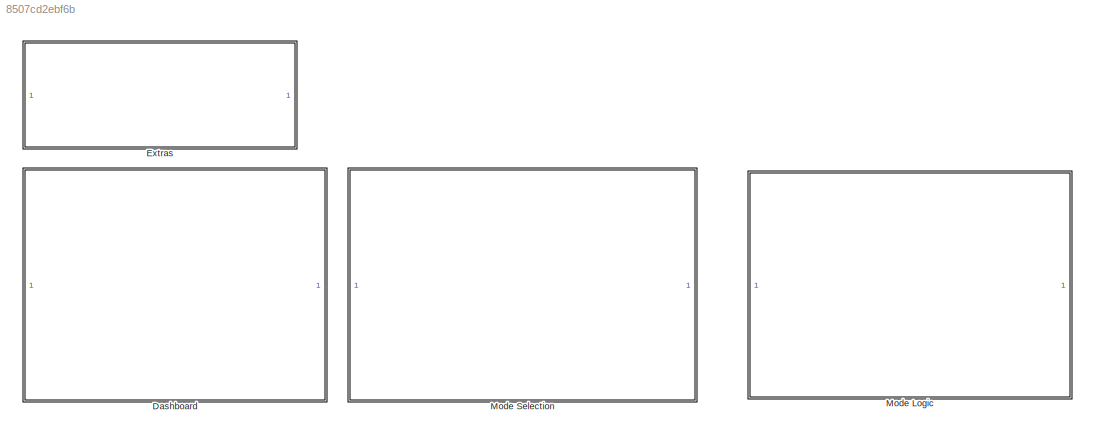
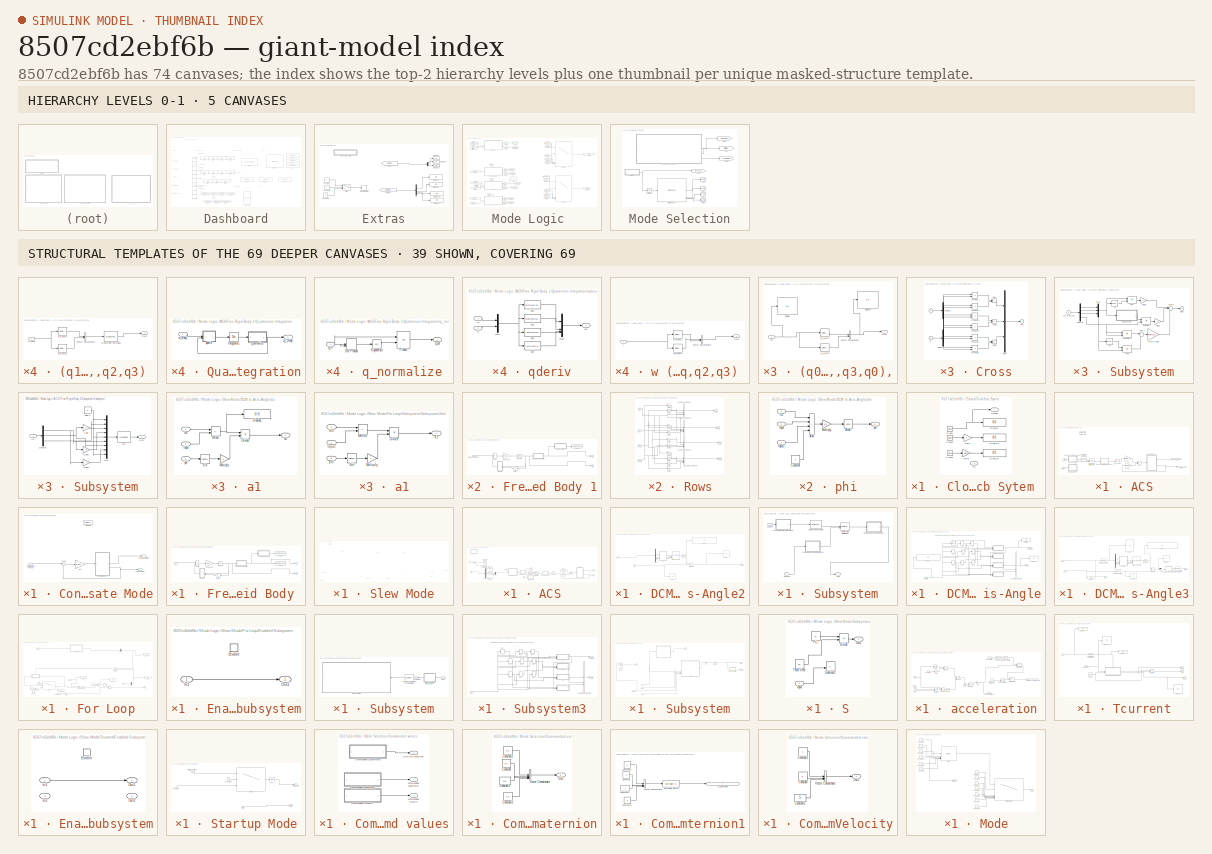
[diagram: thumbnail index - top-2 hierarchy levels (5 canvases) + 39 structural-template representatives of the remaining 69 canvases]
MODEL slx_8507cd2ebf6b
KIND model
CONFIG AbsTol = auto
CONFIG EnableMultiTasking = off
CONFIG FixedStep = auto
CONFIG MaxStep = 1
CONFIG MinStep = auto
CONFIG RelTol = 1e-5
CONFIG SampleTimeConstraint = Unconstrained
CONFIG SolverName = VariableStepAuto
CONFIG StartTime = 0.0
CONFIG StopTime = inf
WORKSPACE source: mxarray member
WORKSPACE A = 10
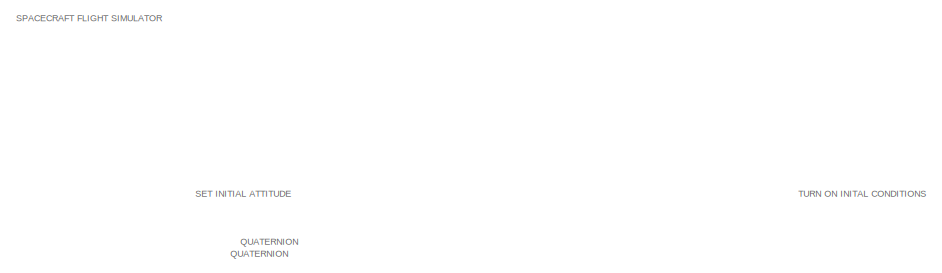
[diagram: Dashboard - part 1/4, top left region]
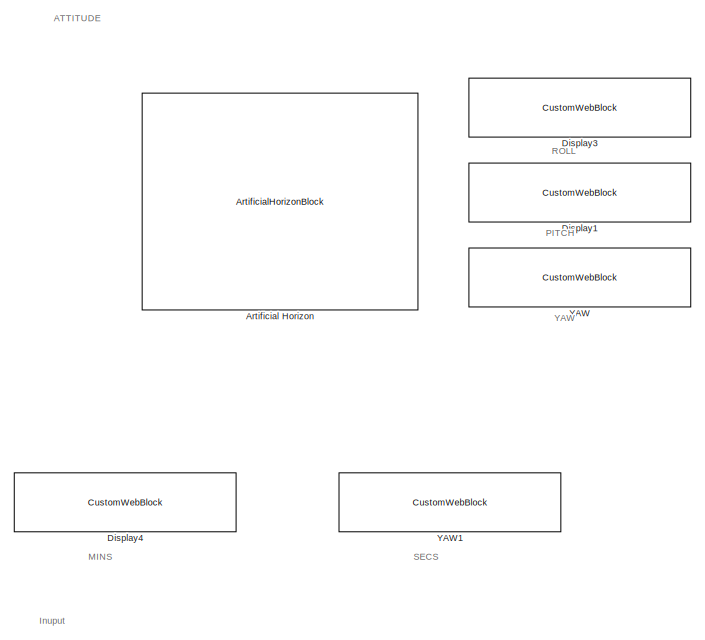
[diagram: Dashboard - part 2/4, middle right region]
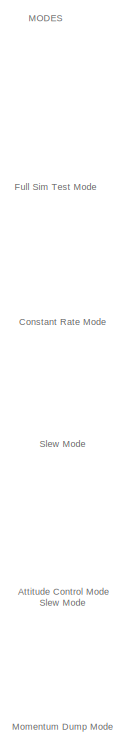
[diagram: Dashboard - part 3/4, middle left region]
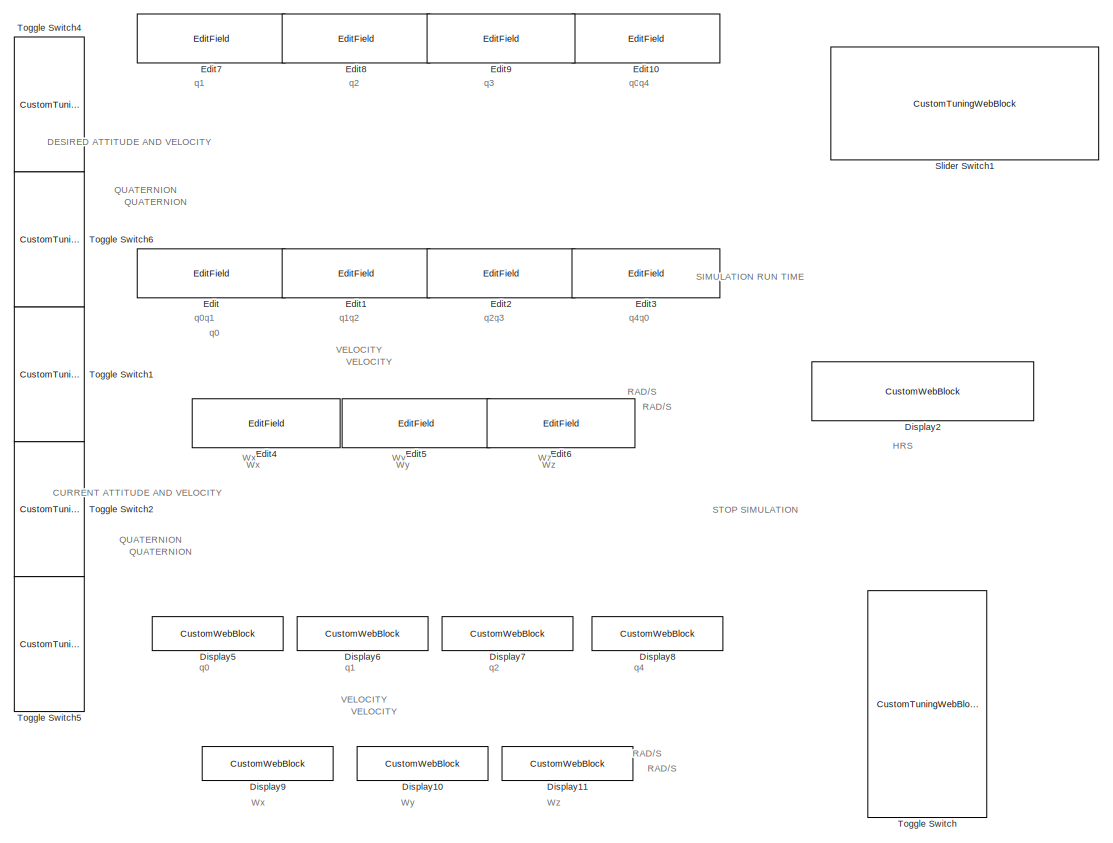
[diagram: Dashboard - part 4/4, central region]
BLOCK [SubSystem] Dashboard
BLOCK [ArtificialHorizonBlock] Dashboard/Artificial Horizon
BLOCK [CustomWebBlock] Dashboard/Display1
  Configuration = {"components":[{"name":"DisplayComponent","settings":{"bold":false,"font":"DSEG7 Classic","fontColor":[255,255,200],"fontSize":"14","format":"short","formatString":"%d","italic":false,"position":[0,0,1,1],"underline":false}},{"name":"BackgroundImageComponent","settings":{"image":{"size":[300,80],"src":"data:image\/svg+xml;base64,PHN2ZyBpZD0iZnJhbWUiIHhtbG5zPSJodHRwOi8vd3d3LnczLm9yZy8yMDAwL3N2ZyIge...<+1637ch>  <repeated x13 — deduplicated; at blocks: Display1, Display10, Display11, Display2, Display3, Display4, Display5, Display6, Display7, Display8, Display9, YAW, YAW1>
  LabelPosition = Hide
  ShowInitialText = on
BLOCK [CustomWebBlock] Dashboard/Display10
  LabelPosition = Hide
  ShowInitialText = on
BLOCK [CustomWebBlock] Dashboard/Display11
  LabelPosition = Hide
  ShowInitialText = on
BLOCK [CustomWebBlock] Dashboard/Display2
  LabelPosition = Hide
  ShowInitialText = on
BLOCK [CustomWebBlock] Dashboard/Display3
  LabelPosition = Hide
  ShowInitialText = on
BLOCK [CustomWebBlock] Dashboard/Display4
  LabelPosition = Hide
  ShowInitialText = on
BLOCK [CustomWebBlock] Dashboard/Display5
  LabelPosition = Hide
  ShowInitialText = on
BLOCK [CustomWebBlock] Dashboard/Display6
  LabelPosition = Hide
  ShowInitialText = on
BLOCK [CustomWebBlock] Dashboard/Display7
  LabelPosition = Hide
  ShowInitialText = on
BLOCK [CustomWebBlock] Dashboard/Display8
  LabelPosition = Hide
  ShowInitialText = on
BLOCK [CustomWebBlock] Dashboard/Display9
  LabelPosition = Hide
  ShowInitialText = on
BLOCK [EditField] Dashboard/Edit
  Alignment = Center
  LabelPosition = Hide
  ShowInitialText = on
BLOCK [EditField] Dashboard/Edit1
  Alignment = Center
  LabelPosition = Hide
  ShowInitialText = on
BLOCK [EditField] Dashboard/Edit10
  Alignment = Center
  LabelPosition = Hide
  ShowInitialText = on
BLOCK [EditField] Dashboard/Edit2
  Alignment = Center
  LabelPosition = Hide
  ShowInitialText = on
BLOCK [EditField] Dashboard/Edit3
  Alignment = Center
  LabelPosition = Hide
  ShowInitialText = on
BLOCK [EditField] Dashboard/Edit4
  Alignment = Center
  LabelPosition = Hide
  ShowInitialText = on
BLOCK [EditField] Dashboard/Edit5
  Alignment = Center
  LabelPosition = Hide
  ShowInitialText = on
BLOCK [EditField] Dashboard/Edit6
  Alignment = Center
  LabelPosition = Hide
  ShowInitialText = on
BLOCK [EditField] Dashboard/Edit7
  Alignment = Center
  LabelPosition = Hide
  ShowInitialText = on
BLOCK [EditField] Dashboard/Edit8
  Alignment = Center
  LabelPosition = Hide
  ShowInitialText = on
BLOCK [EditField] Dashboard/Edit9
  Alignment = Center
  LabelPosition = Hide
  ShowInitialText = on
BLOCK [CustomTuningWebBlock] Dashboard/Slider Switch1
  Configuration = {"components":[{"name":"CustomSwitchStateComponent","settings":{"position":[0,0,1,1],"states":[{"HitRegion":{"position":[0,0,0.5,1]},"Image":{"position":[0,0,1,1],"size":[1,1],"src":"data:image\/svg+xml;base64,PD94bWwgdmVyc2lvbj0iMS4wIiBlbmNvZGluZz0idXRmLTgiPz4NCjwhLS0gR2VuZXJhdG9yOiBBZG9iZSBJbGx1c3RyYXRvciAyNS4yLjEsIFNWRyBFeHBvcnQgUGx1Zy1JbiAuIFNWRyBWZXJzaW9uOiA2LjAwIEJ1aWxkIDApICAtLT4NCjxzdmcgdm...<+12680ch>
  LabelPosition = Hide
  ShowInitialText = on
BLOCK [CustomTuningWebBlock] Dashboard/Toggle Switch
  Configuration = {"components":[{"name":"CustomSwitchStateComponent","settings":{"position":[0,0,1,1],"showAllLabels":1,"states":[{"HitRegion":{"position":[0.5,0,1,0.5]},"Image":{"position":[0,0.24928571428571428,0.5014285714285714,1],"size":[0.5014285714285714,1],"src":"data:image\/svg+xml;base64,PHN2ZyB4bWxucz0iaHR0cDovL3d3dy53My5vcmcvMjAwMC9zdmciIHhtbG5zOnhsaW5rPSJodHRwOi8vd3d3LnczLm9yZy8xOTk5L3hsaW5rIiB2aWV3Qm...<+9166ch>
  LabelPosition = Hide
  ShowInitialText = on
BLOCK [CustomTuningWebBlock] Dashboard/Toggle Switch1
  Configuration = {"components":[{"name":"CustomSwitchStateComponent","settings":{"position":[0,0,1,1],"showAllLabels":1,"states":[{"HitRegion":{"position":[0.5,0,1,0.5]},"Image":{"position":[0,0.24928571428571428,0.5014285714285714,1],"size":[0.5014285714285714,1],"src":"data:image\/svg+xml;base64,PHN2ZyB4bWxucz0iaHR0cDovL3d3dy53My5vcmcvMjAwMC9zdmciIHhtbG5zOnhsaW5rPSJodHRwOi8vd3d3LnczLm9yZy8xOTk5L3hsaW5rIiB2aWV3Qm...<+9064ch>  <repeated x5 — deduplicated; at blocks: Toggle Switch1, Toggle Switch2, Toggle Switch4, Toggle Switch5, Toggle Switch6>
  CustomBackgroundColor = {"color":[0.00784313725490196,0.09411764705882353,0.16862745098039217],"show":true}
  LabelPosition = Hide
  ShowInitialText = on
BLOCK [CustomTuningWebBlock] Dashboard/Toggle Switch2
  CustomBackgroundColor = {"color":[0.00784313725490196,0.09411764705882353,0.16862745098039217],"show":true}
  LabelPosition = Hide
  ShowInitialText = on
BLOCK [CustomTuningWebBlock] Dashboard/Toggle Switch4
  CustomBackgroundColor = {"color":[0.00784313725490196,0.09411764705882353,0.16862745098039217],"show":true}
  LabelPosition = Hide
  ShowInitialText = on
BLOCK [CustomTuningWebBlock] Dashboard/Toggle Switch5
  CustomBackgroundColor = {"color":[0.00784313725490196,0.09411764705882353,0.16862745098039217],"show":true}
  LabelPosition = Hide
  ShowInitialText = on
BLOCK [CustomTuningWebBlock] Dashboard/Toggle Switch6
  CustomBackgroundColor = {"color":[0.00784313725490196,0.09411764705882353,0.16862745098039217],"show":true}
  LabelPosition = Hide
  ShowInitialText = on
BLOCK [CustomWebBlock] Dashboard/YAW
  LabelPosition = Hide
  ShowInitialText = on
BLOCK [CustomWebBlock] Dashboard/YAW1
  LabelPosition = Hide
  ShowInitialText = on
BLOCK [SubSystem] Extras
BLOCK [Demux] Extras/ 2
  DisplayOption = none
BLOCK [Demux] Extras/ 3
  DisplayOption = none
  Outputs = 3
BLOCK [SubSystem] Extras/Clock Sub Sytem 
  PortSchema = {"entries":[{"content":{"sides":[{"content":{},"type":"ConnectorPlacement.EquallySpacedRectSide","uuid":"f28f70a2-a823-40ab-89bd-e0d8a2051dde"},{"content":{"connectorIds":["Out1"],"side":"RIGHT"},"type":"ConnectorPlacement.EquallySpacedRectSide","uuid":"5b03e72b-04aa-4879-9615-45db045b2acc"},{"content":{"connectorIds":["In1"],"side":"TOP"},"type":"ConnectorPlacement.EquallySpacedRectSide","uuid":"...<+223ch>
BLOCK [Clock] Extras/Clock Sub Sytem /Clock
BLOCK [Clock] Extras/Clock Sub Sytem /Clock1
BLOCK [Clock] Extras/Clock Sub Sytem /Clock2
BLOCK [Display] Extras/Clock Sub Sytem /Display
  Decimation = 1
BLOCK [Display] Extras/Clock Sub Sytem /Display1
  Decimation = 1
BLOCK [Display] Extras/Clock Sub Sytem /Display2
  Decimation = 1
BLOCK [Gain] Extras/Clock Sub Sytem /Gain
BLOCK [Gain] Extras/Clock Sub Sytem /Gain1
  Gain = 3600
BLOCK [Inport] Extras/Clock Sub Sytem /In1
BLOCK [Outport] Extras/Clock Sub Sytem /Output
BLOCK [Constant] Extras/Constant
BLOCK [Constant] Extras/Constant1
  Value = 0
BLOCK [Constant] Extras/Constant2
  Value = 0
BLOCK [Display] Extras/Display2
  Decimation = 1
BLOCK [Display] Extras/Display3
  Decimation = 1
BLOCK [Display] Extras/Display4
  Decimation = 1
BLOCK [Display] Extras/Display5
  Decimation = 1
BLOCK [Display] Extras/Display6
  Decimation = 1
BLOCK [Display] Extras/Display7
  Decimation = 1
BLOCK [Display] Extras/Display8
  Decimation = 1
BLOCK [From] Extras/From1
  GotoTag = VCurrent
  TagVisibility = global
BLOCK [From] Extras/From18
  GotoTag = QCurrent
  TagVisibility = global
BLOCK [Stop] Extras/Stop Simulation
BLOCK [Switch] Extras/Switch
  Criteria = u2 > Threshold
  InputSameDT = off
  SaturateOnIntegerOverflow = off
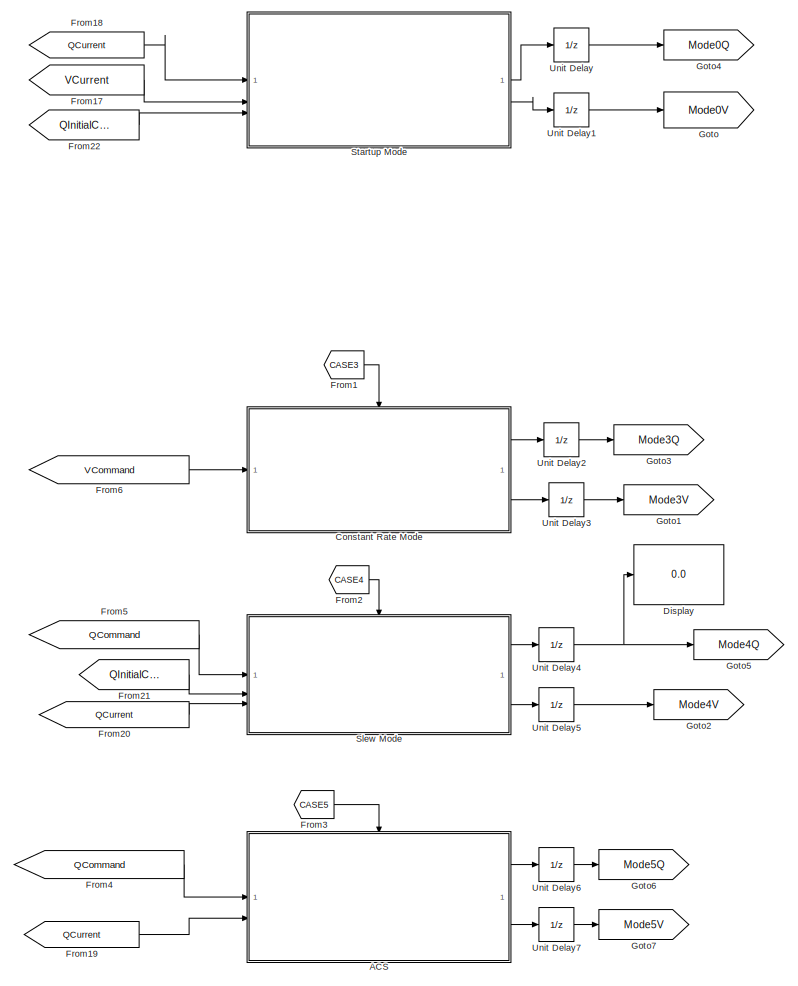
[diagram: Mode Logic  - part 1/2, left side, full height]
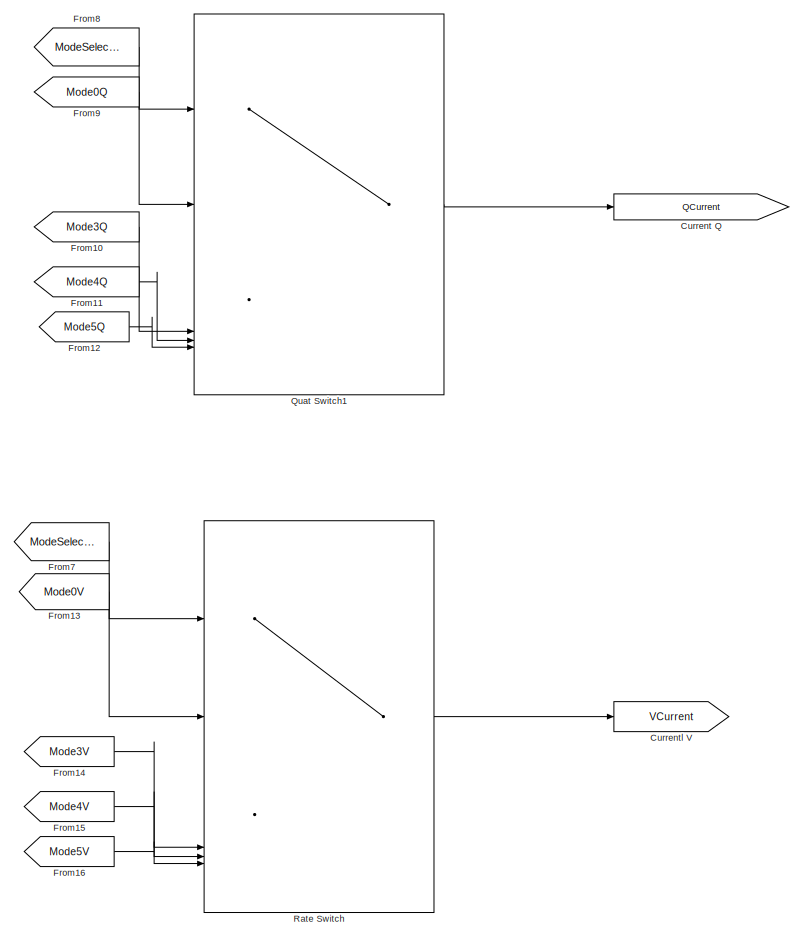
[diagram: Mode Logic  - part 2/2, right side, full height]
BLOCK [SubSystem] Mode Logic 
BLOCK [SubSystem] Mode Logic /ACS
  TreatAsAtomicUnit = on
BLOCK [SubSystem] Mode Logic /ACS/(q0,q1,q2,q3) to (q1,q2,q3,q0),
BLOCK [Display] Mode Logic /ACS/(q0,q1,q2,q3) to (q1,q2,q3,q0),/Display
  Decimation = 1
BLOCK [Display] Mode Logic /ACS/(q0,q1,q2,q3) to (q1,q2,q3,q0),/Display1
  Decimation = 1
BLOCK [Inport] Mode Logic /ACS/(q0,q1,q2,q3) to (q1,q2,q3,q0),/In1
BLOCK [Outport] Mode Logic /ACS/(q0,q1,q2,q3) to (q1,q2,q3,q0),/Out1
BLOCK [Concatenate] Mode Logic /ACS/(q0,q1,q2,q3) to (q1,q2,q3,q0),/Vector Concatenate
BLOCK [Selector] Mode Logic /ACS/(q0,q1,q2,q3) to (q1,q2,q3,q0),/e_q_vect1
  IndexOptions = Index vector (dialog)
  Indices = [2 3 4]
  InputPortWidth = 4
  OutputSizes = 1
BLOCK [Selector] Mode Logic /ACS/(q0,q1,q2,q3) to (q1,q2,q3,q0),/e_q_vect2
  IndexOptions = Index vector (dialog)
  Indices = [1]
  InputPortWidth = 4
  OutputSizes = 1
BLOCK [SubSystem] Mode Logic /ACS/(q1,q2,q3,q0) to (q0,q1,q2,q3) 
BLOCK [Outport] Mode Logic /ACS/(q1,q2,q3,q0) to (q0,q1,q2,q3) /Out1
BLOCK [Inport] Mode Logic /ACS/(q1,q2,q3,q0) to (q0,q1,q2,q3) /Q_input
BLOCK [Reference] Mode Logic /ACS/(q1,q2,q3,q0) to (q0,q1,q2,q3) /Quaternion Normalize  REF=sharedutil/Quaternion
Normalize
  LibrarySourceBlock = aerolibutil/Quaternion\nNormalize
  SourceBlock = sharedutil/Quaternion\nNormalize
  SourceType = Quaternion Normalize
BLOCK [Concatenate] Mode Logic /ACS/(q1,q2,q3,q0) to (q0,q1,q2,q3) /Vector Concatenate
BLOCK [Selector] Mode Logic /ACS/(q1,q2,q3,q0) to (q0,q1,q2,q3) /e_q_vect1
  IndexOptions = Index vector (dialog)
  Indices = [1 2 3]
  InputPortWidth = 4
  OutputSizes = 1
BLOCK [Selector] Mode Logic /ACS/(q1,q2,q3,q0) to (q0,q1,q2,q3) /e_q_vect2
  IndexOptions = Index vector (dialog)
  Indices = [4]
  InputPortWidth = 4
  OutputSizes = 1
BLOCK [ActionPort] Mode Logic /ACS/Action Port
  ActionPortLabel = case [ 5 ]:
BLOCK [Sum] Mode Logic /ACS/Add1
  IconShape = rectangular
  Inputs = --
BLOCK [SubSystem] Mode Logic /ACS/Free Rigid Body 1
BLOCK [SubSystem] Mode Logic /ACS/Free Rigid Body 1/Cross
BLOCK [Inport] Mode Logic /ACS/Free Rigid Body 1/Cross/A
BLOCK [Outport] Mode Logic /ACS/Free Rigid Body 1/Cross/AxB
  InitialOutput = 0
BLOCK [Inport] Mode Logic /ACS/Free Rigid Body 1/Cross/B
  Port = 2
BLOCK [Mux] Mode Logic /ACS/Free Rigid Body 1/Cross/Mux4
  Inputs = 3
BLOCK [Product] Mode Logic /ACS/Free Rigid Body 1/Cross/Product
  InputSameDT = on
  OutDataTypeStr = Inherit: Same as first input
  SaturateOnIntegerOverflow = on
BLOCK [Product] Mode Logic /ACS/Free Rigid Body 1/Cross/Product1
  InputSameDT = on
  OutDataTypeStr = Inherit: Same as first input
  SaturateOnIntegerOverflow = on
BLOCK [Product] Mode Logic /ACS/Free Rigid Body 1/Cross/Product2
  InputSameDT = on
  OutDataTypeStr = Inherit: Same as first input
  SaturateOnIntegerOverflow = on
BLOCK [Product] Mode Logic /ACS/Free Rigid Body 1/Cross/Product3
  InputSameDT = on
  OutDataTypeStr = Inherit: Same as first input
  SaturateOnIntegerOverflow = on
BLOCK [Product] Mode Logic /ACS/Free Rigid Body 1/Cross/Product4
  InputSameDT = on
  OutDataTypeStr = Inherit: Same as first input
  SaturateOnIntegerOverflow = on
BLOCK [Product] Mode Logic /ACS/Free Rigid Body 1/Cross/Product5
  InputSameDT = on
  OutDataTypeStr = Inherit: Same as first input
  SaturateOnIntegerOverflow = on
BLOCK [Sum] Mode Logic /ACS/Free Rigid Body 1/Cross/Sum
  IconShape = rectangular
  InputSameDT = on
  Inputs = +-
  OutDataTypeStr = Inherit: Same as first input
  SaturateOnIntegerOverflow = on
BLOCK [Sum] Mode Logic /ACS/Free Rigid Body 1/Cross/Sum1
  IconShape = rectangular
  InputSameDT = on
  Inputs = +-
  OutDataTypeStr = Inherit: Same as first input
  SaturateOnIntegerOverflow = on
BLOCK [Sum] Mode Logic /ACS/Free Rigid Body 1/Cross/Sum2
  IconShape = rectangular
  InputSameDT = on
  Inputs = +-
  OutDataTypeStr = Inherit: Same as first input
  SaturateOnIntegerOverflow = on
BLOCK [Demux] Mode Logic /ACS/Free Rigid Body 1/Cross/demux2
  DisplayOption = none
  Outputs = 3
BLOCK [Demux] Mode Logic /ACS/Free Rigid Body 1/Cross/demux3
  DisplayOption = none
  Outputs = 3
BLOCK [ToWorkspace] Mode Logic /ACS/Free Rigid Body 1/DCM
  Commented = on
  FixptAsFi = on
  MaxDataPoints = inf
  SampleTime = -1
  SaveFormat = Structure With Time
  VariableName = DCM
BLOCK [Gain] Mode Logic /ACS/Free Rigid Body 1/Inertia
  Gain = I
  Multiplication = Matrix(K*u)
  OutDataTypeStr = Inherit: Same as input
  ParamDataTypeStr = Inherit: Same as input
  SaturateOnIntegerOverflow = on
BLOCK [Gain] Mode Logic /ACS/Free Rigid Body 1/Isc inverse
  Gain = invI
  Multiplication = Matrix(K*u)
  OutDataTypeStr = Inherit: Same as input
  ParamDataTypeStr = Inherit: Same as input
  SaturateOnIntegerOverflow = on
BLOCK [SubSystem] Mode Logic /ACS/Free Rigid Body 1/Quaternion Integration
BLOCK [Integrator] Mode Logic /ACS/Free Rigid Body 1/Quaternion Integration/Integrator1
  InitialCondition = q_init
BLOCK [Outport] Mode Logic /ACS/Free Rigid Body 1/Quaternion Integration/q_I_Body
BLOCK [SubSystem] Mode Logic /ACS/Free Rigid Body 1/Quaternion Integration/q_normalize
BLOCK [DotProduct] Mode Logic /ACS/Free Rigid Body 1/Quaternion Integration/q_normalize/Dot Product
  OutDataTypeStr = Inherit: Inherit via internal rule
BLOCK [Product] Mode Logic /ACS/Free Rigid Body 1/Quaternion Integration/q_normalize/Product
  InputSameDT = on
  Inputs = */
  OutDataTypeStr = Inherit: Same as first input
  SaturateOnIntegerOverflow = on
BLOCK [Sqrt] Mode Logic /ACS/Free Rigid Body 1/Quaternion Integration/q_normalize/SignedSqrt
  IntermediateResultsDataTypeStr = double
BLOCK [Inport] Mode Logic /ACS/Free Rigid Body 1/Quaternion Integration/q_normalize/q_in
  PortDimensions = 4
BLOCK [Outport] Mode Logic /ACS/Free Rigid Body 1/Quaternion Integration/q_normalize/q_out
BLOCK [SubSystem] Mode Logic /ACS/Free Rigid Body 1/Quaternion Integration/qderiv
BLOCK [Mux] Mode Logic /ACS/Free Rigid Body 1/Quaternion Integration/qderiv/Mux
  DisplayOption = bar
  Inputs = 2
BLOCK [Mux] Mode Logic /ACS/Free Rigid Body 1/Quaternion Integration/qderiv/Mux1
  DisplayOption = bar
BLOCK [Inport] Mode Logic /ACS/Free Rigid Body 1/Quaternion Integration/qderiv/q
  Port = 2
BLOCK [Outport] Mode Logic /ACS/Free Rigid Body 1/Quaternion Integration/qderiv/qd
BLOCK [Fcn] Mode Logic /ACS/Free Rigid Body 1/Quaternion Integration/qderiv/qd1
  Expr = (u(7)*u(1)-u(6)*u(2)+u(5)*u(3))/2
BLOCK [Fcn] Mode Logic /ACS/Free Rigid Body 1/Quaternion Integration/qderiv/qd2
  Expr = (u(6)*u(1)+u(7)*u(2)-u(4)*u(3))/2
BLOCK [Fcn] Mode Logic /ACS/Free Rigid Body 1/Quaternion Integration/qderiv/qd3
  Expr = (-u(5)*u(1)+u(4)*u(2)+u(7)*u(3))/2
BLOCK [Fcn] Mode Logic /ACS/Free Rigid Body 1/Quaternion Integration/qderiv/qd4
  Expr = (-u(4)*u(1)-u(5)*u(2)-u(6)*u(3))/2
BLOCK [Inport] Mode Logic /ACS/Free Rigid Body 1/Quaternion Integration/qderiv/w
BLOCK [Inport] Mode Logic /ACS/Free Rigid Body 1/Quaternion Integration/w_Body
BLOCK [SubSystem] Mode Logic /ACS/Free Rigid Body 1/Subsystem
  Commented = on
BLOCK [Outport] Mode Logic /ACS/Free Rigid Body 1/Subsystem/DCM
  InitialOutput = 0
BLOCK [Demux] Mode Logic /ACS/Free Rigid Body 1/Subsystem/Demux
  DisplayOption = none
BLOCK [Gain] Mode Logic /ACS/Free Rigid Body 1/Subsystem/Gain1
  Gain = 2
  OutDataTypeStr = Inherit: Same as input
  ParamDataTypeStr = Inherit: Same as input
  SaturateOnIntegerOverflow = on
BLOCK [Gain] Mode Logic /ACS/Free Rigid Body 1/Subsystem/Gain2
  Gain = 2
  OutDataTypeStr = Inherit: Same as input
  ParamDataTypeStr = Inherit: Same as input
  SaturateOnIntegerOverflow = on
BLOCK [Gain] Mode Logic /ACS/Free Rigid Body 1/Subsystem/Matrix Gain
  Gain = eye(3,3)
  OutDataTypeStr = Inherit: Same as input
  ParamDataTypeStr = Inherit: Same as input
  SaturateOnIntegerOverflow = on
BLOCK [Mux] Mode Logic /ACS/Free Rigid Body 1/Subsystem/Mux
  DisplayOption = bar
  Inputs = 3
BLOCK [Product] Mode Logic /ACS/Free Rigid Body 1/Subsystem/Product
  InputSameDT = on
  OutDataTypeStr = Inherit: Same as first input
  SaturateOnIntegerOverflow = on
BLOCK [Product] Mode Logic /ACS/Free Rigid Body 1/Subsystem/Product1
  InputSameDT = on
  OutDataTypeStr = Inherit: Same as first input
  SaturateOnIntegerOverflow = on
BLOCK [SubSystem] Mode Logic /ACS/Free Rigid Body 1/Subsystem/Subsystem
BLOCK [Reshape] Mode Logic /ACS/Free Rigid Body 1/Subsystem/Subsystem/3x3
  OutputDimensionality = Customize
  OutputDimensions = [3,3]
BLOCK [Demux] Mode Logic /ACS/Free Rigid Body 1/Subsystem/Subsystem/Demux
  DisplayOption = none
  Outputs = 3
BLOCK [Gain] Mode Logic /ACS/Free Rigid Body 1/Subsystem/Subsystem/Gain
  Gain = -1
  OutDataTypeStr = Inherit: Same as input
  ParamDataTypeStr = Inherit: Same as input
  SaturateOnIntegerOverflow = on
BLOCK [Gain] Mode Logic /ACS/Free Rigid Body 1/Subsystem/Subsystem/Gain1
  Gain = -1
  OutDataTypeStr = Inherit: Same as input
  ParamDataTypeStr = Inherit: Same as input
  SaturateOnIntegerOverflow = on
BLOCK [Gain] Mode Logic /ACS/Free Rigid Body 1/Subsystem/Subsystem/Gain2
  Gain = -1
  OutDataTypeStr = Inherit: Same as input
  ParamDataTypeStr = Inherit: Same as input
  SaturateOnIntegerOverflow = on
BLOCK [Inport] Mode Logic /ACS/Free Rigid Body 1/Subsystem/Subsystem/In1
BLOCK [Mux] Mode Logic /ACS/Free Rigid Body 1/Subsystem/Subsystem/Mux
  DisplayOption = bar
  Inputs = 9
BLOCK [Outport] Mode Logic /ACS/Free Rigid Body 1/Subsystem/Subsystem/Out1
BLOCK [Constant] Mode Logic /ACS/Free Rigid Body 1/Subsystem/Subsystem/diag 0 
  Value = 0
BLOCK [Sum] Mode Logic /ACS/Free Rigid Body 1/Subsystem/Sum1
  InputSameDT = on
  Inputs = |+-
  OutDataTypeStr = Inherit: Same as first input
  SaturateOnIntegerOverflow = on
BLOCK [Sum] Mode Logic /ACS/Free Rigid Body 1/Subsystem/Sum8
  InputSameDT = on
  Inputs = |+-+
  OutDataTypeStr = Inherit: Same as first input
  SaturateOnIntegerOverflow = on
BLOCK [Math] Mode Logic /ACS/Free Rigid Body 1/Subsystem/T1
  Operator = transpose
  SignedPower = on
BLOCK [Math] Mode Logic /ACS/Free Rigid Body 1/Subsystem/T2
  Operator = transpose
  SignedPower = on
BLOCK [Inport] Mode Logic /ACS/Free Rigid Body 1/Subsystem/q1 q2 q3 q4
BLOCK [Product] Mode Logic /ACS/Free Rigid Body 1/Subsystem/qTq
  InputSameDT = on
  Multiplication = Matrix(*)
  OutDataTypeStr = Inherit: Same as first input
  SaturateOnIntegerOverflow = on
BLOCK [Product] Mode Logic /ACS/Free Rigid Body 1/Subsystem/qqT
  InputSameDT = on
  Multiplication = Matrix(*)
  OutDataTypeStr = Inherit: Same as first input
  SaturateOnIntegerOverflow = on
BLOCK [Sum] Mode Logic /ACS/Free Rigid Body 1/Sum
  IconShape = rectangular
  InputSameDT = on
  Inputs = |+-
  OutDataTypeStr = Inherit: Same as first input
  SaturateOnIntegerOverflow = on
BLOCK [Outport] Mode Logic /ACS/Free Rigid Body 1/q
BLOCK [Inport] Mode Logic /ACS/Free Rigid Body 1/torque command
BLOCK [Outport] Mode Logic /ACS/Free Rigid Body 1/w
  Port = 2
BLOCK [Integrator] Mode Logic /ACS/Free Rigid Body 1/wdot -> w
  InitialCondition = wbn_init
BLOCK [Gain] Mode Logic /ACS/Kd1
  Gain = 2 * zet * wn * I
  Multiplication = Matrix(K*u)
  OutDataTypeStr = Inherit: Same as input
  ParamDataTypeStr = Inherit: Same as input
  SaturateOnIntegerOverflow = on
BLOCK [Gain] Mode Logic /ACS/Kp1
  Gain = 2 * wn^2 * I
  Multiplication = Matrix(K*u)
  OutDataTypeStr = Inherit: Same as input
  ParamDataTypeStr = Inherit: Same as input
  SaturateOnIntegerOverflow = on
BLOCK [Inport] Mode Logic /ACS/Q_input
BLOCK [Inport] Mode Logic /ACS/Qcurrent
  Port = 2
BLOCK [Reference] Mode Logic /ACS/Quaternion Inverse1  REF=aerolibutil/Quaternion
Inverse
  SourceBlock = aerolibutil/Quaternion\nInverse
  SourceType = Quaternion Inverse
BLOCK [Reference] Mode Logic /ACS/Quaternion Multiplication  REF=aerolibutil/Quaternion
Multiplication
  SourceBlock = aerolibutil/Quaternion\nMultiplication
  SourceType = Quaternion Multiplication
BLOCK [Selector] Mode Logic /ACS/e_q_vect1
  IndexOptions = Index vector (dialog)
  Indices = [1 2 3]
  InputPortWidth = 4
  OutputSizes = 1
BLOCK [Outport] Mode Logic /ACS/qua
BLOCK [Outport] Mode Logic /ACS/rate
  Port = 2
BLOCK [SubSystem] Mode Logic /ACS/w (q1,q2,q3,q0) to (q0,q1,q2,q3) 
  PortSchema = {"entries":[{"content":{"sides":[{"content":{"connectorIds":["Out1"]},"type":"ConnectorPlacement.EquallySpacedRectSide","uuid":"97b477ad-5663-4010-b344-d27b8ec095be"},{"content":{"connectorIds":["In1"],"side":"RIGHT"},"type":"ConnectorPlacement.EquallySpacedRectSide","uuid":"41fe4029-0263-4427-bdfc-3c26258b8a65"},{"content":{"side":"TOP"},"type":"ConnectorPlacement.EquallySpacedRectSide","uuid":"9...<+222ch>  <repeated x3 — deduplicated; at blocks: w (q1,q2,q3,q0) to (q0,q1,q2,q3)>
BLOCK [Outport] Mode Logic /ACS/w (q1,q2,q3,q0) to (q0,q1,q2,q3) /Out1
BLOCK [Concatenate] Mode Logic /ACS/w (q1,q2,q3,q0) to (q0,q1,q2,q3) /Vector Concatenate
BLOCK [Selector] Mode Logic /ACS/w (q1,q2,q3,q0) to (q0,q1,q2,q3) /e_q_vect1
  IndexOptions = Index vector (dialog)
  Indices = [1 2 3]
  InputPortWidth = 4
  OutputSizes = 1
BLOCK [Selector] Mode Logic /ACS/w (q1,q2,q3,q0) to (q0,q1,q2,q3) /e_q_vect2
  IndexOptions = Index vector (dialog)
  Indices = [4]
  InputPortWidth = 4
  OutputSizes = 1
BLOCK [Inport] Mode Logic /ACS/w (q1,q2,q3,q0) to (q0,q1,q2,q3) /y
BLOCK [SubSystem] Mode Logic /Constant Rate Mode
  TreatAsAtomicUnit = on
BLOCK [ActionPort] Mode Logic /Constant Rate Mode/Action Port
  ActionPortLabel = case [ 3 ]:
BLOCK [SubSystem] Mode Logic /Constant Rate Mode/Free Rigid Body 
BLOCK [SubSystem] Mode Logic /Constant Rate Mode/Free Rigid Body /Cross
BLOCK [Inport] Mode Logic /Constant Rate Mode/Free Rigid Body /Cross/A
BLOCK [Outport] Mode Logic /Constant Rate Mode/Free Rigid Body /Cross/AxB
  InitialOutput = 0
BLOCK [Inport] Mode Logic /Constant Rate Mode/Free Rigid Body /Cross/B
  Port = 2
BLOCK [Mux] Mode Logic /Constant Rate Mode/Free Rigid Body /Cross/Mux4
  Inputs = 3
BLOCK [Product] Mode Logic /Constant Rate Mode/Free Rigid Body /Cross/Product
  InputSameDT = on
  OutDataTypeStr = Inherit: Same as first input
  SaturateOnIntegerOverflow = on
BLOCK [Product] Mode Logic /Constant Rate Mode/Free Rigid Body /Cross/Product1
  InputSameDT = on
  OutDataTypeStr = Inherit: Same as first input
  SaturateOnIntegerOverflow = on
BLOCK [Product] Mode Logic /Constant Rate Mode/Free Rigid Body /Cross/Product2
  InputSameDT = on
  OutDataTypeStr = Inherit: Same as first input
  SaturateOnIntegerOverflow = on
BLOCK [Product] Mode Logic /Constant Rate Mode/Free Rigid Body /Cross/Product3
  InputSameDT = on
  OutDataTypeStr = Inherit: Same as first input
  SaturateOnIntegerOverflow = on
BLOCK [Product] Mode Logic /Constant Rate Mode/Free Rigid Body /Cross/Product4
  InputSameDT = on
  OutDataTypeStr = Inherit: Same as first input
  SaturateOnIntegerOverflow = on
BLOCK [Product] Mode Logic /Constant Rate Mode/Free Rigid Body /Cross/Product5
  InputSameDT = on
  OutDataTypeStr = Inherit: Same as first input
  SaturateOnIntegerOverflow = on
BLOCK [Sum] Mode Logic /Constant Rate Mode/Free Rigid Body /Cross/Sum
  IconShape = rectangular
  InputSameDT = on
  Inputs = +-
  OutDataTypeStr = Inherit: Same as first input
  SaturateOnIntegerOverflow = on
BLOCK [Sum] Mode Logic /Constant Rate Mode/Free Rigid Body /Cross/Sum1
  IconShape = rectangular
  InputSameDT = on
  Inputs = +-
  OutDataTypeStr = Inherit: Same as first input
  SaturateOnIntegerOverflow = on
BLOCK [Sum] Mode Logic /Constant Rate Mode/Free Rigid Body /Cross/Sum2
  IconShape = rectangular
  InputSameDT = on
  Inputs = +-
  OutDataTypeStr = Inherit: Same as first input
  SaturateOnIntegerOverflow = on
BLOCK [Demux] Mode Logic /Constant Rate Mode/Free Rigid Body /Cross/demux2
  DisplayOption = none
  Outputs = 3
BLOCK [Demux] Mode Logic /Constant Rate Mode/Free Rigid Body /Cross/demux3
  DisplayOption = none
  Outputs = 3
BLOCK [ToWorkspace] Mode Logic /Constant Rate Mode/Free Rigid Body /DCM
  FixptAsFi = on
  MaxDataPoints = inf
  SampleTime = -1
  SaveFormat = Structure With Time
  VariableName = DCM
BLOCK [Inport] Mode Logic /Constant Rate Mode/Free Rigid Body /In2
BLOCK [Gain] Mode Logic /Constant Rate Mode/Free Rigid Body /Inertia
  Gain = I
  Multiplication = Matrix(K*u)
  OutDataTypeStr = Inherit: Same as input
  ParamDataTypeStr = Inherit: Same as input
  SaturateOnIntegerOverflow = on
BLOCK [Gain] Mode Logic /Constant Rate Mode/Free Rigid Body /Isc inverse
  Gain = invI
  Multiplication = Matrix(K*u)
  OutDataTypeStr = Inherit: Same as input
  ParamDataTypeStr = Inherit: Same as input
  SaturateOnIntegerOverflow = on
BLOCK [SubSystem] Mode Logic /Constant Rate Mode/Free Rigid Body /Quaternion Integration
BLOCK [Integrator] Mode Logic /Constant Rate Mode/Free Rigid Body /Quaternion Integration/Integrator1
  InitialCondition = q_init
BLOCK [Outport] Mode Logic /Constant Rate Mode/Free Rigid Body /Quaternion Integration/q_I_Body
BLOCK [SubSystem] Mode Logic /Constant Rate Mode/Free Rigid Body /Quaternion Integration/q_normalize
BLOCK [DotProduct] Mode Logic /Constant Rate Mode/Free Rigid Body /Quaternion Integration/q_normalize/Dot Product
  OutDataTypeStr = Inherit: Inherit via internal rule
BLOCK [Product] Mode Logic /Constant Rate Mode/Free Rigid Body /Quaternion Integration/q_normalize/Product
  InputSameDT = on
  Inputs = */
  OutDataTypeStr = Inherit: Same as first input
  SaturateOnIntegerOverflow = on
BLOCK [Sqrt] Mode Logic /Constant Rate Mode/Free Rigid Body /Quaternion Integration/q_normalize/SignedSqrt
  IntermediateResultsDataTypeStr = double
BLOCK [Inport] Mode Logic /Constant Rate Mode/Free Rigid Body /Quaternion Integration/q_normalize/q_in
  PortDimensions = 4
BLOCK [Outport] Mode Logic /Constant Rate Mode/Free Rigid Body /Quaternion Integration/q_normalize/q_out
BLOCK [SubSystem] Mode Logic /Constant Rate Mode/Free Rigid Body /Quaternion Integration/qderiv
BLOCK [Mux] Mode Logic /Constant Rate Mode/Free Rigid Body /Quaternion Integration/qderiv/Mux
  DisplayOption = bar
  Inputs = 2
BLOCK [Mux] Mode Logic /Constant Rate Mode/Free Rigid Body /Quaternion Integration/qderiv/Mux1
  DisplayOption = bar
BLOCK [Inport] Mode Logic /Constant Rate Mode/Free Rigid Body /Quaternion Integration/qderiv/q
  Port = 2
BLOCK [Outport] Mode Logic /Constant Rate Mode/Free Rigid Body /Quaternion Integration/qderiv/qd
BLOCK [Fcn] Mode Logic /Constant Rate Mode/Free Rigid Body /Quaternion Integration/qderiv/qd1
  Expr = (u(7)*u(1)-u(6)*u(2)+u(5)*u(3))/2
BLOCK [Fcn] Mode Logic /Constant Rate Mode/Free Rigid Body /Quaternion Integration/qderiv/qd2
  Expr = (u(6)*u(1)+u(7)*u(2)-u(4)*u(3))/2
BLOCK [Fcn] Mode Logic /Constant Rate Mode/Free Rigid Body /Quaternion Integration/qderiv/qd3
  Expr = (-u(5)*u(1)+u(4)*u(2)+u(7)*u(3))/2
BLOCK [Fcn] Mode Logic /Constant Rate Mode/Free Rigid Body /Quaternion Integration/qderiv/qd4
  Expr = (-u(4)*u(1)-u(5)*u(2)-u(6)*u(3))/2
BLOCK [Inport] Mode Logic /Constant Rate Mode/Free Rigid Body /Quaternion Integration/qderiv/w
BLOCK [Inport] Mode Logic /Constant Rate Mode/Free Rigid Body /Quaternion Integration/w_Body
BLOCK [SubSystem] Mode Logic /Constant Rate Mode/Free Rigid Body /Subsystem
BLOCK [Outport] Mode Logic /Constant Rate Mode/Free Rigid Body /Subsystem/DCM
  InitialOutput = 0
BLOCK [Demux] Mode Logic /Constant Rate Mode/Free Rigid Body /Subsystem/Demux
  DisplayOption = none
BLOCK [Gain] Mode Logic /Constant Rate Mode/Free Rigid Body /Subsystem/Gain1
  Gain = 2
  OutDataTypeStr = Inherit: Same as input
  ParamDataTypeStr = Inherit: Same as input
  SaturateOnIntegerOverflow = on
BLOCK [Gain] Mode Logic /Constant Rate Mode/Free Rigid Body /Subsystem/Gain2
  Gain = 2
  OutDataTypeStr = Inherit: Same as input
  ParamDataTypeStr = Inherit: Same as input
  SaturateOnIntegerOverflow = on
BLOCK [Gain] Mode Logic /Constant Rate Mode/Free Rigid Body /Subsystem/Matrix Gain
  Gain = eye(3,3)
  OutDataTypeStr = Inherit: Same as input
  ParamDataTypeStr = Inherit: Same as input
  SaturateOnIntegerOverflow = on
BLOCK [Mux] Mode Logic /Constant Rate Mode/Free Rigid Body /Subsystem/Mux
  DisplayOption = bar
  Inputs = 3
BLOCK [Product] Mode Logic /Constant Rate Mode/Free Rigid Body /Subsystem/Product
  InputSameDT = on
  OutDataTypeStr = Inherit: Same as first input
  SaturateOnIntegerOverflow = on
BLOCK [Product] Mode Logic /Constant Rate Mode/Free Rigid Body /Subsystem/Product1
  InputSameDT = on
  OutDataTypeStr = Inherit: Same as first input
  SaturateOnIntegerOverflow = on
BLOCK [SubSystem] Mode Logic /Constant Rate Mode/Free Rigid Body /Subsystem/Subsystem
BLOCK [Reshape] Mode Logic /Constant Rate Mode/Free Rigid Body /Subsystem/Subsystem/3x3
  OutputDimensionality = Customize
  OutputDimensions = [3,3]
BLOCK [Demux] Mode Logic /Constant Rate Mode/Free Rigid Body /Subsystem/Subsystem/Demux
  DisplayOption = none
  Outputs = 3
BLOCK [Gain] Mode Logic /Constant Rate Mode/Free Rigid Body /Subsystem/Subsystem/Gain
  Gain = -1
  OutDataTypeStr = Inherit: Same as input
  ParamDataTypeStr = Inherit: Same as input
  SaturateOnIntegerOverflow = on
BLOCK [Gain] Mode Logic /Constant Rate Mode/Free Rigid Body /Subsystem/Subsystem/Gain1
  Gain = -1
  OutDataTypeStr = Inherit: Same as input
  ParamDataTypeStr = Inherit: Same as input
  SaturateOnIntegerOverflow = on
BLOCK [Gain] Mode Logic /Constant Rate Mode/Free Rigid Body /Subsystem/Subsystem/Gain2
  Gain = -1
  OutDataTypeStr = Inherit: Same as input
  ParamDataTypeStr = Inherit: Same as input
  SaturateOnIntegerOverflow = on
BLOCK [Inport] Mode Logic /Constant Rate Mode/Free Rigid Body /Subsystem/Subsystem/In1
BLOCK [Mux] Mode Logic /Constant Rate Mode/Free Rigid Body /Subsystem/Subsystem/Mux
  DisplayOption = bar
  Inputs = 9
BLOCK [Outport] Mode Logic /Constant Rate Mode/Free Rigid Body /Subsystem/Subsystem/Out1
BLOCK [Constant] Mode Logic /Constant Rate Mode/Free Rigid Body /Subsystem/Subsystem/diag 0 
  Value = 0
BLOCK [Sum] Mode Logic /Constant Rate Mode/Free Rigid Body /Subsystem/Sum1
  InputSameDT = on
  Inputs = |+-
  OutDataTypeStr = Inherit: Same as first input
  SaturateOnIntegerOverflow = on
BLOCK [Sum] Mode Logic /Constant Rate Mode/Free Rigid Body /Subsystem/Sum8
  InputSameDT = on
  Inputs = |+-+
  OutDataTypeStr = Inherit: Same as first input
  SaturateOnIntegerOverflow = on
BLOCK [Math] Mode Logic /Constant Rate Mode/Free Rigid Body /Subsystem/T1
  Operator = transpose
  SignedPower = on
BLOCK [Math] Mode Logic /Constant Rate Mode/Free Rigid Body /Subsystem/T2
  Operator = transpose
  SignedPower = on
BLOCK [Inport] Mode Logic /Constant Rate Mode/Free Rigid Body /Subsystem/q1 q2 q3 q4
BLOCK [Product] Mode Logic /Constant Rate Mode/Free Rigid Body /Subsystem/qTq
  InputSameDT = on
  Multiplication = Matrix(*)
  OutDataTypeStr = Inherit: Same as first input
  SaturateOnIntegerOverflow = on
BLOCK [Product] Mode Logic /Constant Rate Mode/Free Rigid Body /Subsystem/qqT
  InputSameDT = on
  Multiplication = Matrix(*)
  OutDataTypeStr = Inherit: Same as first input
  SaturateOnIntegerOverflow = on
BLOCK [Sum] Mode Logic /Constant Rate Mode/Free Rigid Body /Sum
  IconShape = rectangular
  InputSameDT = on
  Inputs = |+-
  OutDataTypeStr = Inherit: Same as first input
  SaturateOnIntegerOverflow = on
BLOCK [Outport] Mode Logic /Constant Rate Mode/Free Rigid Body /q
BLOCK [ToWorkspace] Mode Logic /Constant Rate Mode/Free Rigid Body /quat
  FixptAsFi = on
  MaxDataPoints = inf
  SampleTime = -1
  SaveFormat = Structure With Time
  VariableName = quat
BLOCK [Outport] Mode Logic /Constant Rate Mode/Free Rigid Body /w
  Port = 2
BLOCK [Integrator] Mode Logic /Constant Rate Mode/Free Rigid Body /wdot -> w
  InitialCondition = wbn_init
BLOCK [Gain] Mode Logic /Constant Rate Mode/Kd1
  Gain = 2 * zet * wn * I
  Multiplication = Matrix(K*u)
  OutDataTypeStr = Inherit: Same as input
  ParamDataTypeStr = Inherit: Same as input
  SaturateOnIntegerOverflow = on
BLOCK [Sum] Mode Logic /Constant Rate Mode/Sum1
  Inputs = |+-
BLOCK [Inport] Mode Logic /Constant Rate Mode/commanded Velocity
BLOCK [Outport] Mode Logic /Constant Rate Mode/output quaternion
BLOCK [Outport] Mode Logic /Constant Rate Mode/output velocity 
  Port = 2
BLOCK [Goto] Mode Logic /Current Q
  GotoTag = QCurrent
  TagVisibility = global
BLOCK [Goto] Mode Logic /Currentl V
  GotoTag = VCurrent
  TagVisibility = global
BLOCK [Display] Mode Logic /Display
  Decimation = 1
BLOCK [From] Mode Logic /From1
  GotoTag = CASE3
  TagVisibility = global
BLOCK [From] Mode Logic /From10
  GotoTag = Mode3Q
BLOCK [From] Mode Logic /From11
  GotoTag = Mode4Q
BLOCK [From] Mode Logic /From12
  GotoTag = Mode5Q
BLOCK [From] Mode Logic /From13
  GotoTag = Mode0V
BLOCK [From] Mode Logic /From14
  GotoTag = Mode3V
BLOCK [From] Mode Logic /From15
  GotoTag = Mode4V
BLOCK [From] Mode Logic /From16
  GotoTag = Mode5V
BLOCK [From] Mode Logic /From17
  GotoTag = VCurrent
  TagVisibility = global
BLOCK [From] Mode Logic /From18
  GotoTag = QCurrent
  TagVisibility = global
BLOCK [From] Mode Logic /From19
  GotoTag = QCurrent
  TagVisibility = global
BLOCK [From] Mode Logic /From2
  GotoTag = CASE4
  TagVisibility = global
BLOCK [From] Mode Logic /From20
  GotoTag = QCurrent
  TagVisibility = global
BLOCK [From] Mode Logic /From21
  GotoTag = QInitialConditions
  TagVisibility = global
BLOCK [From] Mode Logic /From22
  GotoTag = QInitialConditions
  TagVisibility = global
BLOCK [From] Mode Logic /From3
  GotoTag = CASE5
  TagVisibility = global
BLOCK [From] Mode Logic /From4
  GotoTag = QCommand
  TagVisibility = global
BLOCK [From] Mode Logic /From5
  GotoTag = QCommand
  TagVisibility = global
BLOCK [From] Mode Logic /From6
  GotoTag = VCommand
  TagVisibility = global
BLOCK [From] Mode Logic /From7
  GotoTag = ModeSelector
  TagVisibility = global
BLOCK [From] Mode Logic /From8
  GotoTag = ModeSelector
  TagVisibility = global
BLOCK [From] Mode Logic /From9
  GotoTag = Mode0Q
BLOCK [Goto] Mode Logic /Goto
  GotoTag = Mode0V
BLOCK [Goto] Mode Logic /Goto1
  GotoTag = Mode3V
BLOCK [Goto] Mode Logic /Goto2
  GotoTag = Mode4V
BLOCK [Goto] Mode Logic /Goto3
  GotoTag = Mode3Q
BLOCK [Goto] Mode Logic /Goto4
  GotoTag = Mode0Q
BLOCK [Goto] Mode Logic /Goto5
  GotoTag = Mode4Q
BLOCK [Goto] Mode Logic /Goto6
  GotoTag = Mode5Q
BLOCK [Goto] Mode Logic /Goto7
  GotoTag = Mode5V
BLOCK [MultiPortSwitch] Mode Logic /Quat Switch1
  DataPortIndices = {0,1,2,3,4,5,6}
  DataPortOrder = Specify indices
  InputSameDT = off
  Inputs = 6
  SaturateOnIntegerOverflow = off
BLOCK [MultiPortSwitch] Mode Logic /Rate Switch
  DataPortIndices = {0,1,2,3,4,5,6}
  DataPortOrder = Specify indices
  InputSameDT = off
  Inputs = 6
  SaturateOnIntegerOverflow = off
BLOCK [SubSystem] Mode Logic /Slew Mode
  TreatAsAtomicUnit = on
BLOCK [SubSystem] Mode Logic /Slew Mode/ACS
  PortSchema = {"entries":[{"content":{"sides":[{"content":{"connectorIds":["Out3","In1","In2"]},"type":"ConnectorPlacement.EquallySpacedRectSide","uuid":"9f52ffb6-d3dd-46bc-9b08-6a9b1eb08f5a"},{"content":{"connectorIds":["Out1","In4","Out2"],"side":"RIGHT"},"type":"ConnectorPlacement.EquallySpacedRectSide","uuid":"c36a10f6-7735-4632-825f-f5f96e6ba4a0"},{"content":{"connectorIds":["In3"],"side":"TOP"},"type":"Co...<+271ch>
BLOCK [SubSystem] Mode Logic /Slew Mode/ACS/(q0,q1,q2,q3) to (q1,q2,q3,q0),
BLOCK [Display] Mode Logic /Slew Mode/ACS/(q0,q1,q2,q3) to (q1,q2,q3,q0),/Display
  Decimation = 1
BLOCK [Display] Mode Logic /Slew Mode/ACS/(q0,q1,q2,q3) to (q1,q2,q3,q0),/Display1
  Decimation = 1
BLOCK [Inport] Mode Logic /Slew Mode/ACS/(q0,q1,q2,q3) to (q1,q2,q3,q0),/In1
BLOCK [Outport] Mode Logic /Slew Mode/ACS/(q0,q1,q2,q3) to (q1,q2,q3,q0),/Out1
BLOCK [Concatenate] Mode Logic /Slew Mode/ACS/(q0,q1,q2,q3) to (q1,q2,q3,q0),/Vector Concatenate
BLOCK [Selector] Mode Logic /Slew Mode/ACS/(q0,q1,q2,q3) to (q1,q2,q3,q0),/e_q_vect1
  IndexOptions = Index vector (dialog)
  Indices = [2 3 4]
  InputPortWidth = 4
  OutputSizes = 1
BLOCK [Selector] Mode Logic /Slew Mode/ACS/(q0,q1,q2,q3) to (q1,q2,q3,q0),/e_q_vect2
  IndexOptions = Index vector (dialog)
  Indices = [1]
  InputPortWidth = 4
  OutputSizes = 1
BLOCK [SubSystem] Mode Logic /Slew Mode/ACS/(q1,q2,q3,q0) to (q0,q1,q2,q3) 
BLOCK [Outport] Mode Logic /Slew Mode/ACS/(q1,q2,q3,q0) to (q0,q1,q2,q3) /Output
BLOCK [Inport] Mode Logic /Slew Mode/ACS/(q1,q2,q3,q0) to (q0,q1,q2,q3) /Q_input
BLOCK [Reference] Mode Logic /Slew Mode/ACS/(q1,q2,q3,q0) to (q0,q1,q2,q3) /Quaternion Normalize  REF=sharedutil/Quaternion
Normalize
  LibrarySourceBlock = aerolibutil/Quaternion\nNormalize
  SourceBlock = sharedutil/Quaternion\nNormalize
  SourceType = Quaternion Normalize
BLOCK [Concatenate] Mode Logic /Slew Mode/ACS/(q1,q2,q3,q0) to (q0,q1,q2,q3) /Vector Concatenate
BLOCK [Selector] Mode Logic /Slew Mode/ACS/(q1,q2,q3,q0) to (q0,q1,q2,q3) /e_q_vect1
  IndexOptions = Index vector (dialog)
  Indices = [1 2 3]
  InputPortWidth = 4
  OutputSizes = 1
BLOCK [Selector] Mode Logic /Slew Mode/ACS/(q1,q2,q3,q0) to (q0,q1,q2,q3) /e_q_vect2
  IndexOptions = Index vector (dialog)
  Indices = [4]
  InputPortWidth = 4
  OutputSizes = 1
BLOCK [Sum] Mode Logic /Slew Mode/ACS/Add1
  IconShape = rectangular
  Inputs = --
BLOCK [SubSystem] Mode Logic /Slew Mode/ACS/DCM to Axis-Angle2
BLOCK [Demux] Mode Logic /Slew Mode/ACS/DCM to Axis-Angle2/Demux
BLOCK [Display] Mode Logic /Slew Mode/ACS/DCM to Axis-Angle2/Display
  Decimation = 1
BLOCK [Display] Mode Logic /Slew Mode/ACS/DCM to Axis-Angle2/Display1
  Decimation = 1
BLOCK [Display] Mode Logic /Slew Mode/ACS/DCM to Axis-Angle2/Display3
  Decimation = 1
BLOCK [Concatenate] Mode Logic /Slew Mode/ACS/DCM to Axis-Angle2/Matrix Concatenate
  ConcatenateDimension = 2
  Mode = Multidimensional array
  NumInputs = 4
BLOCK [Product] Mode Logic /Slew Mode/ACS/DCM to Axis-Angle2/MatrixMultiply
  Multiplication = Matrix(*)
BLOCK [Inport] Mode Logic /Slew Mode/ACS/DCM to Axis-Angle2/Q_input
BLOCK [SubSystem] Mode Logic /Slew Mode/ACS/DCM to Axis-Angle2/Rows
BLOCK [Gain] Mode Logic /Slew Mode/ACS/DCM to Axis-Angle2/Rows/Gain
BLOCK [Gain] Mode Logic /Slew Mode/ACS/DCM to Axis-Angle2/Rows/Gain1
  Gain = -1
BLOCK [Gain] Mode Logic /Slew Mode/ACS/DCM to Axis-Angle2/Rows/Gain2
BLOCK [Gain] Mode Logic /Slew Mode/ACS/DCM to Axis-Angle2/Rows/Gain3
  Gain = -1
BLOCK [Gain] Mode Logic /Slew Mode/ACS/DCM to Axis-Angle2/Rows/Gain4
  Gain = -1
BLOCK [Gain] Mode Logic /Slew Mode/ACS/DCM to Axis-Angle2/Rows/Gain5
BLOCK [Gain] Mode Logic /Slew Mode/ACS/DCM to Axis-Angle2/Rows/Gain6
  Gain = -1
BLOCK [Gain] Mode Logic /Slew Mode/ACS/DCM to Axis-Angle2/Rows/Gain7
  Gain = -1
BLOCK [Gain] Mode Logic /Slew Mode/ACS/DCM to Axis-Angle2/Rows/Gain8
  Gain = -1
BLOCK [Gain] Mode Logic /Slew Mode/ACS/DCM to Axis-Angle2/Rows/Gain9
BLOCK [Inport] Mode Logic /Slew Mode/ACS/DCM to Axis-Angle2/Rows/In1
BLOCK [Inport] Mode Logic /Slew Mode/ACS/DCM to Axis-Angle2/Rows/Input
  Port = 2
BLOCK [Inport] Mode Logic /Slew Mode/ACS/DCM to Axis-Angle2/Rows/Input1
  Port = 3
BLOCK [Inport] Mode Logic /Slew Mode/ACS/DCM to Axis-Angle2/Rows/Input2
  Port = 4
BLOCK [Outport] Mode Logic /Slew Mode/ACS/DCM to Axis-Angle2/Rows/Row1
BLOCK [Outport] Mode Logic /Slew Mode/ACS/DCM to Axis-Angle2/Rows/Row2
  Port = 2
BLOCK [Outport] Mode Logic /Slew Mode/ACS/DCM to Axis-Angle2/Rows/Row3
  Port = 3
BLOCK [Outport] Mode Logic /Slew Mode/ACS/DCM to Axis-Angle2/Rows/Row4
  Port = 4
BLOCK [Concatenate] Mode Logic /Slew Mode/ACS/DCM to Axis-Angle2/Rows/Vector Concatenate
  NumInputs = 4
BLOCK [Concatenate] Mode Logic /Slew Mode/ACS/DCM to Axis-Angle2/Rows/Vector Concatenate1
  NumInputs = 4
BLOCK [Concatenate] Mode Logic /Slew Mode/ACS/DCM to Axis-Angle2/Rows/Vector Concatenate2
  NumInputs = 4
BLOCK [Concatenate] Mode Logic /Slew Mode/ACS/DCM to Axis-Angle2/Rows/Vector Concatenate3
  NumInputs = 4
BLOCK [Math] Mode Logic /Slew Mode/ACS/DCM to Axis-Angle2/Transpose
  Operator = transpose
BLOCK [Inport] Mode Logic /Slew Mode/ACS/DCM to Axis-Angle2/q diff
  NameLocation = left
  Port = 2
BLOCK [Outport] Mode Logic /Slew Mode/ACS/DCM to Axis-Angle2/quatDiff
BLOCK [Demux] Mode Logic /Slew Mode/ACS/Demux
  Outputs = 3
BLOCK [SubSystem] Mode Logic /Slew Mode/ACS/Free Rigid Body 1
BLOCK [SubSystem] Mode Logic /Slew Mode/ACS/Free Rigid Body 1/Cross
BLOCK [Inport] Mode Logic /Slew Mode/ACS/Free Rigid Body 1/Cross/A
BLOCK [Outport] Mode Logic /Slew Mode/ACS/Free Rigid Body 1/Cross/AxB
  InitialOutput = 0
BLOCK [Inport] Mode Logic /Slew Mode/ACS/Free Rigid Body 1/Cross/B
  Port = 2
BLOCK [Mux] Mode Logic /Slew Mode/ACS/Free Rigid Body 1/Cross/Mux4
  Inputs = 3
BLOCK [Product] Mode Logic /Slew Mode/ACS/Free Rigid Body 1/Cross/Product
  InputSameDT = on
  OutDataTypeStr = Inherit: Same as first input
  SaturateOnIntegerOverflow = on
BLOCK [Product] Mode Logic /Slew Mode/ACS/Free Rigid Body 1/Cross/Product1
  InputSameDT = on
  OutDataTypeStr = Inherit: Same as first input
  SaturateOnIntegerOverflow = on
BLOCK [Product] Mode Logic /Slew Mode/ACS/Free Rigid Body 1/Cross/Product2
  InputSameDT = on
  OutDataTypeStr = Inherit: Same as first input
  SaturateOnIntegerOverflow = on
BLOCK [Product] Mode Logic /Slew Mode/ACS/Free Rigid Body 1/Cross/Product3
  InputSameDT = on
  OutDataTypeStr = Inherit: Same as first input
  SaturateOnIntegerOverflow = on
BLOCK [Product] Mode Logic /Slew Mode/ACS/Free Rigid Body 1/Cross/Product4
  InputSameDT = on
  OutDataTypeStr = Inherit: Same as first input
  SaturateOnIntegerOverflow = on
BLOCK [Product] Mode Logic /Slew Mode/ACS/Free Rigid Body 1/Cross/Product5
  InputSameDT = on
  OutDataTypeStr = Inherit: Same as first input
  SaturateOnIntegerOverflow = on
BLOCK [Sum] Mode Logic /Slew Mode/ACS/Free Rigid Body 1/Cross/Sum
  IconShape = rectangular
  InputSameDT = on
  Inputs = +-
  OutDataTypeStr = Inherit: Same as first input
  SaturateOnIntegerOverflow = on
BLOCK [Sum] Mode Logic /Slew Mode/ACS/Free Rigid Body 1/Cross/Sum1
  IconShape = rectangular
  InputSameDT = on
  Inputs = +-
  OutDataTypeStr = Inherit: Same as first input
  SaturateOnIntegerOverflow = on
BLOCK [Sum] Mode Logic /Slew Mode/ACS/Free Rigid Body 1/Cross/Sum2
  IconShape = rectangular
  InputSameDT = on
  Inputs = +-
  OutDataTypeStr = Inherit: Same as first input
  SaturateOnIntegerOverflow = on
BLOCK [Demux] Mode Logic /Slew Mode/ACS/Free Rigid Body 1/Cross/demux2
  DisplayOption = none
  Outputs = 3
BLOCK [Demux] Mode Logic /Slew Mode/ACS/Free Rigid Body 1/Cross/demux3
  DisplayOption = none
  Outputs = 3
BLOCK [ToWorkspace] Mode Logic /Slew Mode/ACS/Free Rigid Body 1/DCM
  Commented = on
  FixptAsFi = on
  MaxDataPoints = inf
  SampleTime = -1
  SaveFormat = Structure With Time
  VariableName = DCM
BLOCK [Gain] Mode Logic /Slew Mode/ACS/Free Rigid Body 1/Inertia
  Gain = I
  Multiplication = Matrix(K*u)
  OutDataTypeStr = Inherit: Same as input
  ParamDataTypeStr = Inherit: Same as input
  SaturateOnIntegerOverflow = on
BLOCK [Gain] Mode Logic /Slew Mode/ACS/Free Rigid Body 1/Isc inverse
  Gain = invI
  Multiplication = Matrix(K*u)
  OutDataTypeStr = Inherit: Same as input
  ParamDataTypeStr = Inherit: Same as input
  SaturateOnIntegerOverflow = on
BLOCK [SubSystem] Mode Logic /Slew Mode/ACS/Free Rigid Body 1/Quaternion Integration
BLOCK [Integrator] Mode Logic /Slew Mode/ACS/Free Rigid Body 1/Quaternion Integration/Integrator1
  InitialCondition = q_init
BLOCK [Outport] Mode Logic /Slew Mode/ACS/Free Rigid Body 1/Quaternion Integration/q_I_Body
BLOCK [SubSystem] Mode Logic /Slew Mode/ACS/Free Rigid Body 1/Quaternion Integration/q_normalize
BLOCK [DotProduct] Mode Logic /Slew Mode/ACS/Free Rigid Body 1/Quaternion Integration/q_normalize/Dot Product
  OutDataTypeStr = Inherit: Inherit via internal rule
BLOCK [Product] Mode Logic /Slew Mode/ACS/Free Rigid Body 1/Quaternion Integration/q_normalize/Product
  InputSameDT = on
  Inputs = */
  OutDataTypeStr = Inherit: Same as first input
  SaturateOnIntegerOverflow = on
BLOCK [Sqrt] Mode Logic /Slew Mode/ACS/Free Rigid Body 1/Quaternion Integration/q_normalize/SignedSqrt
  IntermediateResultsDataTypeStr = double
BLOCK [Inport] Mode Logic /Slew Mode/ACS/Free Rigid Body 1/Quaternion Integration/q_normalize/q_in
  PortDimensions = 4
BLOCK [Outport] Mode Logic /Slew Mode/ACS/Free Rigid Body 1/Quaternion Integration/q_normalize/q_out
BLOCK [SubSystem] Mode Logic /Slew Mode/ACS/Free Rigid Body 1/Quaternion Integration/qderiv
BLOCK [Mux] Mode Logic /Slew Mode/ACS/Free Rigid Body 1/Quaternion Integration/qderiv/Mux
  DisplayOption = bar
  Inputs = 2
BLOCK [Mux] Mode Logic /Slew Mode/ACS/Free Rigid Body 1/Quaternion Integration/qderiv/Mux1
  DisplayOption = bar
BLOCK [Inport] Mode Logic /Slew Mode/ACS/Free Rigid Body 1/Quaternion Integration/qderiv/q
  Port = 2
BLOCK [Outport] Mode Logic /Slew Mode/ACS/Free Rigid Body 1/Quaternion Integration/qderiv/qd
BLOCK [Fcn] Mode Logic /Slew Mode/ACS/Free Rigid Body 1/Quaternion Integration/qderiv/qd1
  Expr = (u(7)*u(1)-u(6)*u(2)+u(5)*u(3))/2
BLOCK [Fcn] Mode Logic /Slew Mode/ACS/Free Rigid Body 1/Quaternion Integration/qderiv/qd2
  Expr = (u(6)*u(1)+u(7)*u(2)-u(4)*u(3))/2
BLOCK [Fcn] Mode Logic /Slew Mode/ACS/Free Rigid Body 1/Quaternion Integration/qderiv/qd3
  Expr = (-u(5)*u(1)+u(4)*u(2)+u(7)*u(3))/2
BLOCK [Fcn] Mode Logic /Slew Mode/ACS/Free Rigid Body 1/Quaternion Integration/qderiv/qd4
  Expr = (-u(4)*u(1)-u(5)*u(2)-u(6)*u(3))/2
BLOCK [Inport] Mode Logic /Slew Mode/ACS/Free Rigid Body 1/Quaternion Integration/qderiv/w
BLOCK [Inport] Mode Logic /Slew Mode/ACS/Free Rigid Body 1/Quaternion Integration/w_Body
BLOCK [SubSystem] Mode Logic /Slew Mode/ACS/Free Rigid Body 1/Subsystem
  Commented = on
BLOCK [Outport] Mode Logic /Slew Mode/ACS/Free Rigid Body 1/Subsystem/DCM
  InitialOutput = 0
BLOCK [Demux] Mode Logic /Slew Mode/ACS/Free Rigid Body 1/Subsystem/Demux
  DisplayOption = none
BLOCK [Gain] Mode Logic /Slew Mode/ACS/Free Rigid Body 1/Subsystem/Gain1
  Gain = 2
  OutDataTypeStr = Inherit: Same as input
  ParamDataTypeStr = Inherit: Same as input
  SaturateOnIntegerOverflow = on
BLOCK [Gain] Mode Logic /Slew Mode/ACS/Free Rigid Body 1/Subsystem/Gain2
  Gain = 2
  OutDataTypeStr = Inherit: Same as input
  ParamDataTypeStr = Inherit: Same as input
  SaturateOnIntegerOverflow = on
BLOCK [Gain] Mode Logic /Slew Mode/ACS/Free Rigid Body 1/Subsystem/Matrix Gain
  Gain = eye(3,3)
  OutDataTypeStr = Inherit: Same as input
  ParamDataTypeStr = Inherit: Same as input
  SaturateOnIntegerOverflow = on
BLOCK [Mux] Mode Logic /Slew Mode/ACS/Free Rigid Body 1/Subsystem/Mux
  DisplayOption = bar
  Inputs = 3
BLOCK [Product] Mode Logic /Slew Mode/ACS/Free Rigid Body 1/Subsystem/Product
  InputSameDT = on
  OutDataTypeStr = Inherit: Same as first input
  SaturateOnIntegerOverflow = on
BLOCK [Product] Mode Logic /Slew Mode/ACS/Free Rigid Body 1/Subsystem/Product1
  InputSameDT = on
  OutDataTypeStr = Inherit: Same as first input
  SaturateOnIntegerOverflow = on
BLOCK [SubSystem] Mode Logic /Slew Mode/ACS/Free Rigid Body 1/Subsystem/Subsystem
BLOCK [Reshape] Mode Logic /Slew Mode/ACS/Free Rigid Body 1/Subsystem/Subsystem/3x3
  OutputDimensionality = Customize
  OutputDimensions = [3,3]
BLOCK [Demux] Mode Logic /Slew Mode/ACS/Free Rigid Body 1/Subsystem/Subsystem/Demux
  DisplayOption = none
  Outputs = 3
BLOCK [Gain] Mode Logic /Slew Mode/ACS/Free Rigid Body 1/Subsystem/Subsystem/Gain
  Gain = -1
  OutDataTypeStr = Inherit: Same as input
  ParamDataTypeStr = Inherit: Same as input
  SaturateOnIntegerOverflow = on
BLOCK [Gain] Mode Logic /Slew Mode/ACS/Free Rigid Body 1/Subsystem/Subsystem/Gain1
  Gain = -1
  OutDataTypeStr = Inherit: Same as input
  ParamDataTypeStr = Inherit: Same as input
  SaturateOnIntegerOverflow = on
BLOCK [Gain] Mode Logic /Slew Mode/ACS/Free Rigid Body 1/Subsystem/Subsystem/Gain2
  Gain = -1
  OutDataTypeStr = Inherit: Same as input
  ParamDataTypeStr = Inherit: Same as input
  SaturateOnIntegerOverflow = on
BLOCK [Inport] Mode Logic /Slew Mode/ACS/Free Rigid Body 1/Subsystem/Subsystem/In1
BLOCK [Mux] Mode Logic /Slew Mode/ACS/Free Rigid Body 1/Subsystem/Subsystem/Mux
  DisplayOption = bar
  Inputs = 9
BLOCK [Outport] Mode Logic /Slew Mode/ACS/Free Rigid Body 1/Subsystem/Subsystem/Out1
BLOCK [Constant] Mode Logic /Slew Mode/ACS/Free Rigid Body 1/Subsystem/Subsystem/diag 0 
  Value = 0
BLOCK [Sum] Mode Logic /Slew Mode/ACS/Free Rigid Body 1/Subsystem/Sum1
  InputSameDT = on
  Inputs = |+-
  OutDataTypeStr = Inherit: Same as first input
  SaturateOnIntegerOverflow = on
BLOCK [Sum] Mode Logic /Slew Mode/ACS/Free Rigid Body 1/Subsystem/Sum8
  InputSameDT = on
  Inputs = |+-+
  OutDataTypeStr = Inherit: Same as first input
  SaturateOnIntegerOverflow = on
BLOCK [Math] Mode Logic /Slew Mode/ACS/Free Rigid Body 1/Subsystem/T1
  Operator = transpose
  SignedPower = on
BLOCK [Math] Mode Logic /Slew Mode/ACS/Free Rigid Body 1/Subsystem/T2
  Operator = transpose
  SignedPower = on
BLOCK [Inport] Mode Logic /Slew Mode/ACS/Free Rigid Body 1/Subsystem/q1 q2 q3 q4
BLOCK [Product] Mode Logic /Slew Mode/ACS/Free Rigid Body 1/Subsystem/qTq
  InputSameDT = on
  Multiplication = Matrix(*)
  OutDataTypeStr = Inherit: Same as first input
  SaturateOnIntegerOverflow = on
BLOCK [Product] Mode Logic /Slew Mode/ACS/Free Rigid Body 1/Subsystem/qqT
  InputSameDT = on
  Multiplication = Matrix(*)
  OutDataTypeStr = Inherit: Same as first input
  SaturateOnIntegerOverflow = on
BLOCK [Sum] Mode Logic /Slew Mode/ACS/Free Rigid Body 1/Sum
  IconShape = rectangular
  InputSameDT = on
  Inputs = |+-
  OutDataTypeStr = Inherit: Same as first input
  SaturateOnIntegerOverflow = on
BLOCK [Outport] Mode Logic /Slew Mode/ACS/Free Rigid Body 1/q
BLOCK [Inport] Mode Logic /Slew Mode/ACS/Free Rigid Body 1/torque command
BLOCK [Outport] Mode Logic /Slew Mode/ACS/Free Rigid Body 1/w
  Port = 2
BLOCK [Integrator] Mode Logic /Slew Mode/ACS/Free Rigid Body 1/wdot -> w
  InitialCondition = wbn_init
BLOCK [Gain] Mode Logic /Slew Mode/ACS/Gain
  Gain = 0.5
BLOCK [Inport] Mode Logic /Slew Mode/ACS/Input
  Port = 4
BLOCK [Gain] Mode Logic /Slew Mode/ACS/Kd1
  Gain = 2 * zet * wn * I
  Multiplication = Matrix(K*u)
  OutDataTypeStr = Inherit: Same as input
  ParamDataTypeStr = Inherit: Same as input
  SaturateOnIntegerOverflow = on
BLOCK [Gain] Mode Logic /Slew Mode/ACS/Kp1
  Gain = 2 * wn^2 * I
  Multiplication = Matrix(K*u)
  OutDataTypeStr = Inherit: Same as input
  ParamDataTypeStr = Inherit: Same as input
  SaturateOnIntegerOverflow = on
BLOCK [Mux] Mode Logic /Slew Mode/ACS/Mux
  DisplayOption = bar
BLOCK [Outport] Mode Logic /Slew Mode/ACS/Output
  Port = 3
BLOCK [Product] Mode Logic /Slew Mode/ACS/Product
BLOCK [Product] Mode Logic /Slew Mode/ACS/Product1
BLOCK [Product] Mode Logic /Slew Mode/ACS/Product2
BLOCK [Inport] Mode Logic /Slew Mode/ACS/Q_input
  Port = 3
BLOCK [Reference] Mode Logic /Slew Mode/ACS/Quaternion Inverse1  REF=aerolibutil/Quaternion
Inverse
  SourceBlock = aerolibutil/Quaternion\nInverse
  SourceType = Quaternion Inverse
BLOCK [Reference] Mode Logic /Slew Mode/ACS/Quaternion Multiplication  REF=aerolibutil/Quaternion
Multiplication
  SourceBlock = aerolibutil/Quaternion\nMultiplication
  SourceType = Quaternion Multiplication
BLOCK [SubSystem] Mode Logic /Slew Mode/ACS/Subsystem
  Commented = on
BLOCK [SubSystem] Mode Logic /Slew Mode/ACS/Subsystem/(q0,q1,q2,q3) to (q1,q2,q3,q0),
BLOCK [Display] Mode Logic /Slew Mode/ACS/Subsystem/(q0,q1,q2,q3) to (q1,q2,q3,q0),/Display
  Decimation = 1
BLOCK [Display] Mode Logic /Slew Mode/ACS/Subsystem/(q0,q1,q2,q3) to (q1,q2,q3,q0),/Display1
  Decimation = 1
BLOCK [Inport] Mode Logic /Slew Mode/ACS/Subsystem/(q0,q1,q2,q3) to (q1,q2,q3,q0),/In1
BLOCK [Outport] Mode Logic /Slew Mode/ACS/Subsystem/(q0,q1,q2,q3) to (q1,q2,q3,q0),/Out1
BLOCK [Concatenate] Mode Logic /Slew Mode/ACS/Subsystem/(q0,q1,q2,q3) to (q1,q2,q3,q0),/Vector Concatenate
BLOCK [Selector] Mode Logic /Slew Mode/ACS/Subsystem/(q0,q1,q2,q3) to (q1,q2,q3,q0),/e_q_vect1
  IndexOptions = Index vector (dialog)
  Indices = [2 3 4]
  InputPortWidth = 4
  OutputSizes = 1
BLOCK [Selector] Mode Logic /Slew Mode/ACS/Subsystem/(q0,q1,q2,q3) to (q1,q2,q3,q0),/e_q_vect2
  IndexOptions = Index vector (dialog)
  Indices = [1]
  InputPortWidth = 4
  OutputSizes = 1
BLOCK [SubSystem] Mode Logic /Slew Mode/ACS/Subsystem/(q1,q2,q3,q0) to (q0,q1,q2,q3) 
BLOCK [Outport] Mode Logic /Slew Mode/ACS/Subsystem/(q1,q2,q3,q0) to (q0,q1,q2,q3) /Out1
BLOCK [Inport] Mode Logic /Slew Mode/ACS/Subsystem/(q1,q2,q3,q0) to (q0,q1,q2,q3) /Q_input
BLOCK [Reference] Mode Logic /Slew Mode/ACS/Subsystem/(q1,q2,q3,q0) to (q0,q1,q2,q3) /Quaternion Normalize  REF=sharedutil/Quaternion
Normalize
  LibrarySourceBlock = aerolibutil/Quaternion\nNormalize
  SourceBlock = sharedutil/Quaternion\nNormalize
  SourceType = Quaternion Normalize
BLOCK [Concatenate] Mode Logic /Slew Mode/ACS/Subsystem/(q1,q2,q3,q0) to (q0,q1,q2,q3) /Vector Concatenate
BLOCK [Selector] Mode Logic /Slew Mode/ACS/Subsystem/(q1,q2,q3,q0) to (q0,q1,q2,q3) /e_q_vect1
  IndexOptions = Index vector (dialog)
  Indices = [1 2 3]
  InputPortWidth = 4
  OutputSizes = 1
BLOCK [Selector] Mode Logic /Slew Mode/ACS/Subsystem/(q1,q2,q3,q0) to (q0,q1,q2,q3) /e_q_vect2
  IndexOptions = Index vector (dialog)
  Indices = [4]
  InputPortWidth = 4
  OutputSizes = 1
BLOCK [SubSystem] Mode Logic /Slew Mode/ACS/Subsystem/(q1,q2,q3,q0) to (q0,q1,q2,q3) 1
BLOCK [Outport] Mode Logic /Slew Mode/ACS/Subsystem/(q1,q2,q3,q0) to (q0,q1,q2,q3) 1/Out1
BLOCK [Inport] Mode Logic /Slew Mode/ACS/Subsystem/(q1,q2,q3,q0) to (q0,q1,q2,q3) 1/Q_input
BLOCK [Reference] Mode Logic /Slew Mode/ACS/Subsystem/(q1,q2,q3,q0) to (q0,q1,q2,q3) 1/Quaternion Normalize  REF=sharedutil/Quaternion
Normalize
  LibrarySourceBlock = aerolibutil/Quaternion\nNormalize
  SourceBlock = sharedutil/Quaternion\nNormalize
  SourceType = Quaternion Normalize
BLOCK [Concatenate] Mode Logic /Slew Mode/ACS/Subsystem/(q1,q2,q3,q0) to (q0,q1,q2,q3) 1/Vector Concatenate
BLOCK [Selector] Mode Logic /Slew Mode/ACS/Subsystem/(q1,q2,q3,q0) to (q0,q1,q2,q3) 1/e_q_vect1
  IndexOptions = Index vector (dialog)
  Indices = [1 2 3]
  InputPortWidth = 4
  OutputSizes = 1
BLOCK [Selector] Mode Logic /Slew Mode/ACS/Subsystem/(q1,q2,q3,q0) to (q0,q1,q2,q3) 1/e_q_vect2
  IndexOptions = Index vector (dialog)
  Indices = [4]
  InputPortWidth = 4
  OutputSizes = 1
BLOCK [Outport] Mode Logic /Slew Mode/ACS/Subsystem/Out1
BLOCK [Inport] Mode Logic /Slew Mode/ACS/Subsystem/Q_input
BLOCK [Inport] Mode Logic /Slew Mode/ACS/Subsystem/Q_input1
  Port = 2
BLOCK [Reference] Mode Logic /Slew Mode/ACS/Subsystem/Quaternion Multiplication  REF=aerolibutil/Quaternion
Multiplication
  SourceBlock = aerolibutil/Quaternion\nMultiplication
  SourceType = Quaternion Multiplication
BLOCK [Reference] Mode Logic /Slew Mode/ACS/Subsystem/Quaternion Normalize  REF=sharedutil/Quaternion
Normalize
  LibrarySourceBlock = aerolibutil/Quaternion\nNormalize
  SourceBlock = sharedutil/Quaternion\nNormalize
  SourceType = Quaternion Normalize
BLOCK [Trigonometry] Mode Logic /Slew Mode/ACS/Trigonometric Function
BLOCK [Trigonometry] Mode Logic /Slew Mode/ACS/Trigonometric Function1
  Operator = cos
BLOCK [Inport] Mode Logic /Slew Mode/ACS/axis
  Port = 2
BLOCK [Selector] Mode Logic /Slew Mode/ACS/e_q_vect1
  IndexOptions = Index vector (dialog)
  Indices = [1 2 3]
  InputPortWidth = 4
  OutputSizes = 1
BLOCK [Inport] Mode Logic /Slew Mode/ACS/phi
BLOCK [Outport] Mode Logic /Slew Mode/ACS/q
BLOCK [Outport] Mode Logic /Slew Mode/ACS/w
  Port = 2
BLOCK [SubSystem] Mode Logic /Slew Mode/ACS/w (q1,q2,q3,q0) to (q0,q1,q2,q3) 
BLOCK [Outport] Mode Logic /Slew Mode/ACS/w (q1,q2,q3,q0) to (q0,q1,q2,q3) /Out1
BLOCK [Concatenate] Mode Logic /Slew Mode/ACS/w (q1,q2,q3,q0) to (q0,q1,q2,q3) /Vector Concatenate
BLOCK [Selector] Mode Logic /Slew Mode/ACS/w (q1,q2,q3,q0) to (q0,q1,q2,q3) /e_q_vect1
  IndexOptions = Index vector (dialog)
  Indices = [1 2 3]
  InputPortWidth = 4
  OutputSizes = 1
BLOCK [Selector] Mode Logic /Slew Mode/ACS/w (q1,q2,q3,q0) to (q0,q1,q2,q3) /e_q_vect2
  IndexOptions = Index vector (dialog)
  Indices = [4]
  InputPortWidth = 4
  OutputSizes = 1
BLOCK [Inport] Mode Logic /Slew Mode/ACS/w (q1,q2,q3,q0) to (q0,q1,q2,q3) /y
BLOCK [ActionPort] Mode Logic /Slew Mode/Action Port
  ActionPortLabel = case [ 4 ]:
  InitializeStates = reset
BLOCK [SubSystem] Mode Logic /Slew Mode/DCM to Axis-Angle
BLOCK [Outport] Mode Logic /Slew Mode/DCM to Axis-Angle/Angle (phi)
BLOCK [Outport] Mode Logic /Slew Mode/DCM to Axis-Angle/Axis
  Port = 2
BLOCK [Display] Mode Logic /Slew Mode/DCM to Axis-Angle/Display
  Decimation = 1
BLOCK [Display] Mode Logic /Slew Mode/DCM to Axis-Angle/Display1
  Decimation = 1
BLOCK [Display] Mode Logic /Slew Mode/DCM to Axis-Angle/Display2
  Decimation = 1
BLOCK [Concatenate] Mode Logic /Slew Mode/DCM to Axis-Angle/Vector Concatenate
  NumInputs = 3
BLOCK [Selector] Mode Logic /Slew Mode/DCM to Axis-Angle/[1, 2]
  IndexOptions = Index vector (dialog),Index vector (dialog)
  Indices = 2,1
  InputPortWidth = 3
  NumberOfDimensions = 2
  OutputSizes = 1,1
BLOCK [Selector] Mode Logic /Slew Mode/DCM to Axis-Angle/[1, 3]
  IndexOptions = Index vector (dialog),Index vector (dialog)
  Indices = 3,1
  InputPortWidth = 3
  NumberOfDimensions = 2
  OutputSizes = 1,1
BLOCK [Selector] Mode Logic /Slew Mode/DCM to Axis-Angle/[1. 1]
  IndexOptions = Index vector (dialog),Index vector (dialog)
  Indices = 1,1
  InputPortWidth = 3
  NumberOfDimensions = 2
  OutputSizes = 1,1
BLOCK [Selector] Mode Logic /Slew Mode/DCM to Axis-Angle/[2, 1]
  IndexOptions = Index vector (dialog),Index vector (dialog)
  Indices = 1,2
  InputPortWidth = 3
  NumberOfDimensions = 2
  OutputSizes = 1,1
BLOCK [Selector] Mode Logic /Slew Mode/DCM to Axis-Angle/[2, 2]
  IndexOptions = Index vector (dialog),Index vector (dialog)
  Indices = 2,2
  InputPortWidth = 3
  NumberOfDimensions = 2
  OutputSizes = 1,1
BLOCK [Selector] Mode Logic /Slew Mode/DCM to Axis-Angle/[2, 3]
  IndexOptions = Index vector (dialog),Index vector (dialog)
  Indices = 3,2
  InputPortWidth = 3
  NumberOfDimensions = 2
  OutputSizes = 1,1
BLOCK [Selector] Mode Logic /Slew Mode/DCM to Axis-Angle/[3, 1]
  IndexOptions = Index vector (dialog),Index vector (dialog)
  Indices = 1,3
  InputPortWidth = 3
  NumberOfDimensions = 2
  OutputSizes = 1,1
BLOCK [Selector] Mode Logic /Slew Mode/DCM to Axis-Angle/[3, 2]
  IndexOptions = Index vector (dialog),Index vector (dialog)
  Indices = 2,3
  InputPortWidth = 3
  NumberOfDimensions = 2
  OutputSizes = 1,1
BLOCK [Selector] Mode Logic /Slew Mode/DCM to Axis-Angle/[3, 3]
  IndexOptions = Index vector (dialog),Index vector (dialog)
  Indices = 3,3
  InputPortWidth = 3
  NumberOfDimensions = 2
  OutputSizes = 1,1
BLOCK [SubSystem] Mode Logic /Slew Mode/DCM to Axis-Angle/a1
BLOCK [Display] Mode Logic /Slew Mode/DCM to Axis-Angle/a1/Display
  Decimation = 1
BLOCK [Product] Mode Logic /Slew Mode/DCM to Axis-Angle/a1/Divide
  Inputs = */
BLOCK [Inport] Mode Logic /Slew Mode/DCM to Axis-Angle/a1/In1
BLOCK [Inport] Mode Logic /Slew Mode/DCM to Axis-Angle/a1/Input
  Port = 2
BLOCK [Sum] Mode Logic /Slew Mode/DCM to Axis-Angle/a1/Minus
  IconShape = rectangular
  Inputs = +-
BLOCK [Gain] Mode Logic /Slew Mode/DCM to Axis-Angle/a1/Multiply
  Gain = 2
BLOCK [Trigonometry] Mode Logic /Slew Mode/DCM to Axis-Angle/a1/Sin
BLOCK [Outport] Mode Logic /Slew Mode/DCM to Axis-Angle/a1/a1
BLOCK [Inport] Mode Logic /Slew Mode/DCM to Axis-Angle/a1/phi
  Port = 3
BLOCK [SubSystem] Mode Logic /Slew Mode/DCM to Axis-Angle/a2
BLOCK [Display] Mode Logic /Slew Mode/DCM to Axis-Angle/a2/Display
  Decimation = 1
BLOCK [Product] Mode Logic /Slew Mode/DCM to Axis-Angle/a2/Divide
  Inputs = */
BLOCK [Inport] Mode Logic /Slew Mode/DCM to Axis-Angle/a2/In1
BLOCK [Inport] Mode Logic /Slew Mode/DCM to Axis-Angle/a2/Input
  Port = 2
BLOCK [Sum] Mode Logic /Slew Mode/DCM to Axis-Angle/a2/Minus
  IconShape = rectangular
  Inputs = +-
BLOCK [Gain] Mode Logic /Slew Mode/DCM to Axis-Angle/a2/Multiply
  Gain = 2
BLOCK [Trigonometry] Mode Logic /Slew Mode/DCM to Axis-Angle/a2/Sin
BLOCK [Outport] Mode Logic /Slew Mode/DCM to Axis-Angle/a2/a2
BLOCK [Inport] Mode Logic /Slew Mode/DCM to Axis-Angle/a2/phi
  Port = 3
BLOCK [SubSystem] Mode Logic /Slew Mode/DCM to Axis-Angle/a3
BLOCK [Display] Mode Logic /Slew Mode/DCM to Axis-Angle/a3/Display
  Decimation = 1
BLOCK [Product] Mode Logic /Slew Mode/DCM to Axis-Angle/a3/Divide
  Inputs = */
BLOCK [Inport] Mode Logic /Slew Mode/DCM to Axis-Angle/a3/In1
BLOCK [Inport] Mode Logic /Slew Mode/DCM to Axis-Angle/a3/Input
  Port = 2
BLOCK [Sum] Mode Logic /Slew Mode/DCM to Axis-Angle/a3/Minus
  IconShape = rectangular
  Inputs = +-
BLOCK [Gain] Mode Logic /Slew Mode/DCM to Axis-Angle/a3/Multiply
  Gain = 2
BLOCK [Trigonometry] Mode Logic /Slew Mode/DCM to Axis-Angle/a3/Sin
BLOCK [Outport] Mode Logic /Slew Mode/DCM to Axis-Angle/a3/a3
BLOCK [Inport] Mode Logic /Slew Mode/DCM to Axis-Angle/a3/phi
  Port = 3
BLOCK [SubSystem] Mode Logic /Slew Mode/DCM to Axis-Angle/phi
BLOCK [Trigonometry] Mode Logic /Slew Mode/DCM to Axis-Angle/phi/Acos
  Operator = acos
BLOCK [Sum] Mode Logic /Slew Mode/DCM to Axis-Angle/phi/Add
  IconShape = rectangular
  Inputs = ++++
BLOCK [Constant] Mode Logic /Slew Mode/DCM to Axis-Angle/phi/Constant
  Value = -1
BLOCK [Inport] Mode Logic /Slew Mode/DCM to Axis-Angle/phi/In1
BLOCK [Inport] Mode Logic /Slew Mode/DCM to Axis-Angle/phi/Input
  Port = 2
BLOCK [Inport] Mode Logic /Slew Mode/DCM to Axis-Angle/phi/Input1
  Port = 3
BLOCK [Gain] Mode Logic /Slew Mode/DCM to Axis-Angle/phi/Multiply
  Gain = 0.5
BLOCK [Outport] Mode Logic /Slew Mode/DCM to Axis-Angle/phi/phi
BLOCK [Inport] Mode Logic /Slew Mode/DCM to Axis-Angle/quatDiff
BLOCK [SubSystem] Mode Logic /Slew Mode/DCM to Axis-Angle3
BLOCK [SubSystem] Mode Logic /Slew Mode/DCM to Axis-Angle3/(q1,q2,q3,q0) to (q0,q1,q2,q3) 
BLOCK [Outport] Mode Logic /Slew Mode/DCM to Axis-Angle3/(q1,q2,q3,q0) to (q0,q1,q2,q3) /Out1
BLOCK [Inport] Mode Logic /Slew Mode/DCM to Axis-Angle3/(q1,q2,q3,q0) to (q0,q1,q2,q3) /Q_input
BLOCK [Concatenate] Mode Logic /Slew Mode/DCM to Axis-Angle3/(q1,q2,q3,q0) to (q0,q1,q2,q3) /Vector Concatenate
BLOCK [Selector] Mode Logic /Slew Mode/DCM to Axis-Angle3/(q1,q2,q3,q0) to (q0,q1,q2,q3) /e_q_vect1
  IndexOptions = Index vector (dialog)
  Indices = [1 2 3]
  InputPortWidth = 4
  OutputSizes = 1
BLOCK [Selector] Mode Logic /Slew Mode/DCM to Axis-Angle3/(q1,q2,q3,q0) to (q0,q1,q2,q3) /e_q_vect2
  IndexOptions = Index vector (dialog)
  Indices = [4]
  InputPortWidth = 4
  OutputSizes = 1
BLOCK [Demux] Mode Logic /Slew Mode/DCM to Axis-Angle3/Demux
BLOCK [Display] Mode Logic /Slew Mode/DCM to Axis-Angle3/Display
  Decimation = 1
BLOCK [Display] Mode Logic /Slew Mode/DCM to Axis-Angle3/Display1
  Decimation = 1
BLOCK [Display] Mode Logic /Slew Mode/DCM to Axis-Angle3/Display2
  Decimation = 1
BLOCK [Display] Mode Logic /Slew Mode/DCM to Axis-Angle3/Display3
  Decimation = 1
BLOCK [Display] Mode Logic /Slew Mode/DCM to Axis-Angle3/Display4
  Decimation = 1
BLOCK [Gain] Mode Logic /Slew Mode/DCM to Axis-Angle3/Gain
  Gain = -1
BLOCK [Concatenate] Mode Logic /Slew Mode/DCM to Axis-Angle3/Matrix Concatenate
  ConcatenateDimension = 2
  Mode = Multidimensional array
  NumInputs = 4
BLOCK [Product] Mode Logic /Slew Mode/DCM to Axis-Angle3/MatrixMultiply
  Multiplication = Matrix(*)
BLOCK [Outport] Mode Logic /Slew Mode/DCM to Axis-Angle3/Output
  Port = 2
BLOCK [Inport] Mode Logic /Slew Mode/DCM to Axis-Angle3/Q_input
BLOCK [Reference] Mode Logic /Slew Mode/DCM to Axis-Angle3/Quaternion Normalize  REF=sharedutil/Quaternion
Normalize
  LibrarySourceBlock = aerolibutil/Quaternion\nNormalize
  SourceBlock = sharedutil/Quaternion\nNormalize
  SourceType = Quaternion Normalize
BLOCK [Reference] Mode Logic /Slew Mode/DCM to Axis-Angle3/Quaternion Normalize1  REF=sharedutil/Quaternion
Normalize
  LibrarySourceBlock = aerolibutil/Quaternion\nNormalize
  SourceBlock = sharedutil/Quaternion\nNormalize
  SourceType = Quaternion Normalize
BLOCK [Reference] Mode Logic /Slew Mode/DCM to Axis-Angle3/Quaternions to Direction Cosine Matrix  REF=sharedtransform/Quaternions to 
Direction Cosine Matrix
  LibrarySourceBlock = aerolibtransform2/Quaternions to \nDirection Cosine Matrix
  SourceBlock = sharedtransform/Quaternions to \nDirection Cosine Matrix
  SourceType = Quaternion2DCM
BLOCK [SubSystem] Mode Logic /Slew Mode/DCM to Axis-Angle3/Rows
BLOCK [Gain] Mode Logic /Slew Mode/DCM to Axis-Angle3/Rows/Gain
  Gain = -1
BLOCK [Gain] Mode Logic /Slew Mode/DCM to Axis-Angle3/Rows/Gain1
  Gain = -1
BLOCK [Gain] Mode Logic /Slew Mode/DCM to Axis-Angle3/Rows/Gain2
  Gain = -1
BLOCK [Gain] Mode Logic /Slew Mode/DCM to Axis-Angle3/Rows/Gain3
  Gain = -1
BLOCK [Gain] Mode Logic /Slew Mode/DCM to Axis-Angle3/Rows/Gain4
  Gain = -1
BLOCK [Gain] Mode Logic /Slew Mode/DCM to Axis-Angle3/Rows/Gain5
  Gain = -1
BLOCK [Gain] Mode Logic /Slew Mode/DCM to Axis-Angle3/Rows/Gain6
  Gain = -1
BLOCK [Gain] Mode Logic /Slew Mode/DCM to Axis-Angle3/Rows/Gain7
  Gain = -1
BLOCK [Gain] Mode Logic /Slew Mode/DCM to Axis-Angle3/Rows/Gain8
  Gain = -1
BLOCK [Gain] Mode Logic /Slew Mode/DCM to Axis-Angle3/Rows/Gain9
  Gain = -1
BLOCK [Inport] Mode Logic /Slew Mode/DCM to Axis-Angle3/Rows/In1
BLOCK [Inport] Mode Logic /Slew Mode/DCM to Axis-Angle3/Rows/Input
  Port = 2
BLOCK [Inport] Mode Logic /Slew Mode/DCM to Axis-Angle3/Rows/Input1
  Port = 3
BLOCK [Inport] Mode Logic /Slew Mode/DCM to Axis-Angle3/Rows/Input2
  Port = 4
BLOCK [Outport] Mode Logic /Slew Mode/DCM to Axis-Angle3/Rows/Row1
BLOCK [Outport] Mode Logic /Slew Mode/DCM to Axis-Angle3/Rows/Row2
  Port = 2
BLOCK [Outport] Mode Logic /Slew Mode/DCM to Axis-Angle3/Rows/Row3
  Port = 3
BLOCK [Outport] Mode Logic /Slew Mode/DCM to Axis-Angle3/Rows/Row4
  Port = 4
BLOCK [Concatenate] Mode Logic /Slew Mode/DCM to Axis-Angle3/Rows/Vector Concatenate
  NumInputs = 4
BLOCK [Concatenate] Mode Logic /Slew Mode/DCM to Axis-Angle3/Rows/Vector Concatenate1
  NumInputs = 4
BLOCK [Concatenate] Mode Logic /Slew Mode/DCM to Axis-Angle3/Rows/Vector Concatenate2
  NumInputs = 4
BLOCK [Concatenate] Mode Logic /Slew Mode/DCM to Axis-Angle3/Rows/Vector Concatenate3
  NumInputs = 4
BLOCK [Math] Mode Logic /Slew Mode/DCM to Axis-Angle3/Transpose
  Operator = transpose
BLOCK [Inport] Mode Logic /Slew Mode/DCM to Axis-Angle3/q current
  Port = 2
BLOCK [Outport] Mode Logic /Slew Mode/DCM to Axis-Angle3/quatDiff
BLOCK [SubSystem] Mode Logic /Slew Mode/For Loop
  PortSchema = {"entries":[{"content":{"sides":[{"content":{"connectorIds":["In1","In2"]},"type":"ConnectorPlacement.EquallySpacedRectSide","uuid":"d1e910e7-02fe-476a-80f5-06936a5c67bc"},{"content":{"connectorIds":["In4","Out1"],"side":"RIGHT"},"type":"ConnectorPlacement.EquallySpacedRectSide","uuid":"f2ee99f2-c038-4b18-8075-388ccc728d71"},{"content":{"connectorIds":["In3"],"side":"TOP"},"type":"ConnectorPlaceme...<+257ch>
BLOCK [Constant] Mode Logic /Slew Mode/For Loop/Constant
BLOCK [Constant] Mode Logic /Slew Mode/For Loop/Constant2
  Value = 10
BLOCK [Constant] Mode Logic /Slew Mode/For Loop/Constant5
BLOCK [Trigonometry] Mode Logic /Slew Mode/For Loop/Cos
  Operator = cos
BLOCK [Demux] Mode Logic /Slew Mode/For Loop/Demux
BLOCK [Demux] Mode Logic /Slew Mode/For Loop/Demux1
BLOCK [Display] Mode Logic /Slew Mode/For Loop/Display
  Decimation = 1
BLOCK [Display] Mode Logic /Slew Mode/For Loop/Display1
  Decimation = 1
BLOCK [Display] Mode Logic /Slew Mode/For Loop/Display2
  Decimation = 1
BLOCK [Display] Mode Logic /Slew Mode/For Loop/Display3
  Decimation = 10000
  Format = long
BLOCK [Display] Mode Logic /Slew Mode/For Loop/Display4
  Decimation = 100000
  Format = long
BLOCK [SubSystem] Mode Logic /Slew Mode/For Loop/Enabled Subsystem
  TreatAsAtomicUnit = on
BLOCK [EnablePort] Mode Logic /Slew Mode/For Loop/Enabled Subsystem/Enable
BLOCK [Inport] Mode Logic /Slew Mode/For Loop/Enabled Subsystem/In1
BLOCK [Outport] Mode Logic /Slew Mode/For Loop/Enabled Subsystem/Out1
BLOCK [InitialCondition] Mode Logic /Slew Mode/For Loop/IC
  Value = 0
BLOCK [Inport] Mode Logic /Slew Mode/For Loop/In4
  Port = 4
BLOCK [Memory] Mode Logic /Slew Mode/For Loop/Memory
  InitialCondition = -1
BLOCK [Gain] Mode Logic /Slew Mode/For Loop/Multiply
  Gain = .5
BLOCK [Outport] Mode Logic /Slew Mode/For Loop/Output
BLOCK [Sum] Mode Logic /Slew Mode/For Loop/Plus1
  IconShape = rectangular
BLOCK [Product] Mode Logic /Slew Mode/For Loop/Product
BLOCK [Product] Mode Logic /Slew Mode/For Loop/Product1
BLOCK [RelationalOperator] Mode Logic /Slew Mode/For Loop/Relational Operator1
  InputSameDT = off
  Operator = ==
  OutDataTypeStr = boolean
  RndMeth = Simplest
BLOCK [Inport] Mode Logic /Slew Mode/For Loop/S value
BLOCK [SubSystem] Mode Logic /Slew Mode/For Loop/Subsystem
BLOCK [Outport] Mode Logic /Slew Mode/For Loop/Subsystem/Angle (phi)
BLOCK [Inport] Mode Logic /Slew Mode/For Loop/Subsystem/Input
BLOCK [Reference] Mode Logic /Slew Mode/For Loop/Subsystem/Quaternions to Direction Cosine Matrix2  REF=sharedtransform/Quaternions to 
Direction Cosine Matrix
  Commented = on
  LibrarySourceBlock = aerolibtransform2/Quaternions to \nDirection Cosine Matrix
  SourceBlock = sharedtransform/Quaternions to \nDirection Cosine Matrix
  SourceType = Quaternion2DCM
BLOCK [SubSystem] Mode Logic /Slew Mode/For Loop/Subsystem/Subsystem3
  Commented = on
BLOCK [Outport] Mode Logic /Slew Mode/For Loop/Subsystem/Subsystem3/Angle (phi)
  Port = 2
BLOCK [Outport] Mode Logic /Slew Mode/For Loop/Subsystem/Subsystem3/Axis
BLOCK [Inport] Mode Logic /Slew Mode/For Loop/Subsystem/Subsystem3/In1
BLOCK [Concatenate] Mode Logic /Slew Mode/For Loop/Subsystem/Subsystem3/Vector Concatenate
  NumInputs = 3
BLOCK [Selector] Mode Logic /Slew Mode/For Loop/Subsystem/Subsystem3/[1, 2]
  IndexOptions = Index vector (dialog),Index vector (dialog)
  Indices = 2,1
  InputPortWidth = 3
  NumberOfDimensions = 2
  OutputSizes = 1,1
BLOCK [Selector] Mode Logic /Slew Mode/For Loop/Subsystem/Subsystem3/[1, 3]
  IndexOptions = Index vector (dialog),Index vector (dialog)
  Indices = 3,1
  InputPortWidth = 3
  NumberOfDimensions = 2
  OutputSizes = 1,1
BLOCK [Selector] Mode Logic /Slew Mode/For Loop/Subsystem/Subsystem3/[1. 1]
  IndexOptions = Index vector (dialog),Index vector (dialog)
  Indices = 1,1
  InputPortWidth = 3
  NumberOfDimensions = 2
  OutputSizes = 1,1
BLOCK [Selector] Mode Logic /Slew Mode/For Loop/Subsystem/Subsystem3/[2, 1]
  IndexOptions = Index vector (dialog),Index vector (dialog)
  Indices = 1,2
  InputPortWidth = 3
  NumberOfDimensions = 2
  OutputSizes = 1,1
BLOCK [Selector] Mode Logic /Slew Mode/For Loop/Subsystem/Subsystem3/[2, 2]
  IndexOptions = Index vector (dialog),Index vector (dialog)
  Indices = 2,2
  InputPortWidth = 3
  NumberOfDimensions = 2
  OutputSizes = 1,1
BLOCK [Selector] Mode Logic /Slew Mode/For Loop/Subsystem/Subsystem3/[2, 3]
  IndexOptions = Index vector (dialog),Index vector (dialog)
  Indices = 3,2
  InputPortWidth = 3
  NumberOfDimensions = 2
  OutputSizes = 1,1
BLOCK [Selector] Mode Logic /Slew Mode/For Loop/Subsystem/Subsystem3/[3, 1]
  IndexOptions = Index vector (dialog),Index vector (dialog)
  Indices = 1,3
  InputPortWidth = 3
  NumberOfDimensions = 2
  OutputSizes = 1,1
BLOCK [Selector] Mode Logic /Slew Mode/For Loop/Subsystem/Subsystem3/[3, 2]
  IndexOptions = Index vector (dialog),Index vector (dialog)
  Indices = 2,3
  InputPortWidth = 3
  NumberOfDimensions = 2
  OutputSizes = 1,1
BLOCK [Selector] Mode Logic /Slew Mode/For Loop/Subsystem/Subsystem3/[3, 3]
  IndexOptions = Index vector (dialog),Index vector (dialog)
  Indices = 3,3
  InputPortWidth = 3
  NumberOfDimensions = 2
  OutputSizes = 1,1
BLOCK [SubSystem] Mode Logic /Slew Mode/For Loop/Subsystem/Subsystem3/a1
BLOCK [Product] Mode Logic /Slew Mode/For Loop/Subsystem/Subsystem3/a1/Divide
  Inputs = */
BLOCK [Inport] Mode Logic /Slew Mode/For Loop/Subsystem/Subsystem3/a1/In1
BLOCK [Inport] Mode Logic /Slew Mode/For Loop/Subsystem/Subsystem3/a1/Input
  Port = 2
BLOCK [Sum] Mode Logic /Slew Mode/For Loop/Subsystem/Subsystem3/a1/Minus
  IconShape = rectangular
  Inputs = +-
BLOCK [Gain] Mode Logic /Slew Mode/For Loop/Subsystem/Subsystem3/a1/Multiply
  Gain = 2
BLOCK [Trigonometry] Mode Logic /Slew Mode/For Loop/Subsystem/Subsystem3/a1/Sin
BLOCK [Outport] Mode Logic /Slew Mode/For Loop/Subsystem/Subsystem3/a1/a1
BLOCK [Inport] Mode Logic /Slew Mode/For Loop/Subsystem/Subsystem3/a1/phi
  Port = 3
BLOCK [SubSystem] Mode Logic /Slew Mode/For Loop/Subsystem/Subsystem3/a2
BLOCK [Product] Mode Logic /Slew Mode/For Loop/Subsystem/Subsystem3/a2/Divide
  Inputs = */
BLOCK [Inport] Mode Logic /Slew Mode/For Loop/Subsystem/Subsystem3/a2/In1
BLOCK [Inport] Mode Logic /Slew Mode/For Loop/Subsystem/Subsystem3/a2/Input
  Port = 2
BLOCK [Sum] Mode Logic /Slew Mode/For Loop/Subsystem/Subsystem3/a2/Minus
  IconShape = rectangular
  Inputs = +-
BLOCK [Gain] Mode Logic /Slew Mode/For Loop/Subsystem/Subsystem3/a2/Multiply
  Gain = 2
BLOCK [Trigonometry] Mode Logic /Slew Mode/For Loop/Subsystem/Subsystem3/a2/Sin
BLOCK [Outport] Mode Logic /Slew Mode/For Loop/Subsystem/Subsystem3/a2/a2
BLOCK [Inport] Mode Logic /Slew Mode/For Loop/Subsystem/Subsystem3/a2/phi
  Port = 3
BLOCK [SubSystem] Mode Logic /Slew Mode/For Loop/Subsystem/Subsystem3/a3
BLOCK [Product] Mode Logic /Slew Mode/For Loop/Subsystem/Subsystem3/a3/Divide
  Inputs = */
BLOCK [Inport] Mode Logic /Slew Mode/For Loop/Subsystem/Subsystem3/a3/In1
BLOCK [Inport] Mode Logic /Slew Mode/For Loop/Subsystem/Subsystem3/a3/Input
  Port = 2
BLOCK [Sum] Mode Logic /Slew Mode/For Loop/Subsystem/Subsystem3/a3/Minus
  IconShape = rectangular
  Inputs = +-
BLOCK [Gain] Mode Logic /Slew Mode/For Loop/Subsystem/Subsystem3/a3/Multiply
  Gain = 2
BLOCK [Trigonometry] Mode Logic /Slew Mode/For Loop/Subsystem/Subsystem3/a3/Sin
BLOCK [Outport] Mode Logic /Slew Mode/For Loop/Subsystem/Subsystem3/a3/a3
BLOCK [Inport] Mode Logic /Slew Mode/For Loop/Subsystem/Subsystem3/a3/phi
  Port = 3
BLOCK [SubSystem] Mode Logic /Slew Mode/For Loop/Subsystem/Subsystem3/phi
BLOCK [Trigonometry] Mode Logic /Slew Mode/For Loop/Subsystem/Subsystem3/phi/Acos
  Operator = acos
BLOCK [Sum] Mode Logic /Slew Mode/For Loop/Subsystem/Subsystem3/phi/Add
  IconShape = rectangular
  Inputs = ++++
BLOCK [Constant] Mode Logic /Slew Mode/For Loop/Subsystem/Subsystem3/phi/Constant
  Value = -1
BLOCK [Inport] Mode Logic /Slew Mode/For Loop/Subsystem/Subsystem3/phi/In1
BLOCK [Inport] Mode Logic /Slew Mode/For Loop/Subsystem/Subsystem3/phi/Input
  Port = 2
BLOCK [Inport] Mode Logic /Slew Mode/For Loop/Subsystem/Subsystem3/phi/Input1
  Port = 3
BLOCK [Gain] Mode Logic /Slew Mode/For Loop/Subsystem/Subsystem3/phi/Multiply
  Gain = 0.5
BLOCK [Outport] Mode Logic /Slew Mode/For Loop/Subsystem/Subsystem3/phi/phi
BLOCK [SubSystem] Mode Logic /Slew Mode/For Loop/Subsystem/w (q1,q2,q3,q0) to (q0,q1,q2,q3) 
BLOCK [Outport] Mode Logic /Slew Mode/For Loop/Subsystem/w (q1,q2,q3,q0) to (q0,q1,q2,q3) /Angle (phi)
BLOCK [Concatenate] Mode Logic /Slew Mode/For Loop/Subsystem/w (q1,q2,q3,q0) to (q0,q1,q2,q3) /Vector Concatenate
BLOCK [Selector] Mode Logic /Slew Mode/For Loop/Subsystem/w (q1,q2,q3,q0) to (q0,q1,q2,q3) /e_q_vect1
  IndexOptions = Index vector (dialog)
  Indices = [1 2 3]
  InputPortWidth = 4
  OutputSizes = 1
BLOCK [Selector] Mode Logic /Slew Mode/For Loop/Subsystem/w (q1,q2,q3,q0) to (q0,q1,q2,q3) /e_q_vect2
  IndexOptions = Index vector (dialog)
  Indices = [4]
  InputPortWidth = 4
  OutputSizes = 1
BLOCK [Inport] Mode Logic /Slew Mode/For Loop/Subsystem/w (q1,q2,q3,q0) to (q0,q1,q2,q3) /y
BLOCK [Sum] Mode Logic /Slew Mode/For Loop/Subtract
  IconShape = rectangular
  Inputs = +-
BLOCK [Switch] Mode Logic /Slew Mode/For Loop/Switch
  InputSameDT = off
  SaturateOnIntegerOverflow = off
  Threshold = A
  ZeroCross = off
BLOCK [Inport] Mode Logic /Slew Mode/For Loop/phi commanded
  Port = 2
BLOCK [Inport] Mode Logic /Slew Mode/For Loop/phi value
  Port = 3
BLOCK [Inport] Mode Logic /Slew Mode/Q command
BLOCK [Inport] Mode Logic /Slew Mode/Q current
  Port = 3
BLOCK [SubSystem] Mode Logic /Slew Mode/Subsystem
BLOCK [Inport] Mode Logic /Slew Mode/Subsystem/Axis
  Port = 3
BLOCK [Outport] Mode Logic /Slew Mode/Subsystem/D Phi
  Port = 3
BLOCK [Product] Mode Logic /Slew Mode/Subsystem/Divide
  Inputs = */
BLOCK [Integrator] Mode Logic /Slew Mode/Subsystem/Integrator
  Commented = on
BLOCK [Outport] Mode Logic /Slew Mode/Subsystem/OMEGA
BLOCK [Inport] Mode Logic /Slew Mode/Subsystem/Phi Current
  Port = 4
BLOCK [Outport] Mode Logic /Slew Mode/Subsystem/Quaternion
  Port = 2
BLOCK [SubSystem] Mode Logic /Slew Mode/Subsystem/Quaternion Integration
  Commented = on
BLOCK [Integrator] Mode Logic /Slew Mode/Subsystem/Quaternion Integration/Integrator1
  InitialCondition = q_init
BLOCK [Outport] Mode Logic /Slew Mode/Subsystem/Quaternion Integration/q_I_Body
BLOCK [SubSystem] Mode Logic /Slew Mode/Subsystem/Quaternion Integration/q_normalize
BLOCK [DotProduct] Mode Logic /Slew Mode/Subsystem/Quaternion Integration/q_normalize/Dot Product
  OutDataTypeStr = Inherit: Inherit via internal rule
BLOCK [Product] Mode Logic /Slew Mode/Subsystem/Quaternion Integration/q_normalize/Product
  InputSameDT = on
  Inputs = */
  OutDataTypeStr = Inherit: Same as first input
  SaturateOnIntegerOverflow = on
BLOCK [Sqrt] Mode Logic /Slew Mode/Subsystem/Quaternion Integration/q_normalize/SignedSqrt
  IntermediateResultsDataTypeStr = double
BLOCK [Inport] Mode Logic /Slew Mode/Subsystem/Quaternion Integration/q_normalize/q_in
  PortDimensions = 4
BLOCK [Outport] Mode Logic /Slew Mode/Subsystem/Quaternion Integration/q_normalize/q_out
BLOCK [SubSystem] Mode Logic /Slew Mode/Subsystem/Quaternion Integration/qderiv
BLOCK [Mux] Mode Logic /Slew Mode/Subsystem/Quaternion Integration/qderiv/Mux
  DisplayOption = bar
  Inputs = 2
BLOCK [Mux] Mode Logic /Slew Mode/Subsystem/Quaternion Integration/qderiv/Mux1
  DisplayOption = bar
BLOCK [Inport] Mode Logic /Slew Mode/Subsystem/Quaternion Integration/qderiv/q
  Port = 2
BLOCK [Outport] Mode Logic /Slew Mode/Subsystem/Quaternion Integration/qderiv/qd
BLOCK [Fcn] Mode Logic /Slew Mode/Subsystem/Quaternion Integration/qderiv/qd1
  Expr = (u(7)*u(1)-u(6)*u(2)+u(5)*u(3))/2
BLOCK [Fcn] Mode Logic /Slew Mode/Subsystem/Quaternion Integration/qderiv/qd2
  Expr = (u(6)*u(1)+u(7)*u(2)-u(4)*u(3))/2
BLOCK [Fcn] Mode Logic /Slew Mode/Subsystem/Quaternion Integration/qderiv/qd3
  Expr = (-u(5)*u(1)+u(4)*u(2)+u(7)*u(3))/2
BLOCK [Fcn] Mode Logic /Slew Mode/Subsystem/Quaternion Integration/qderiv/qd4
  Expr = (-u(4)*u(1)-u(5)*u(2)-u(6)*u(3))/2
BLOCK [Inport] Mode Logic /Slew Mode/Subsystem/Quaternion Integration/qderiv/w
BLOCK [Inport] Mode Logic /Slew Mode/Subsystem/Quaternion Integration/w_Body
BLOCK [SubSystem] Mode Logic /Slew Mode/Subsystem/S
BLOCK [Outport] Mode Logic /Slew Mode/Subsystem/S value
  Port = 4
BLOCK [Product] Mode Logic /Slew Mode/Subsystem/S/Divide
  Inputs = */
BLOCK [Inport] Mode Logic /Slew Mode/Subsystem/S/Input
BLOCK [Outport] Mode Logic /Slew Mode/Subsystem/S/Out1
BLOCK [Constant] Mode Logic /Slew Mode/Subsystem/S/Pi1
  OutDataTypeStr = Inherit: Inherit via back propagation
  Value = pi
BLOCK [Sum] Mode Logic /Slew Mode/Subsystem/S/Subtract1
  Commented = on
  IconShape = rectangular
  Inputs = +-
BLOCK [Constant] Mode Logic /Slew Mode/Subsystem/S/Total time 
  Value = 10
BLOCK [Constant] Mode Logic /Slew Mode/Subsystem/T
  Value = 10
BLOCK [SubSystem] Mode Logic /Slew Mode/Subsystem/acceleration
  Commented = on
BLOCK [Inport] Mode Logic /Slew Mode/Subsystem/acceleration/Axis
  Port = 5
BLOCK [Trigonometry] Mode Logic /Slew Mode/Subsystem/acceleration/Cos
  Operator = cos
BLOCK [Gain] Mode Logic /Slew Mode/Subsystem/acceleration/Gain
  Gain = .5
BLOCK [Constant] Mode Logic /Slew Mode/Subsystem/acceleration/I of the reaction wheel
  Commented = on
BLOCK [IdentityMatrix] Mode Logic /Slew Mode/Subsystem/acceleration/IdentityMatrix
  Commented = on
  OutputDimensions = 3
BLOCK [Reference] Mode Logic /Slew Mode/Subsystem/acceleration/Invert 3x3 Matrix  REF=aerolibutil/Invert 
3x3 Matrix
  Commented = on
  SourceBlock = aerolibutil/Invert \n3x3 Matrix
  SourceType = Invert 3x3 Matrix
BLOCK [Reference] Mode Logic /Slew Mode/Subsystem/acceleration/Invert 3x3 Matrix1  REF=aerolibutil/Invert 
3x3 Matrix
  Commented = on
  SourceBlock = aerolibutil/Invert \n3x3 Matrix
  SourceType = Invert 3x3 Matrix
BLOCK [Gain] Mode Logic /Slew Mode/Subsystem/acceleration/Isc
  Gain = I
  Multiplication = Matrix(K*u)
BLOCK [Product] Mode Logic /Slew Mode/Subsystem/acceleration/Matrix Multiply
  Commented = on
  Multiplication = Matrix(*)
BLOCK [Product] Mode Logic /Slew Mode/Subsystem/acceleration/Matrix Multiply1
  Commented = on
  Multiplication = Matrix(*)
BLOCK [Product] Mode Logic /Slew Mode/Subsystem/acceleration/Product
BLOCK [Product] Mode Logic /Slew Mode/Subsystem/acceleration/Product1
BLOCK [Product] Mode Logic /Slew Mode/Subsystem/acceleration/Product2
BLOCK [Product] Mode Logic /Slew Mode/Subsystem/acceleration/Product4
BLOCK [Reference] Mode Logic /Slew Mode/Subsystem/acceleration/Pseudoinverse  REF=dspinverses/Pseudoinverse
  Commented = on
  SourceBlock = dspinverses/Pseudoinverse
  SourceType = Pseudoinverse
BLOCK [Inport] Mode Logic /Slew Mode/Subsystem/acceleration/S
BLOCK [Outport] Mode Logic /Slew Mode/Subsystem/acceleration/Spacecraft torque
BLOCK [Math] Mode Logic /Slew Mode/Subsystem/acceleration/Square
  Operator = square
BLOCK [Sum] Mode Logic /Slew Mode/Subsystem/acceleration/Subtract
  IconShape = rectangular
  Inputs = +-
BLOCK [Outport] Mode Logic /Slew Mode/Subsystem/acceleration/h dot for each of the wheels
  Port = 2
BLOCK [Inport] Mode Logic /Slew Mode/Subsystem/acceleration/phi current
  Port = 4
BLOCK [Inport] Mode Logic /Slew Mode/Subsystem/acceleration/tcurrent
  Port = 3
BLOCK [Inport] Mode Logic /Slew Mode/Subsystem/acceleration/tnot
  Port = 2
BLOCK [Gain] Mode Logic /Slew Mode/Subsystem/invI
  Commented = on
  Gain = invI
  Multiplication = Matrix(K*u)
BLOCK [Inport] Mode Logic /Slew Mode/Subsystem/tcurrent
BLOCK [Inport] Mode Logic /Slew Mode/Subsystem/tnot
  Port = 2
BLOCK [SubSystem] Mode Logic /Slew Mode/Tcurrent
  Commented = on
BLOCK [Clock] Mode Logic /Slew Mode/Tcurrent/Clock
BLOCK [Reference] Mode Logic /Slew Mode/Tcurrent/Compare To Constant  REF=simulink/Logic and Bit
Operations/Compare
To Constant
  SourceBlock = simulink/Logic and Bit\nOperations/Compare\nTo Constant
  SourceType = Compare To Constant
BLOCK [Display] Mode Logic /Slew Mode/Tcurrent/Display
  Decimation = 1
BLOCK [Display] Mode Logic /Slew Mode/Tcurrent/Display1
  Decimation = 1
BLOCK [Display] Mode Logic /Slew Mode/Tcurrent/Display2
  Decimation = 1
BLOCK [Display] Mode Logic /Slew Mode/Tcurrent/Display3
  Decimation = 1
BLOCK [SubSystem] Mode Logic /Slew Mode/Tcurrent/Enabled Subsystem
  TreatAsAtomicUnit = on
BLOCK [EnablePort] Mode Logic /Slew Mode/Tcurrent/Enabled Subsystem/Enable
BLOCK [Inport] Mode Logic /Slew Mode/Tcurrent/Enabled Subsystem/In1
BLOCK [Inport] Mode Logic /Slew Mode/Tcurrent/Enabled Subsystem/In2
  Port = 2
BLOCK [Outport] Mode Logic /Slew Mode/Tcurrent/Enabled Subsystem/Out1
BLOCK [Outport] Mode Logic /Slew Mode/Tcurrent/Enabled Subsystem/Out2
  Port = 2
BLOCK [Outport] Mode Logic /Slew Mode/Tcurrent/Out1
BLOCK [Outport] Mode Logic /Slew Mode/Tcurrent/Output
  Port = 2
BLOCK [Outport] Mode Logic /Slew Mode/Tcurrent/Output1
  Port = 3
BLOCK [Inport] Mode Logic /Slew Mode/Tcurrent/Quaternion
BLOCK [Sum] Mode Logic /Slew Mode/Tcurrent/Subtract1
  IconShape = rectangular
  Inputs = +-
BLOCK [Inport] Mode Logic /Slew Mode/Tcurrent/u
  Port = 2
BLOCK [Inport] Mode Logic /Slew Mode/q current inital 
  Port = 2
BLOCK [Outport] Mode Logic /Slew Mode/quaternion1
BLOCK [Outport] Mode Logic /Slew Mode/rate1
  Port = 2
BLOCK [SubSystem] Mode Logic /Startup Mode
  TreatAsAtomicUnit = on
BLOCK [Constant] Mode Logic /Startup Mode/Constant
BLOCK [InitialCondition] Mode Logic /Startup Mode/IC
  Value = [0;0;0;1]
BLOCK [Inport] Mode Logic /Startup Mode/QInitialConditions
  Port = 3
BLOCK [Inport] Mode Logic /Startup Mode/Q_current
BLOCK [Inport] Mode Logic /Startup Mode/Rate
  Port = 2
BLOCK [Switch] Mode Logic /Startup Mode/Switch
  Criteria = u2 > Threshold
  InputSameDT = off
  SaturateOnIntegerOverflow = off
BLOCK [Outport] Mode Logic /Startup Mode/quaternion
BLOCK [Outport] Mode Logic /Startup Mode/rate
  Port = 2
BLOCK [UnitDelay] Mode Logic /Unit Delay
  HasFrameUpgradeWarning = on
  SampleTime = -1
BLOCK [UnitDelay] Mode Logic /Unit Delay1
  HasFrameUpgradeWarning = on
  SampleTime = -1
BLOCK [UnitDelay] Mode Logic /Unit Delay2
  HasFrameUpgradeWarning = on
  SampleTime = -1
BLOCK [UnitDelay] Mode Logic /Unit Delay3
  HasFrameUpgradeWarning = on
  SampleTime = -1
BLOCK [UnitDelay] Mode Logic /Unit Delay4
  HasFrameUpgradeWarning = on
  SampleTime = -1
BLOCK [UnitDelay] Mode Logic /Unit Delay5
  HasFrameUpgradeWarning = on
  SampleTime = -1
BLOCK [UnitDelay] Mode Logic /Unit Delay6
  HasFrameUpgradeWarning = on
  SampleTime = -1
BLOCK [UnitDelay] Mode Logic /Unit Delay7
  HasFrameUpgradeWarning = on
  SampleTime = -1
BLOCK [SubSystem] Mode Selection
BLOCK [SubSystem] Mode Selection/Commanded values
BLOCK [SubSystem] Mode Selection/Commanded values/Commanded Quaternion
BLOCK [Constant] Mode Selection/Commanded values/Commanded Quaternion/Constant
  Value = 0.5
BLOCK [Constant] Mode Selection/Commanded values/Commanded Quaternion/Constant1
  Value = 0.5
BLOCK [Constant] Mode Selection/Commanded values/Commanded Quaternion/Constant2
  Value = 0.5
BLOCK [Constant] Mode Selection/Commanded values/Commanded Quaternion/Constant3
  Value = 0.5
BLOCK [Outport] Mode Selection/Commanded values/Commanded Quaternion/Out1
BLOCK [Concatenate] Mode Selection/Commanded values/Commanded Quaternion/Vector Concatenate
  NumInputs = 4
BLOCK [SubSystem] Mode Selection/Commanded values/Commanded Quaternion1
BLOCK [Constant] Mode Selection/Commanded values/Commanded Quaternion1/Constant
  Value = 2
BLOCK [Constant] Mode Selection/Commanded values/Commanded Quaternion1/Constant1
BLOCK [Constant] Mode Selection/Commanded values/Commanded Quaternion1/Constant2
  Value = 2
BLOCK [Constant] Mode Selection/Commanded values/Commanded Quaternion1/Constant3
  Value = 3
BLOCK [Reference] Mode Selection/Commanded values/Commanded Quaternion1/Normalize Vector  REF=vrlib/Utilities/Normalize Vector
  SourceBlock = vrlib/Utilities/Normalize Vector
  SourceType = Normalize Vector
BLOCK [Outport] Mode Selection/Commanded values/Commanded Quaternion1/QUaternion
BLOCK [Concatenate] Mode Selection/Commanded values/Commanded Quaternion1/Vector Concatenate
  NumInputs = 4
BLOCK [SubSystem] Mode Selection/Commanded values/Commanded Velocity
BLOCK [Constant] Mode Selection/Commanded values/Commanded Velocity/Constant
  Value = 0
BLOCK [Constant] Mode Selection/Commanded values/Commanded Velocity/Constant1
  Value = 5
BLOCK [Constant] Mode Selection/Commanded values/Commanded Velocity/Constant2
  Value = 0
BLOCK [Outport] Mode Selection/Commanded values/Commanded Velocity/Out1
BLOCK [Concatenate] Mode Selection/Commanded values/Commanded Velocity/Vector Concatenate
  NumInputs = 3
BLOCK [Outport] Mode Selection/Commanded values/QInitialConditions
  Port = 2
BLOCK [Outport] Mode Selection/Commanded values/commanded Velocity
  Port = 3
BLOCK [Outport] Mode Selection/Commanded values/commanded quaternion
BLOCK [Goto] Mode Selection/Goto
  GotoTag = CASE0
  TagVisibility = global
BLOCK [Goto] Mode Selection/Goto1
  GotoTag = CASE3
  TagVisibility = global
BLOCK [Goto] Mode Selection/Goto2
  GotoTag = CASE4
  TagVisibility = global
BLOCK [Goto] Mode Selection/Goto3
  GotoTag = CASE5
  TagVisibility = global
BLOCK [Goto] Mode Selection/Goto4
  GotoTag = ModeSelector
  TagVisibility = global
BLOCK [Goto] Mode Selection/Goto5
  GotoTag = QCommand
  TagVisibility = global
BLOCK [Goto] Mode Selection/Goto6
  GotoTag = VCommand
  TagVisibility = global
BLOCK [Goto] Mode Selection/Goto7
  GotoTag = QInitialConditions
  TagVisibility = global
BLOCK [SubSystem] Mode Selection/Mode
BLOCK [Constant] Mode Selection/Mode/Constant
  Value = 0
BLOCK [Constant] Mode Selection/Mode/Constant1
BLOCK [Constant] Mode Selection/Mode/Constant10
  Value = 0
BLOCK [Constant] Mode Selection/Mode/Constant11
  Value = 0
BLOCK [Constant] Mode Selection/Mode/Constant12
  Value = 0
BLOCK [Constant] Mode Selection/Mode/Constant13
  Value = 0
BLOCK [Constant] Mode Selection/Mode/Constant2
  Value = 0
BLOCK [Constant] Mode Selection/Mode/Constant3
  Value = 0
BLOCK [Constant] Mode Selection/Mode/Constant4
  Value = 4
BLOCK [Constant] Mode Selection/Mode/Constant5
  Value = 5
BLOCK [Constant] Mode Selection/Mode/Constant6
  Value = 6
BLOCK [Constant] Mode Selection/Mode/Constant7
  Value = 3
BLOCK [Constant] Mode Selection/Mode/Constant9
  Value = 0
BLOCK [MinMax] Mode Selection/Mode/Max
  Function = max
  Inputs = 6
BLOCK [MultiPortSwitch] Mode Selection/Mode/Multiport Switch
  DataPortIndices = {0,1,2,3,4,5,6}
  DataPortOrder = Specify indices
  InputSameDT = off
  Inputs = 6
  SaturateOnIntegerOverflow = off
BLOCK [Outport] Mode Selection/Mode/Out1
BLOCK [Outport] Mode Selection/Mode/Output
  Port = 2
BLOCK [SwitchCase] Mode Selection/Switch Case
  CaseConditions = {0,1, 2, 3, 4, 5, 6}
  ShowDefaultCase = off
BLOCK [UnitDelay] Mode Selection/Unit Delay
  HasFrameUpgradeWarning = on
  SampleTime = -1
ANNOTATION Dashboard: SPACECRAFT FLIGHT SIMULATOR
ANNOTATION Dashboard: PITCH
ANNOTATION Dashboard: ROLL
ANNOTATION Dashboard: YAW
ANNOTATION Dashboard: Slew Mode
ANNOTATION Dashboard: HRS
ANNOTATION Dashboard: MINS
ANNOTATION Dashboard: Momentum Dump Mode
ANNOTATION Dashboard: SECS
ANNOTATION Dashboard: Attitude Control Mode
ANNOTATION Dashboard: Constant Rate Mode
ANNOTATION Dashboard: Full Sim Test Mode
ANNOTATION Dashboard: QUATERNION
ANNOTATION Dashboard: RAD/S
ANNOTATION Dashboard: VELOCITY
ANNOTATION Dashboard: Wx
ANNOTATION Dashboard: Wy
ANNOTATION Dashboard: Wz
ANNOTATION Dashboard: q0
ANNOTATION Dashboard: q1
ANNOTATION Dashboard: q2
ANNOTATION Dashboard: q3
ANNOTATION Dashboard: q4
ANNOTATION Dashboard: Inuput
ANNOTATION Dashboard: MODES
ANNOTATION Dashboard: STOP SIMULATION
ANNOTATION Dashboard: ATTITUDE
ANNOTATION Dashboard: CURRENT ATTITUDE AND VELOCITY
ANNOTATION Dashboard: DESIRED ATTITUDE AND VELOCITY
ANNOTATION Dashboard: SET INITIAL ATTITUDE
ANNOTATION Dashboard: SIMULATION RUN TIME
ANNOTATION Dashboard: TURN ON INITAL CONDITIONS
ANNOTATION Mode Logic /Slew Mode/DCM to Axis-Angle: Note that the inputs in the inputs are fliipped so that column index reads row, and row reads column.
ANNOTATION Mode Logic /Slew Mode/For Loop/Subsystem/Subsystem3: Note that the inputs in the inputs are fliipped so that column index reads row, and row reads column.
LINE Extras/ 2:1 -> Extras/Display2:1
LINE Extras/ 2:2 -> Extras/Display3:1
LINE Extras/ 2:3 -> Extras/Display4:1
LINE Extras/ 2:4 -> Extras/Display5:1
LINE Extras/ 3:1 -> Extras/Display6:1
LINE Extras/ 3:2 -> Extras/Display7:1
LINE Extras/ 3:3 -> Extras/Display8:1
LINE Extras/Clock Sub Sytem /Clock1:1 -> Extras/Clock Sub Sytem /Gain1:1
LINE Extras/Clock Sub Sytem /Clock2:1 -> Extras/Clock Sub Sytem /Gain:1
NET Extras/Clock Sub Sytem /Clock:1 -> Extras/Clock Sub Sytem /Display:1, Extras/Clock Sub Sytem /Output:1
LINE Extras/Clock Sub Sytem /Gain1:1 -> Extras/Clock Sub Sytem /Display2:1
LINE Extras/Clock Sub Sytem /Gain:1 -> Extras/Clock Sub Sytem /Display1:1
LINE Extras/Constant1:1 -> Extras/Switch:3
LINE Extras/Constant2:1 -> Extras/Switch:2
LINE Extras/Constant:1 -> Extras/Switch:1
LINE Extras/From18:1 -> Extras/ 2:1
LINE Extras/From1:1 -> Extras/ 3:1
LINE Extras/Switch:1 -> Extras/Stop Simulation:1
NET Mode Logic /ACS/(q0,q1,q2,q3) to (q1,q2,q3,q0),/In1:1 -> Mode Logic /ACS/(q0,q1,q2,q3) to (q1,q2,q3,q0),/Display:1, Mode Logic /ACS/(q0,q1,q2,q3) to (q1,q2,q3,q0),/e_q_vect1:1, Mode Logic /ACS/(q0,q1,q2,q3) to (q1,q2,q3,q0),/e_q_vect2:1
NET Mode Logic /ACS/(q0,q1,q2,q3) to (q1,q2,q3,q0),/Vector Concatenate:1 -> Mode Logic /ACS/(q0,q1,q2,q3) to (q1,q2,q3,q0),/Display1:1, Mode Logic /ACS/(q0,q1,q2,q3) to (q1,q2,q3,q0),/Out1:1
LINE Mode Logic /ACS/(q0,q1,q2,q3) to (q1,q2,q3,q0),/e_q_vect1:1 -> Mode Logic /ACS/(q0,q1,q2,q3) to (q1,q2,q3,q0),/Vector Concatenate:1
LINE Mode Logic /ACS/(q0,q1,q2,q3) to (q1,q2,q3,q0),/e_q_vect2:1 -> Mode Logic /ACS/(q0,q1,q2,q3) to (q1,q2,q3,q0),/Vector Concatenate:2
LINE Mode Logic /ACS/(q0,q1,q2,q3) to (q1,q2,q3,q0),:1 -> Mode Logic /ACS/e_q_vect1:1
NET Mode Logic /ACS/(q1,q2,q3,q0) to (q0,q1,q2,q3) /Q_input:1 -> Mode Logic /ACS/(q1,q2,q3,q0) to (q0,q1,q2,q3) /e_q_vect1:1, Mode Logic /ACS/(q1,q2,q3,q0) to (q0,q1,q2,q3) /e_q_vect2:1
LINE Mode Logic /ACS/(q1,q2,q3,q0) to (q0,q1,q2,q3) /Quaternion Normalize:1 -> Mode Logic /ACS/(q1,q2,q3,q0) to (q0,q1,q2,q3) /Out1:1
LINE Mode Logic /ACS/(q1,q2,q3,q0) to (q0,q1,q2,q3) /Vector Concatenate:1 -> Mode Logic /ACS/(q1,q2,q3,q0) to (q0,q1,q2,q3) /Quaternion Normalize:1
LINE Mode Logic /ACS/(q1,q2,q3,q0) to (q0,q1,q2,q3) /e_q_vect1:1 -> Mode Logic /ACS/(q1,q2,q3,q0) to (q0,q1,q2,q3) /Vector Concatenate:2
LINE Mode Logic /ACS/(q1,q2,q3,q0) to (q0,q1,q2,q3) /e_q_vect2:1 -> Mode Logic /ACS/(q1,q2,q3,q0) to (q0,q1,q2,q3) /Vector Concatenate:1
LINE Mode Logic /ACS/(q1,q2,q3,q0) to (q0,q1,q2,q3) :1 -> Mode Logic /ACS/Quaternion Inverse1:1
LINE Mode Logic /ACS/Add1:1 -> Mode Logic /ACS/Free Rigid Body 1:1
LINE Mode Logic /ACS/Free Rigid Body 1/Cross/A:1 -> Mode Logic /ACS/Free Rigid Body 1/Cross/demux2:1
LINE Mode Logic /ACS/Free Rigid Body 1/Cross/B:1 -> Mode Logic /ACS/Free Rigid Body 1/Cross/demux3:1
LINE Mode Logic /ACS/Free Rigid Body 1/Cross/Mux4:1 -> Mode Logic /ACS/Free Rigid Body 1/Cross/AxB:1
LINE Mode Logic /ACS/Free Rigid Body 1/Cross/Product1:1 -> Mode Logic /ACS/Free Rigid Body 1/Cross/Sum:2
LINE Mode Logic /ACS/Free Rigid Body 1/Cross/Product2:1 -> Mode Logic /ACS/Free Rigid Body 1/Cross/Sum1:1
LINE Mode Logic /ACS/Free Rigid Body 1/Cross/Product3:1 -> Mode Logic /ACS/Free Rigid Body 1/Cross/Sum1:2
LINE Mode Logic /ACS/Free Rigid Body 1/Cross/Product4:1 -> Mode Logic /ACS/Free Rigid Body 1/Cross/Sum2:1
LINE Mode Logic /ACS/Free Rigid Body 1/Cross/Product5:1 -> Mode Logic /ACS/Free Rigid Body 1/Cross/Sum2:2
LINE Mode Logic /ACS/Free Rigid Body 1/Cross/Product:1 -> Mode Logic /ACS/Free Rigid Body 1/Cross/Sum:1
LINE Mode Logic /ACS/Free Rigid Body 1/Cross/Sum1:1 -> Mode Logic /ACS/Free Rigid Body 1/Cross/Mux4:2
LINE Mode Logic /ACS/Free Rigid Body 1/Cross/Sum2:1 -> Mode Logic /ACS/Free Rigid Body 1/Cross/Mux4:3
LINE Mode Logic /ACS/Free Rigid Body 1/Cross/Sum:1 -> Mode Logic /ACS/Free Rigid Body 1/Cross/Mux4:1
NET Mode Logic /ACS/Free Rigid Body 1/Cross/demux2:1 -> Mode Logic /ACS/Free Rigid Body 1/Cross/Product3:1, Mode Logic /ACS/Free Rigid Body 1/Cross/Product4:1
NET Mode Logic /ACS/Free Rigid Body 1/Cross/demux2:2 -> Mode Logic /ACS/Free Rigid Body 1/Cross/Product5:1, Mode Logic /ACS/Free Rigid Body 1/Cross/Product:1
NET Mode Logic /ACS/Free Rigid Body 1/Cross/demux2:3 -> Mode Logic /ACS/Free Rigid Body 1/Cross/Product1:1, Mode Logic /ACS/Free Rigid Body 1/Cross/Product2:1
NET Mode Logic /ACS/Free Rigid Body 1/Cross/demux3:1 -> Mode Logic /ACS/Free Rigid Body 1/Cross/Product2:2, Mode Logic /ACS/Free Rigid Body 1/Cross/Product5:2
NET Mode Logic /ACS/Free Rigid Body 1/Cross/demux3:2 -> Mode Logic /ACS/Free Rigid Body 1/Cross/Product1:2, Mode Logic /ACS/Free Rigid Body 1/Cross/Product4:2
NET Mode Logic /ACS/Free Rigid Body 1/Cross/demux3:3 -> Mode Logic /ACS/Free Rigid Body 1/Cross/Product3:2, Mode Logic /ACS/Free Rigid Body 1/Cross/Product:2
LINE Mode Logic /ACS/Free Rigid Body 1/Cross:1 -> Mode Logic /ACS/Free Rigid Body 1/Sum:2
LINE Mode Logic /ACS/Free Rigid Body 1/Inertia:1 -> Mode Logic /ACS/Free Rigid Body 1/Cross:2
LINE Mode Logic /ACS/Free Rigid Body 1/Isc inverse:1 -> Mode Logic /ACS/Free Rigid Body 1/wdot -> w:1
LINE Mode Logic /ACS/Free Rigid Body 1/Quaternion Integration/Integrator1:1 -> Mode Logic /ACS/Free Rigid Body 1/Quaternion Integration/q_normalize:1
LINE Mode Logic /ACS/Free Rigid Body 1/Quaternion Integration/q_normalize/Dot Product:1 -> Mode Logic /ACS/Free Rigid Body 1/Quaternion Integration/q_normalize/SignedSqrt:1
LINE Mode Logic /ACS/Free Rigid Body 1/Quaternion Integration/q_normalize/Product:1 -> Mode Logic /ACS/Free Rigid Body 1/Quaternion Integration/q_normalize/q_out:1
LINE Mode Logic /ACS/Free Rigid Body 1/Quaternion Integration/q_normalize/SignedSqrt:1 -> Mode Logic /ACS/Free Rigid Body 1/Quaternion Integration/q_normalize/Product:2
NET Mode Logic /ACS/Free Rigid Body 1/Quaternion Integration/q_normalize/q_in:1 -> Mode Logic /ACS/Free Rigid Body 1/Quaternion Integration/q_normalize/Dot Product:1, Mode Logic /ACS/Free Rigid Body 1/Quaternion Integration/q_normalize/Dot Product:2, Mode Logic /ACS/Free Rigid Body 1/Quaternion Integration/q_normalize/Product:1
NET Mode Logic /ACS/Free Rigid Body 1/Quaternion Integration/q_normalize:1 -> Mode Logic /ACS/Free Rigid Body 1/Quaternion Integration/q_I_Body:1, Mode Logic /ACS/Free Rigid Body 1/Quaternion Integration/qderiv:2
LINE Mode Logic /ACS/Free Rigid Body 1/Quaternion Integration/qderiv/Mux1:1 -> Mode Logic /ACS/Free Rigid Body 1/Quaternion Integration/qderiv/qd:1
NET Mode Logic /ACS/Free Rigid Body 1/Quaternion Integration/qderiv/Mux:1 -> Mode Logic /ACS/Free Rigid Body 1/Quaternion Integration/qderiv/qd1:1, Mode Logic /ACS/Free Rigid Body 1/Quaternion Integration/qderiv/qd2:1, Mode Logic /ACS/Free Rigid Body 1/Quaternion Integration/qderiv/qd3:1, Mode Logic /ACS/Free Rigid Body 1/Quaternion Integration/qderiv/qd4:1
LINE Mode Logic /ACS/Free Rigid Body 1/Quaternion Integration/qderiv/q:1 -> Mode Logic /ACS/Free Rigid Body 1/Quaternion Integration/qderiv/Mux:2
LINE Mode Logic /ACS/Free Rigid Body 1/Quaternion Integration/qderiv/qd1:1 -> Mode Logic /ACS/Free Rigid Body 1/Quaternion Integration/qderiv/Mux1:1
LINE Mode Logic /ACS/Free Rigid Body 1/Quaternion Integration/qderiv/qd2:1 -> Mode Logic /ACS/Free Rigid Body 1/Quaternion Integration/qderiv/Mux1:2
LINE Mode Logic /ACS/Free Rigid Body 1/Quaternion Integration/qderiv/qd3:1 -> Mode Logic /ACS/Free Rigid Body 1/Quaternion Integration/qderiv/Mux1:3
LINE Mode Logic /ACS/Free Rigid Body 1/Quaternion Integration/qderiv/qd4:1 -> Mode Logic /ACS/Free Rigid Body 1/Quaternion Integration/qderiv/Mux1:4
LINE Mode Logic /ACS/Free Rigid Body 1/Quaternion Integration/qderiv/w:1 -> Mode Logic /ACS/Free Rigid Body 1/Quaternion Integration/qderiv/Mux:1
LINE Mode Logic /ACS/Free Rigid Body 1/Quaternion Integration/qderiv:1 -> Mode Logic /ACS/Free Rigid Body 1/Quaternion Integration/Integrator1:1
LINE Mode Logic /ACS/Free Rigid Body 1/Quaternion Integration/w_Body:1 -> Mode Logic /ACS/Free Rigid Body 1/Quaternion Integration/qderiv:1
NET Mode Logic /ACS/Free Rigid Body 1/Quaternion Integration:1 -> Mode Logic /ACS/Free Rigid Body 1/Subsystem:1, Mode Logic /ACS/Free Rigid Body 1/q:1
LINE Mode Logic /ACS/Free Rigid Body 1/Subsystem/Demux:1 -> Mode Logic /ACS/Free Rigid Body 1/Subsystem/Mux:1
LINE Mode Logic /ACS/Free Rigid Body 1/Subsystem/Demux:2 -> Mode Logic /ACS/Free Rigid Body 1/Subsystem/Mux:2
LINE Mode Logic /ACS/Free Rigid Body 1/Subsystem/Demux:3 -> Mode Logic /ACS/Free Rigid Body 1/Subsystem/Mux:3
NET Mode Logic /ACS/Free Rigid Body 1/Subsystem/Demux:4 -> Mode Logic /ACS/Free Rigid Body 1/Subsystem/Product1:1, Mode Logic /ACS/Free Rigid Body 1/Subsystem/Product1:2, Mode Logic /ACS/Free Rigid Body 1/Subsystem/Product:2
LINE Mode Logic /ACS/Free Rigid Body 1/Subsystem/Gain1:1 -> Mode Logic /ACS/Free Rigid Body 1/Subsystem/Sum8:2
LINE Mode Logic /ACS/Free Rigid Body 1/Subsystem/Gain2:1 -> Mode Logic /ACS/Free Rigid Body 1/Subsystem/Sum8:1
LINE Mode Logic /ACS/Free Rigid Body 1/Subsystem/Matrix Gain:1 -> Mode Logic /ACS/Free Rigid Body 1/Subsystem/Sum8:3
NET Mode Logic /ACS/Free Rigid Body 1/Subsystem/Mux:1 -> Mode Logic /ACS/Free Rigid Body 1/Subsystem/Subsystem:1, Mode Logic /ACS/Free Rigid Body 1/Subsystem/T1:1, Mode Logic /ACS/Free Rigid Body 1/Subsystem/T2:1, Mode Logic /ACS/Free Rigid Body 1/Subsystem/qTq:2, Mode Logic /ACS/Free Rigid Body 1/Subsystem/qqT:1
LINE Mode Logic /ACS/Free Rigid Body 1/Subsystem/Product1:1 -> Mode Logic /ACS/Free Rigid Body 1/Subsystem/Sum1:1
LINE Mode Logic /ACS/Free Rigid Body 1/Subsystem/Product:1 -> Mode Logic /ACS/Free Rigid Body 1/Subsystem/Gain1:1
LINE Mode Logic /ACS/Free Rigid Body 1/Subsystem/Subsystem/3x3:1 -> Mode Logic /ACS/Free Rigid Body 1/Subsystem/Subsystem/Out1:1
NET Mode Logic /ACS/Free Rigid Body 1/Subsystem/Subsystem/Demux:1 -> Mode Logic /ACS/Free Rigid Body 1/Subsystem/Subsystem/Gain2:1, Mode Logic /ACS/Free Rigid Body 1/Subsystem/Subsystem/Mux:6
NET Mode Logic /ACS/Free Rigid Body 1/Subsystem/Subsystem/Demux:2 -> Mode Logic /ACS/Free Rigid Body 1/Subsystem/Subsystem/Gain:1, Mode Logic /ACS/Free Rigid Body 1/Subsystem/Subsystem/Mux:7
NET Mode Logic /ACS/Free Rigid Body 1/Subsystem/Subsystem/Demux:3 -> Mode Logic /ACS/Free Rigid Body 1/Subsystem/Subsystem/Gain1:1, Mode Logic /ACS/Free Rigid Body 1/Subsystem/Subsystem/Mux:2
LINE Mode Logic /ACS/Free Rigid Body 1/Subsystem/Subsystem/Gain1:1 -> Mode Logic /ACS/Free Rigid Body 1/Subsystem/Subsystem/Mux:4
LINE Mode Logic /ACS/Free Rigid Body 1/Subsystem/Subsystem/Gain2:1 -> Mode Logic /ACS/Free Rigid Body 1/Subsystem/Subsystem/Mux:8
LINE Mode Logic /ACS/Free Rigid Body 1/Subsystem/Subsystem/Gain:1 -> Mode Logic /ACS/Free Rigid Body 1/Subsystem/Subsystem/Mux:3
LINE Mode Logic /ACS/Free Rigid Body 1/Subsystem/Subsystem/In1:1 -> Mode Logic /ACS/Free Rigid Body 1/Subsystem/Subsystem/Demux:1
LINE Mode Logic /ACS/Free Rigid Body 1/Subsystem/Subsystem/Mux:1 -> Mode Logic /ACS/Free Rigid Body 1/Subsystem/Subsystem/3x3:1
NET Mode Logic /ACS/Free Rigid Body 1/Subsystem/Subsystem/diag 0 :1 -> Mode Logic /ACS/Free Rigid Body 1/Subsystem/Subsystem/Mux:1, Mode Logic /ACS/Free Rigid Body 1/Subsystem/Subsystem/Mux:5, Mode Logic /ACS/Free Rigid Body 1/Subsystem/Subsystem/Mux:9
LINE Mode Logic /ACS/Free Rigid Body 1/Subsystem/Subsystem:1 -> Mode Logic /ACS/Free Rigid Body 1/Subsystem/Product:1
LINE Mode Logic /ACS/Free Rigid Body 1/Subsystem/Sum1:1 -> Mode Logic /ACS/Free Rigid Body 1/Subsystem/Matrix Gain:1
LINE Mode Logic /ACS/Free Rigid Body 1/Subsystem/Sum8:1 -> Mode Logic /ACS/Free Rigid Body 1/Subsystem/DCM:1
LINE Mode Logic /ACS/Free Rigid Body 1/Subsystem/T1:1 -> Mode Logic /ACS/Free Rigid Body 1/Subsystem/qqT:2
LINE Mode Logic /ACS/Free Rigid Body 1/Subsystem/T2:1 -> Mode Logic /ACS/Free Rigid Body 1/Subsystem/qTq:1
LINE Mode Logic /ACS/Free Rigid Body 1/Subsystem/q1 q2 q3 q4:1 -> Mode Logic /ACS/Free Rigid Body 1/Subsystem/Demux:1
LINE Mode Logic /ACS/Free Rigid Body 1/Subsystem/qTq:1 -> Mode Logic /ACS/Free Rigid Body 1/Subsystem/Sum1:2
LINE Mode Logic /ACS/Free Rigid Body 1/Subsystem/qqT:1 -> Mode Logic /ACS/Free Rigid Body 1/Subsystem/Gain2:1
LINE Mode Logic /ACS/Free Rigid Body 1/Subsystem:1 -> Mode Logic /ACS/Free Rigid Body 1/DCM:1
LINE Mode Logic /ACS/Free Rigid Body 1/Sum:1 -> Mode Logic /ACS/Free Rigid Body 1/Isc inverse:1
LINE Mode Logic /ACS/Free Rigid Body 1/torque command:1 -> Mode Logic /ACS/Free Rigid Body 1/Sum:1
NET Mode Logic /ACS/Free Rigid Body 1/wdot -> w:1 -> Mode Logic /ACS/Free Rigid Body 1/Cross:1, Mode Logic /ACS/Free Rigid Body 1/Inertia:1, Mode Logic /ACS/Free Rigid Body 1/Quaternion Integration:1, Mode Logic /ACS/Free Rigid Body 1/w:1
LINE Mode Logic /ACS/Free Rigid Body 1:1 -> Mode Logic /ACS/qua:1
NET Mode Logic /ACS/Free Rigid Body 1:2 -> Mode Logic /ACS/Kd1:1, Mode Logic /ACS/rate:1
LINE Mode Logic /ACS/Kd1:1 -> Mode Logic /ACS/Add1:2
LINE Mode Logic /ACS/Kp1:1 -> Mode Logic /ACS/Add1:1
LINE Mode Logic /ACS/Q_input:1 -> Mode Logic /ACS/(q1,q2,q3,q0) to (q0,q1,q2,q3) :1
LINE Mode Logic /ACS/Qcurrent:1 -> Mode Logic /ACS/w (q1,q2,q3,q0) to (q0,q1,q2,q3) :1
LINE Mode Logic /ACS/Quaternion Inverse1:1 -> Mode Logic /ACS/Quaternion Multiplication:1
LINE Mode Logic /ACS/Quaternion Multiplication:1 -> Mode Logic /ACS/(q0,q1,q2,q3) to (q1,q2,q3,q0),:1
LINE Mode Logic /ACS/e_q_vect1:1 -> Mode Logic /ACS/Kp1:1
LINE Mode Logic /ACS/w (q1,q2,q3,q0) to (q0,q1,q2,q3) /Vector Concatenate:1 -> Mode Logic /ACS/w (q1,q2,q3,q0) to (q0,q1,q2,q3) /Out1:1
LINE Mode Logic /ACS/w (q1,q2,q3,q0) to (q0,q1,q2,q3) /e_q_vect1:1 -> Mode Logic /ACS/w (q1,q2,q3,q0) to (q0,q1,q2,q3) /Vector Concatenate:2
LINE Mode Logic /ACS/w (q1,q2,q3,q0) to (q0,q1,q2,q3) /e_q_vect2:1 -> Mode Logic /ACS/w (q1,q2,q3,q0) to (q0,q1,q2,q3) /Vector Concatenate:1
NET Mode Logic /ACS/w (q1,q2,q3,q0) to (q0,q1,q2,q3) /y:1 -> Mode Logic /ACS/w (q1,q2,q3,q0) to (q0,q1,q2,q3) /e_q_vect1:1, Mode Logic /ACS/w (q1,q2,q3,q0) to (q0,q1,q2,q3) /e_q_vect2:1
LINE Mode Logic /ACS/w (q1,q2,q3,q0) to (q0,q1,q2,q3) :1 -> Mode Logic /ACS/Quaternion Multiplication:2
LINE Mode Logic /ACS:1 -> Mode Logic /Unit Delay6:1
LINE Mode Logic /ACS:2 -> Mode Logic /Unit Delay7:1
LINE Mode Logic /Constant Rate Mode/Free Rigid Body /Cross/A:1 -> Mode Logic /Constant Rate Mode/Free Rigid Body /Cross/demux2:1
LINE Mode Logic /Constant Rate Mode/Free Rigid Body /Cross/B:1 -> Mode Logic /Constant Rate Mode/Free Rigid Body /Cross/demux3:1
LINE Mode Logic /Constant Rate Mode/Free Rigid Body /Cross/Mux4:1 -> Mode Logic /Constant Rate Mode/Free Rigid Body /Cross/AxB:1
LINE Mode Logic /Constant Rate Mode/Free Rigid Body /Cross/Product1:1 -> Mode Logic /Constant Rate Mode/Free Rigid Body /Cross/Sum:2
LINE Mode Logic /Constant Rate Mode/Free Rigid Body /Cross/Product2:1 -> Mode Logic /Constant Rate Mode/Free Rigid Body /Cross/Sum1:1
LINE Mode Logic /Constant Rate Mode/Free Rigid Body /Cross/Product3:1 -> Mode Logic /Constant Rate Mode/Free Rigid Body /Cross/Sum1:2
LINE Mode Logic /Constant Rate Mode/Free Rigid Body /Cross/Product4:1 -> Mode Logic /Constant Rate Mode/Free Rigid Body /Cross/Sum2:1
LINE Mode Logic /Constant Rate Mode/Free Rigid Body /Cross/Product5:1 -> Mode Logic /Constant Rate Mode/Free Rigid Body /Cross/Sum2:2
LINE Mode Logic /Constant Rate Mode/Free Rigid Body /Cross/Product:1 -> Mode Logic /Constant Rate Mode/Free Rigid Body /Cross/Sum:1
LINE Mode Logic /Constant Rate Mode/Free Rigid Body /Cross/Sum1:1 -> Mode Logic /Constant Rate Mode/Free Rigid Body /Cross/Mux4:2
LINE Mode Logic /Constant Rate Mode/Free Rigid Body /Cross/Sum2:1 -> Mode Logic /Constant Rate Mode/Free Rigid Body /Cross/Mux4:3
LINE Mode Logic /Constant Rate Mode/Free Rigid Body /Cross/Sum:1 -> Mode Logic /Constant Rate Mode/Free Rigid Body /Cross/Mux4:1
NET Mode Logic /Constant Rate Mode/Free Rigid Body /Cross/demux2:1 -> Mode Logic /Constant Rate Mode/Free Rigid Body /Cross/Product3:1, Mode Logic /Constant Rate Mode/Free Rigid Body /Cross/Product4:1
NET Mode Logic /Constant Rate Mode/Free Rigid Body /Cross/demux2:2 -> Mode Logic /Constant Rate Mode/Free Rigid Body /Cross/Product5:1, Mode Logic /Constant Rate Mode/Free Rigid Body /Cross/Product:1
NET Mode Logic /Constant Rate Mode/Free Rigid Body /Cross/demux2:3 -> Mode Logic /Constant Rate Mode/Free Rigid Body /Cross/Product1:1, Mode Logic /Constant Rate Mode/Free Rigid Body /Cross/Product2:1
NET Mode Logic /Constant Rate Mode/Free Rigid Body /Cross/demux3:1 -> Mode Logic /Constant Rate Mode/Free Rigid Body /Cross/Product2:2, Mode Logic /Constant Rate Mode/Free Rigid Body /Cross/Product5:2
NET Mode Logic /Constant Rate Mode/Free Rigid Body /Cross/demux3:2 -> Mode Logic /Constant Rate Mode/Free Rigid Body /Cross/Product1:2, Mode Logic /Constant Rate Mode/Free Rigid Body /Cross/Product4:2
NET Mode Logic /Constant Rate Mode/Free Rigid Body /Cross/demux3:3 -> Mode Logic /Constant Rate Mode/Free Rigid Body /Cross/Product3:2, Mode Logic /Constant Rate Mode/Free Rigid Body /Cross/Product:2
LINE Mode Logic /Constant Rate Mode/Free Rigid Body /Cross:1 -> Mode Logic /Constant Rate Mode/Free Rigid Body /Sum:2
LINE Mode Logic /Constant Rate Mode/Free Rigid Body /In2:1 -> Mode Logic /Constant Rate Mode/Free Rigid Body /Sum:1
LINE Mode Logic /Constant Rate Mode/Free Rigid Body /Inertia:1 -> Mode Logic /Constant Rate Mode/Free Rigid Body /Cross:2
LINE Mode Logic /Constant Rate Mode/Free Rigid Body /Isc inverse:1 -> Mode Logic /Constant Rate Mode/Free Rigid Body /wdot -> w:1
LINE Mode Logic /Constant Rate Mode/Free Rigid Body /Quaternion Integration/Integrator1:1 -> Mode Logic /Constant Rate Mode/Free Rigid Body /Quaternion Integration/q_normalize:1
LINE Mode Logic /Constant Rate Mode/Free Rigid Body /Quaternion Integration/q_normalize/Dot Product:1 -> Mode Logic /Constant Rate Mode/Free Rigid Body /Quaternion Integration/q_normalize/SignedSqrt:1
LINE Mode Logic /Constant Rate Mode/Free Rigid Body /Quaternion Integration/q_normalize/Product:1 -> Mode Logic /Constant Rate Mode/Free Rigid Body /Quaternion Integration/q_normalize/q_out:1
LINE Mode Logic /Constant Rate Mode/Free Rigid Body /Quaternion Integration/q_normalize/SignedSqrt:1 -> Mode Logic /Constant Rate Mode/Free Rigid Body /Quaternion Integration/q_normalize/Product:2
NET Mode Logic /Constant Rate Mode/Free Rigid Body /Quaternion Integration/q_normalize/q_in:1 -> Mode Logic /Constant Rate Mode/Free Rigid Body /Quaternion Integration/q_normalize/Dot Product:1, Mode Logic /Constant Rate Mode/Free Rigid Body /Quaternion Integration/q_normalize/Dot Product:2, Mode Logic /Constant Rate Mode/Free Rigid Body /Quaternion Integration/q_normalize/Product:1
NET Mode Logic /Constant Rate Mode/Free Rigid Body /Quaternion Integration/q_normalize:1 -> Mode Logic /Constant Rate Mode/Free Rigid Body /Quaternion Integration/q_I_Body:1, Mode Logic /Constant Rate Mode/Free Rigid Body /Quaternion Integration/qderiv:2
LINE Mode Logic /Constant Rate Mode/Free Rigid Body /Quaternion Integration/qderiv/Mux1:1 -> Mode Logic /Constant Rate Mode/Free Rigid Body /Quaternion Integration/qderiv/qd:1
NET Mode Logic /Constant Rate Mode/Free Rigid Body /Quaternion Integration/qderiv/Mux:1 -> Mode Logic /Constant Rate Mode/Free Rigid Body /Quaternion Integration/qderiv/qd1:1, Mode Logic /Constant Rate Mode/Free Rigid Body /Quaternion Integration/qderiv/qd2:1, Mode Logic /Constant Rate Mode/Free Rigid Body /Quaternion Integration/qderiv/qd3:1, Mode Logic /Constant Rate Mode/Free Rigid Body /Quaternion Integration/qderiv/qd4:1
LINE Mode Logic /Constant Rate Mode/Free Rigid Body /Quaternion Integration/qderiv/q:1 -> Mode Logic /Constant Rate Mode/Free Rigid Body /Quaternion Integration/qderiv/Mux:2
LINE Mode Logic /Constant Rate Mode/Free Rigid Body /Quaternion Integration/qderiv/qd1:1 -> Mode Logic /Constant Rate Mode/Free Rigid Body /Quaternion Integration/qderiv/Mux1:1
LINE Mode Logic /Constant Rate Mode/Free Rigid Body /Quaternion Integration/qderiv/qd2:1 -> Mode Logic /Constant Rate Mode/Free Rigid Body /Quaternion Integration/qderiv/Mux1:2
LINE Mode Logic /Constant Rate Mode/Free Rigid Body /Quaternion Integration/qderiv/qd3:1 -> Mode Logic /Constant Rate Mode/Free Rigid Body /Quaternion Integration/qderiv/Mux1:3
LINE Mode Logic /Constant Rate Mode/Free Rigid Body /Quaternion Integration/qderiv/qd4:1 -> Mode Logic /Constant Rate Mode/Free Rigid Body /Quaternion Integration/qderiv/Mux1:4
LINE Mode Logic /Constant Rate Mode/Free Rigid Body /Quaternion Integration/qderiv/w:1 -> Mode Logic /Constant Rate Mode/Free Rigid Body /Quaternion Integration/qderiv/Mux:1
LINE Mode Logic /Constant Rate Mode/Free Rigid Body /Quaternion Integration/qderiv:1 -> Mode Logic /Constant Rate Mode/Free Rigid Body /Quaternion Integration/Integrator1:1
LINE Mode Logic /Constant Rate Mode/Free Rigid Body /Quaternion Integration/w_Body:1 -> Mode Logic /Constant Rate Mode/Free Rigid Body /Quaternion Integration/qderiv:1
NET Mode Logic /Constant Rate Mode/Free Rigid Body /Quaternion Integration:1 -> Mode Logic /Constant Rate Mode/Free Rigid Body /Subsystem:1, Mode Logic /Constant Rate Mode/Free Rigid Body /q:1, Mode Logic /Constant Rate Mode/Free Rigid Body /quat:1
LINE Mode Logic /Constant Rate Mode/Free Rigid Body /Subsystem/Demux:1 -> Mode Logic /Constant Rate Mode/Free Rigid Body /Subsystem/Mux:1
LINE Mode Logic /Constant Rate Mode/Free Rigid Body /Subsystem/Demux:2 -> Mode Logic /Constant Rate Mode/Free Rigid Body /Subsystem/Mux:2
LINE Mode Logic /Constant Rate Mode/Free Rigid Body /Subsystem/Demux:3 -> Mode Logic /Constant Rate Mode/Free Rigid Body /Subsystem/Mux:3
NET Mode Logic /Constant Rate Mode/Free Rigid Body /Subsystem/Demux:4 -> Mode Logic /Constant Rate Mode/Free Rigid Body /Subsystem/Product1:1, Mode Logic /Constant Rate Mode/Free Rigid Body /Subsystem/Product1:2, Mode Logic /Constant Rate Mode/Free Rigid Body /Subsystem/Product:2
LINE Mode Logic /Constant Rate Mode/Free Rigid Body /Subsystem/Gain1:1 -> Mode Logic /Constant Rate Mode/Free Rigid Body /Subsystem/Sum8:2
LINE Mode Logic /Constant Rate Mode/Free Rigid Body /Subsystem/Gain2:1 -> Mode Logic /Constant Rate Mode/Free Rigid Body /Subsystem/Sum8:1
LINE Mode Logic /Constant Rate Mode/Free Rigid Body /Subsystem/Matrix Gain:1 -> Mode Logic /Constant Rate Mode/Free Rigid Body /Subsystem/Sum8:3
NET Mode Logic /Constant Rate Mode/Free Rigid Body /Subsystem/Mux:1 -> Mode Logic /Constant Rate Mode/Free Rigid Body /Subsystem/Subsystem:1, Mode Logic /Constant Rate Mode/Free Rigid Body /Subsystem/T1:1, Mode Logic /Constant Rate Mode/Free Rigid Body /Subsystem/T2:1, Mode Logic /Constant Rate Mode/Free Rigid Body /Subsystem/qTq:2, Mode Logic /Constant Rate Mode/Free Rigid Body /Subsystem/qqT:1
LINE Mode Logic /Constant Rate Mode/Free Rigid Body /Subsystem/Product1:1 -> Mode Logic /Constant Rate Mode/Free Rigid Body /Subsystem/Sum1:1
LINE Mode Logic /Constant Rate Mode/Free Rigid Body /Subsystem/Product:1 -> Mode Logic /Constant Rate Mode/Free Rigid Body /Subsystem/Gain1:1
LINE Mode Logic /Constant Rate Mode/Free Rigid Body /Subsystem/Subsystem/3x3:1 -> Mode Logic /Constant Rate Mode/Free Rigid Body /Subsystem/Subsystem/Out1:1
NET Mode Logic /Constant Rate Mode/Free Rigid Body /Subsystem/Subsystem/Demux:1 -> Mode Logic /Constant Rate Mode/Free Rigid Body /Subsystem/Subsystem/Gain2:1, Mode Logic /Constant Rate Mode/Free Rigid Body /Subsystem/Subsystem/Mux:6
NET Mode Logic /Constant Rate Mode/Free Rigid Body /Subsystem/Subsystem/Demux:2 -> Mode Logic /Constant Rate Mode/Free Rigid Body /Subsystem/Subsystem/Gain:1, Mode Logic /Constant Rate Mode/Free Rigid Body /Subsystem/Subsystem/Mux:7
NET Mode Logic /Constant Rate Mode/Free Rigid Body /Subsystem/Subsystem/Demux:3 -> Mode Logic /Constant Rate Mode/Free Rigid Body /Subsystem/Subsystem/Gain1:1, Mode Logic /Constant Rate Mode/Free Rigid Body /Subsystem/Subsystem/Mux:2
LINE Mode Logic /Constant Rate Mode/Free Rigid Body /Subsystem/Subsystem/Gain1:1 -> Mode Logic /Constant Rate Mode/Free Rigid Body /Subsystem/Subsystem/Mux:4
LINE Mode Logic /Constant Rate Mode/Free Rigid Body /Subsystem/Subsystem/Gain2:1 -> Mode Logic /Constant Rate Mode/Free Rigid Body /Subsystem/Subsystem/Mux:8
LINE Mode Logic /Constant Rate Mode/Free Rigid Body /Subsystem/Subsystem/Gain:1 -> Mode Logic /Constant Rate Mode/Free Rigid Body /Subsystem/Subsystem/Mux:3
LINE Mode Logic /Constant Rate Mode/Free Rigid Body /Subsystem/Subsystem/In1:1 -> Mode Logic /Constant Rate Mode/Free Rigid Body /Subsystem/Subsystem/Demux:1
LINE Mode Logic /Constant Rate Mode/Free Rigid Body /Subsystem/Subsystem/Mux:1 -> Mode Logic /Constant Rate Mode/Free Rigid Body /Subsystem/Subsystem/3x3:1
NET Mode Logic /Constant Rate Mode/Free Rigid Body /Subsystem/Subsystem/diag 0 :1 -> Mode Logic /Constant Rate Mode/Free Rigid Body /Subsystem/Subsystem/Mux:1, Mode Logic /Constant Rate Mode/Free Rigid Body /Subsystem/Subsystem/Mux:5, Mode Logic /Constant Rate Mode/Free Rigid Body /Subsystem/Subsystem/Mux:9
LINE Mode Logic /Constant Rate Mode/Free Rigid Body /Subsystem/Subsystem:1 -> Mode Logic /Constant Rate Mode/Free Rigid Body /Subsystem/Product:1
LINE Mode Logic /Constant Rate Mode/Free Rigid Body /Subsystem/Sum1:1 -> Mode Logic /Constant Rate Mode/Free Rigid Body /Subsystem/Matrix Gain:1
LINE Mode Logic /Constant Rate Mode/Free Rigid Body /Subsystem/Sum8:1 -> Mode Logic /Constant Rate Mode/Free Rigid Body /Subsystem/DCM:1
LINE Mode Logic /Constant Rate Mode/Free Rigid Body /Subsystem/T1:1 -> Mode Logic /Constant Rate Mode/Free Rigid Body /Subsystem/qqT:2
LINE Mode Logic /Constant Rate Mode/Free Rigid Body /Subsystem/T2:1 -> Mode Logic /Constant Rate Mode/Free Rigid Body /Subsystem/qTq:1
LINE Mode Logic /Constant Rate Mode/Free Rigid Body /Subsystem/q1 q2 q3 q4:1 -> Mode Logic /Constant Rate Mode/Free Rigid Body /Subsystem/Demux:1
LINE Mode Logic /Constant Rate Mode/Free Rigid Body /Subsystem/qTq:1 -> Mode Logic /Constant Rate Mode/Free Rigid Body /Subsystem/Sum1:2
LINE Mode Logic /Constant Rate Mode/Free Rigid Body /Subsystem/qqT:1 -> Mode Logic /Constant Rate Mode/Free Rigid Body /Subsystem/Gain2:1
LINE Mode Logic /Constant Rate Mode/Free Rigid Body /Subsystem:1 -> Mode Logic /Constant Rate Mode/Free Rigid Body /DCM:1
LINE Mode Logic /Constant Rate Mode/Free Rigid Body /Sum:1 -> Mode Logic /Constant Rate Mode/Free Rigid Body /Isc inverse:1
NET Mode Logic /Constant Rate Mode/Free Rigid Body /wdot -> w:1 -> Mode Logic /Constant Rate Mode/Free Rigid Body /Cross:1, Mode Logic /Constant Rate Mode/Free Rigid Body /Inertia:1, Mode Logic /Constant Rate Mode/Free Rigid Body /Quaternion Integration:1, Mode Logic /Constant Rate Mode/Free Rigid Body /w:1
LINE Mode Logic /Constant Rate Mode/Free Rigid Body :1 -> Mode Logic /Constant Rate Mode/output quaternion:1
NET Mode Logic /Constant Rate Mode/Free Rigid Body :2 -> Mode Logic /Constant Rate Mode/Sum1:2, Mode Logic /Constant Rate Mode/output velocity :1
LINE Mode Logic /Constant Rate Mode/Kd1:1 -> Mode Logic /Constant Rate Mode/Free Rigid Body :1
LINE Mode Logic /Constant Rate Mode/Sum1:1 -> Mode Logic /Constant Rate Mode/Kd1:1
LINE Mode Logic /Constant Rate Mode/commanded Velocity:1 -> Mode Logic /Constant Rate Mode/Sum1:1
LINE Mode Logic /Constant Rate Mode:1 -> Mode Logic /Unit Delay2:1
LINE Mode Logic /Constant Rate Mode:2 -> Mode Logic /Unit Delay3:1
LINE Mode Logic /From10:1 -> Mode Logic /Quat Switch1:5
LINE Mode Logic /From11:1 -> Mode Logic /Quat Switch1:6
LINE Mode Logic /From12:1 -> Mode Logic /Quat Switch1:7
LINE Mode Logic /From13:1 -> Mode Logic /Rate Switch:2
LINE Mode Logic /From14:1 -> Mode Logic /Rate Switch:5
LINE Mode Logic /From15:1 -> Mode Logic /Rate Switch:6
LINE Mode Logic /From16:1 -> Mode Logic /Rate Switch:7
LINE Mode Logic /From17:1 -> Mode Logic /Startup Mode:2
LINE Mode Logic /From18:1 -> Mode Logic /Startup Mode:1
LINE Mode Logic /From19:1 -> Mode Logic /ACS:2
LINE Mode Logic /From1:1 -> Mode Logic /Constant Rate Mode:ifaction
LINE Mode Logic /From20:1 -> Mode Logic /Slew Mode:3
LINE Mode Logic /From21:1 -> Mode Logic /Slew Mode:2
LINE Mode Logic /From22:1 -> Mode Logic /Startup Mode:3
LINE Mode Logic /From2:1 -> Mode Logic /Slew Mode:ifaction
LINE Mode Logic /From3:1 -> Mode Logic /ACS:ifaction
LINE Mode Logic /From4:1 -> Mode Logic /ACS:1
LINE Mode Logic /From5:1 -> Mode Logic /Slew Mode:1
LINE Mode Logic /From6:1 -> Mode Logic /Constant Rate Mode:1
LINE Mode Logic /From7:1 -> Mode Logic /Rate Switch:1
LINE Mode Logic /From8:1 -> Mode Logic /Quat Switch1:1
LINE Mode Logic /From9:1 -> Mode Logic /Quat Switch1:2
LINE Mode Logic /Quat Switch1:1 -> Mode Logic /Current Q:1
LINE Mode Logic /Rate Switch:1 -> Mode Logic /Currentl V:1
NET Mode Logic /Slew Mode/ACS/(q0,q1,q2,q3) to (q1,q2,q3,q0),/In1:1 -> Mode Logic /Slew Mode/ACS/(q0,q1,q2,q3) to (q1,q2,q3,q0),/Display:1, Mode Logic /Slew Mode/ACS/(q0,q1,q2,q3) to (q1,q2,q3,q0),/e_q_vect1:1, Mode Logic /Slew Mode/ACS/(q0,q1,q2,q3) to (q1,q2,q3,q0),/e_q_vect2:1
NET Mode Logic /Slew Mode/ACS/(q0,q1,q2,q3) to (q1,q2,q3,q0),/Vector Concatenate:1 -> Mode Logic /Slew Mode/ACS/(q0,q1,q2,q3) to (q1,q2,q3,q0),/Display1:1, Mode Logic /Slew Mode/ACS/(q0,q1,q2,q3) to (q1,q2,q3,q0),/Out1:1
LINE Mode Logic /Slew Mode/ACS/(q0,q1,q2,q3) to (q1,q2,q3,q0),/e_q_vect1:1 -> Mode Logic /Slew Mode/ACS/(q0,q1,q2,q3) to (q1,q2,q3,q0),/Vector Concatenate:1
LINE Mode Logic /Slew Mode/ACS/(q0,q1,q2,q3) to (q1,q2,q3,q0),/e_q_vect2:1 -> Mode Logic /Slew Mode/ACS/(q0,q1,q2,q3) to (q1,q2,q3,q0),/Vector Concatenate:2
LINE Mode Logic /Slew Mode/ACS/(q0,q1,q2,q3) to (q1,q2,q3,q0),:1 -> Mode Logic /Slew Mode/ACS/e_q_vect1:1
NET Mode Logic /Slew Mode/ACS/(q1,q2,q3,q0) to (q0,q1,q2,q3) /Q_input:1 -> Mode Logic /Slew Mode/ACS/(q1,q2,q3,q0) to (q0,q1,q2,q3) /e_q_vect1:1, Mode Logic /Slew Mode/ACS/(q1,q2,q3,q0) to (q0,q1,q2,q3) /e_q_vect2:1
LINE Mode Logic /Slew Mode/ACS/(q1,q2,q3,q0) to (q0,q1,q2,q3) /Quaternion Normalize:1 -> Mode Logic /Slew Mode/ACS/(q1,q2,q3,q0) to (q0,q1,q2,q3) /Output:1
LINE Mode Logic /Slew Mode/ACS/(q1,q2,q3,q0) to (q0,q1,q2,q3) /Vector Concatenate:1 -> Mode Logic /Slew Mode/ACS/(q1,q2,q3,q0) to (q0,q1,q2,q3) /Quaternion Normalize:1
LINE Mode Logic /Slew Mode/ACS/(q1,q2,q3,q0) to (q0,q1,q2,q3) /e_q_vect1:1 -> Mode Logic /Slew Mode/ACS/(q1,q2,q3,q0) to (q0,q1,q2,q3) /Vector Concatenate:2
LINE Mode Logic /Slew Mode/ACS/(q1,q2,q3,q0) to (q0,q1,q2,q3) /e_q_vect2:1 -> Mode Logic /Slew Mode/ACS/(q1,q2,q3,q0) to (q0,q1,q2,q3) /Vector Concatenate:1
NET Mode Logic /Slew Mode/ACS/(q1,q2,q3,q0) to (q0,q1,q2,q3) :1 -> Mode Logic /Slew Mode/ACS/Output:1, Mode Logic /Slew Mode/ACS/Quaternion Inverse1:1
LINE Mode Logic /Slew Mode/ACS/Add1:1 -> Mode Logic /Slew Mode/ACS/Free Rigid Body 1:1
LINE Mode Logic /Slew Mode/ACS/DCM to Axis-Angle2/Demux:1 -> Mode Logic /Slew Mode/ACS/DCM to Axis-Angle2/Rows:1
LINE Mode Logic /Slew Mode/ACS/DCM to Axis-Angle2/Demux:2 -> Mode Logic /Slew Mode/ACS/DCM to Axis-Angle2/Rows:2
LINE Mode Logic /Slew Mode/ACS/DCM to Axis-Angle2/Demux:3 -> Mode Logic /Slew Mode/ACS/DCM to Axis-Angle2/Rows:3
LINE Mode Logic /Slew Mode/ACS/DCM to Axis-Angle2/Demux:4 -> Mode Logic /Slew Mode/ACS/DCM to Axis-Angle2/Rows:4
LINE Mode Logic /Slew Mode/ACS/DCM to Axis-Angle2/Matrix Concatenate:1 -> Mode Logic /Slew Mode/ACS/DCM to Axis-Angle2/Transpose:1
NET Mode Logic /Slew Mode/ACS/DCM to Axis-Angle2/MatrixMultiply:1 -> Mode Logic /Slew Mode/ACS/DCM to Axis-Angle2/Display1:1, Mode Logic /Slew Mode/ACS/DCM to Axis-Angle2/quatDiff:1
LINE Mode Logic /Slew Mode/ACS/DCM to Axis-Angle2/Q_input:1 -> Mode Logic /Slew Mode/ACS/DCM to Axis-Angle2/Demux:1
LINE Mode Logic /Slew Mode/ACS/DCM to Axis-Angle2/Rows/Gain1:1 -> Mode Logic /Slew Mode/ACS/DCM to Axis-Angle2/Rows/Vector Concatenate:2
LINE Mode Logic /Slew Mode/ACS/DCM to Axis-Angle2/Rows/Gain2:1 -> Mode Logic /Slew Mode/ACS/DCM to Axis-Angle2/Rows/Vector Concatenate1:2
LINE Mode Logic /Slew Mode/ACS/DCM to Axis-Angle2/Rows/Gain3:1 -> Mode Logic /Slew Mode/ACS/DCM to Axis-Angle2/Rows/Vector Concatenate1:3
LINE Mode Logic /Slew Mode/ACS/DCM to Axis-Angle2/Rows/Gain4:1 -> Mode Logic /Slew Mode/ACS/DCM to Axis-Angle2/Rows/Vector Concatenate2:1
LINE Mode Logic /Slew Mode/ACS/DCM to Axis-Angle2/Rows/Gain5:1 -> Mode Logic /Slew Mode/ACS/DCM to Axis-Angle2/Rows/Vector Concatenate2:3
LINE Mode Logic /Slew Mode/ACS/DCM to Axis-Angle2/Rows/Gain6:1 -> Mode Logic /Slew Mode/ACS/DCM to Axis-Angle2/Rows/Vector Concatenate3:1
LINE Mode Logic /Slew Mode/ACS/DCM to Axis-Angle2/Rows/Gain7:1 -> Mode Logic /Slew Mode/ACS/DCM to Axis-Angle2/Rows/Vector Concatenate3:2
LINE Mode Logic /Slew Mode/ACS/DCM to Axis-Angle2/Rows/Gain8:1 -> Mode Logic /Slew Mode/ACS/DCM to Axis-Angle2/Rows/Vector Concatenate3:3
LINE Mode Logic /Slew Mode/ACS/DCM to Axis-Angle2/Rows/Gain9:1 -> Mode Logic /Slew Mode/ACS/DCM to Axis-Angle2/Rows/Vector Concatenate3:4
LINE Mode Logic /Slew Mode/ACS/DCM to Axis-Angle2/Rows/Gain:1 -> Mode Logic /Slew Mode/ACS/DCM to Axis-Angle2/Rows/Vector Concatenate:1
NET Mode Logic /Slew Mode/ACS/DCM to Axis-Angle2/Rows/In1:1 -> Mode Logic /Slew Mode/ACS/DCM to Axis-Angle2/Rows/Gain3:1, Mode Logic /Slew Mode/ACS/DCM to Axis-Angle2/Rows/Gain6:1, Mode Logic /Slew Mode/ACS/DCM to Axis-Angle2/Rows/Vector Concatenate2:2, Mode Logic /Slew Mode/ACS/DCM to Axis-Angle2/Rows/Vector Concatenate:4
NET Mode Logic /Slew Mode/ACS/DCM to Axis-Angle2/Rows/Input1:1 -> Mode Logic /Slew Mode/ACS/DCM to Axis-Angle2/Rows/Gain1:1, Mode Logic /Slew Mode/ACS/DCM to Axis-Angle2/Rows/Gain8:1, Mode Logic /Slew Mode/ACS/DCM to Axis-Angle2/Rows/Vector Concatenate1:1, Mode Logic /Slew Mode/ACS/DCM to Axis-Angle2/Rows/Vector Concatenate2:4
NET Mode Logic /Slew Mode/ACS/DCM to Axis-Angle2/Rows/Input2:1 -> Mode Logic /Slew Mode/ACS/DCM to Axis-Angle2/Rows/Gain2:1, Mode Logic /Slew Mode/ACS/DCM to Axis-Angle2/Rows/Gain5:1, Mode Logic /Slew Mode/ACS/DCM to Axis-Angle2/Rows/Gain9:1, Mode Logic /Slew Mode/ACS/DCM to Axis-Angle2/Rows/Gain:1
NET Mode Logic /Slew Mode/ACS/DCM to Axis-Angle2/Rows/Input:1 -> Mode Logic /Slew Mode/ACS/DCM to Axis-Angle2/Rows/Gain4:1, Mode Logic /Slew Mode/ACS/DCM to Axis-Angle2/Rows/Gain7:1, Mode Logic /Slew Mode/ACS/DCM to Axis-Angle2/Rows/Vector Concatenate1:4, Mode Logic /Slew Mode/ACS/DCM to Axis-Angle2/Rows/Vector Concatenate:3
LINE Mode Logic /Slew Mode/ACS/DCM to Axis-Angle2/Rows/Vector Concatenate1:1 -> Mode Logic /Slew Mode/ACS/DCM to Axis-Angle2/Rows/Row2:1
LINE Mode Logic /Slew Mode/ACS/DCM to Axis-Angle2/Rows/Vector Concatenate2:1 -> Mode Logic /Slew Mode/ACS/DCM to Axis-Angle2/Rows/Row3:1
LINE Mode Logic /Slew Mode/ACS/DCM to Axis-Angle2/Rows/Vector Concatenate3:1 -> Mode Logic /Slew Mode/ACS/DCM to Axis-Angle2/Rows/Row4:1
LINE Mode Logic /Slew Mode/ACS/DCM to Axis-Angle2/Rows/Vector Concatenate:1 -> Mode Logic /Slew Mode/ACS/DCM to Axis-Angle2/Rows/Row1:1
LINE Mode Logic /Slew Mode/ACS/DCM to Axis-Angle2/Rows:1 -> Mode Logic /Slew Mode/ACS/DCM to Axis-Angle2/Matrix Concatenate:1
LINE Mode Logic /Slew Mode/ACS/DCM to Axis-Angle2/Rows:2 -> Mode Logic /Slew Mode/ACS/DCM to Axis-Angle2/Matrix Concatenate:2
LINE Mode Logic /Slew Mode/ACS/DCM to Axis-Angle2/Rows:3 -> Mode Logic /Slew Mode/ACS/DCM to Axis-Angle2/Matrix Concatenate:3
LINE Mode Logic /Slew Mode/ACS/DCM to Axis-Angle2/Rows:4 -> Mode Logic /Slew Mode/ACS/DCM to Axis-Angle2/Matrix Concatenate:4
NET Mode Logic /Slew Mode/ACS/DCM to Axis-Angle2/Transpose:1 -> Mode Logic /Slew Mode/ACS/DCM to Axis-Angle2/Display:1, Mode Logic /Slew Mode/ACS/DCM to Axis-Angle2/MatrixMultiply:1
NET Mode Logic /Slew Mode/ACS/DCM to Axis-Angle2/q diff:1 -> Mode Logic /Slew Mode/ACS/DCM to Axis-Angle2/Display3:1, Mode Logic /Slew Mode/ACS/DCM to Axis-Angle2/MatrixMultiply:2
LINE Mode Logic /Slew Mode/ACS/DCM to Axis-Angle2:1 -> Mode Logic /Slew Mode/ACS/(q1,q2,q3,q0) to (q0,q1,q2,q3) :1
LINE Mode Logic /Slew Mode/ACS/Demux:1 -> Mode Logic /Slew Mode/ACS/Product:2
LINE Mode Logic /Slew Mode/ACS/Demux:2 -> Mode Logic /Slew Mode/ACS/Product1:2
LINE Mode Logic /Slew Mode/ACS/Demux:3 -> Mode Logic /Slew Mode/ACS/Product2:2
LINE Mode Logic /Slew Mode/ACS/Free Rigid Body 1/Cross/A:1 -> Mode Logic /Slew Mode/ACS/Free Rigid Body 1/Cross/demux2:1
LINE Mode Logic /Slew Mode/ACS/Free Rigid Body 1/Cross/B:1 -> Mode Logic /Slew Mode/ACS/Free Rigid Body 1/Cross/demux3:1
LINE Mode Logic /Slew Mode/ACS/Free Rigid Body 1/Cross/Mux4:1 -> Mode Logic /Slew Mode/ACS/Free Rigid Body 1/Cross/AxB:1
LINE Mode Logic /Slew Mode/ACS/Free Rigid Body 1/Cross/Product1:1 -> Mode Logic /Slew Mode/ACS/Free Rigid Body 1/Cross/Sum:2
LINE Mode Logic /Slew Mode/ACS/Free Rigid Body 1/Cross/Product2:1 -> Mode Logic /Slew Mode/ACS/Free Rigid Body 1/Cross/Sum1:1
LINE Mode Logic /Slew Mode/ACS/Free Rigid Body 1/Cross/Product3:1 -> Mode Logic /Slew Mode/ACS/Free Rigid Body 1/Cross/Sum1:2
LINE Mode Logic /Slew Mode/ACS/Free Rigid Body 1/Cross/Product4:1 -> Mode Logic /Slew Mode/ACS/Free Rigid Body 1/Cross/Sum2:1
LINE Mode Logic /Slew Mode/ACS/Free Rigid Body 1/Cross/Product5:1 -> Mode Logic /Slew Mode/ACS/Free Rigid Body 1/Cross/Sum2:2
LINE Mode Logic /Slew Mode/ACS/Free Rigid Body 1/Cross/Product:1 -> Mode Logic /Slew Mode/ACS/Free Rigid Body 1/Cross/Sum:1
LINE Mode Logic /Slew Mode/ACS/Free Rigid Body 1/Cross/Sum1:1 -> Mode Logic /Slew Mode/ACS/Free Rigid Body 1/Cross/Mux4:2
LINE Mode Logic /Slew Mode/ACS/Free Rigid Body 1/Cross/Sum2:1 -> Mode Logic /Slew Mode/ACS/Free Rigid Body 1/Cross/Mux4:3
LINE Mode Logic /Slew Mode/ACS/Free Rigid Body 1/Cross/Sum:1 -> Mode Logic /Slew Mode/ACS/Free Rigid Body 1/Cross/Mux4:1
NET Mode Logic /Slew Mode/ACS/Free Rigid Body 1/Cross/demux2:1 -> Mode Logic /Slew Mode/ACS/Free Rigid Body 1/Cross/Product3:1, Mode Logic /Slew Mode/ACS/Free Rigid Body 1/Cross/Product4:1
NET Mode Logic /Slew Mode/ACS/Free Rigid Body 1/Cross/demux2:2 -> Mode Logic /Slew Mode/ACS/Free Rigid Body 1/Cross/Product5:1, Mode Logic /Slew Mode/ACS/Free Rigid Body 1/Cross/Product:1
NET Mode Logic /Slew Mode/ACS/Free Rigid Body 1/Cross/demux2:3 -> Mode Logic /Slew Mode/ACS/Free Rigid Body 1/Cross/Product1:1, Mode Logic /Slew Mode/ACS/Free Rigid Body 1/Cross/Product2:1
NET Mode Logic /Slew Mode/ACS/Free Rigid Body 1/Cross/demux3:1 -> Mode Logic /Slew Mode/ACS/Free Rigid Body 1/Cross/Product2:2, Mode Logic /Slew Mode/ACS/Free Rigid Body 1/Cross/Product5:2
NET Mode Logic /Slew Mode/ACS/Free Rigid Body 1/Cross/demux3:2 -> Mode Logic /Slew Mode/ACS/Free Rigid Body 1/Cross/Product1:2, Mode Logic /Slew Mode/ACS/Free Rigid Body 1/Cross/Product4:2
NET Mode Logic /Slew Mode/ACS/Free Rigid Body 1/Cross/demux3:3 -> Mode Logic /Slew Mode/ACS/Free Rigid Body 1/Cross/Product3:2, Mode Logic /Slew Mode/ACS/Free Rigid Body 1/Cross/Product:2
LINE Mode Logic /Slew Mode/ACS/Free Rigid Body 1/Cross:1 -> Mode Logic /Slew Mode/ACS/Free Rigid Body 1/Sum:2
LINE Mode Logic /Slew Mode/ACS/Free Rigid Body 1/Inertia:1 -> Mode Logic /Slew Mode/ACS/Free Rigid Body 1/Cross:2
LINE Mode Logic /Slew Mode/ACS/Free Rigid Body 1/Isc inverse:1 -> Mode Logic /Slew Mode/ACS/Free Rigid Body 1/wdot -> w:1
LINE Mode Logic /Slew Mode/ACS/Free Rigid Body 1/Quaternion Integration/Integrator1:1 -> Mode Logic /Slew Mode/ACS/Free Rigid Body 1/Quaternion Integration/q_normalize:1
LINE Mode Logic /Slew Mode/ACS/Free Rigid Body 1/Quaternion Integration/q_normalize/Dot Product:1 -> Mode Logic /Slew Mode/ACS/Free Rigid Body 1/Quaternion Integration/q_normalize/SignedSqrt:1
LINE Mode Logic /Slew Mode/ACS/Free Rigid Body 1/Quaternion Integration/q_normalize/Product:1 -> Mode Logic /Slew Mode/ACS/Free Rigid Body 1/Quaternion Integration/q_normalize/q_out:1
LINE Mode Logic /Slew Mode/ACS/Free Rigid Body 1/Quaternion Integration/q_normalize/SignedSqrt:1 -> Mode Logic /Slew Mode/ACS/Free Rigid Body 1/Quaternion Integration/q_normalize/Product:2
NET Mode Logic /Slew Mode/ACS/Free Rigid Body 1/Quaternion Integration/q_normalize/q_in:1 -> Mode Logic /Slew Mode/ACS/Free Rigid Body 1/Quaternion Integration/q_normalize/Dot Product:1, Mode Logic /Slew Mode/ACS/Free Rigid Body 1/Quaternion Integration/q_normalize/Dot Product:2, Mode Logic /Slew Mode/ACS/Free Rigid Body 1/Quaternion Integration/q_normalize/Product:1
NET Mode Logic /Slew Mode/ACS/Free Rigid Body 1/Quaternion Integration/q_normalize:1 -> Mode Logic /Slew Mode/ACS/Free Rigid Body 1/Quaternion Integration/q_I_Body:1, Mode Logic /Slew Mode/ACS/Free Rigid Body 1/Quaternion Integration/qderiv:2
LINE Mode Logic /Slew Mode/ACS/Free Rigid Body 1/Quaternion Integration/qderiv/Mux1:1 -> Mode Logic /Slew Mode/ACS/Free Rigid Body 1/Quaternion Integration/qderiv/qd:1
NET Mode Logic /Slew Mode/ACS/Free Rigid Body 1/Quaternion Integration/qderiv/Mux:1 -> Mode Logic /Slew Mode/ACS/Free Rigid Body 1/Quaternion Integration/qderiv/qd1:1, Mode Logic /Slew Mode/ACS/Free Rigid Body 1/Quaternion Integration/qderiv/qd2:1, Mode Logic /Slew Mode/ACS/Free Rigid Body 1/Quaternion Integration/qderiv/qd3:1, Mode Logic /Slew Mode/ACS/Free Rigid Body 1/Quaternion Integration/qderiv/qd4:1
LINE Mode Logic /Slew Mode/ACS/Free Rigid Body 1/Quaternion Integration/qderiv/q:1 -> Mode Logic /Slew Mode/ACS/Free Rigid Body 1/Quaternion Integration/qderiv/Mux:2
LINE Mode Logic /Slew Mode/ACS/Free Rigid Body 1/Quaternion Integration/qderiv/qd1:1 -> Mode Logic /Slew Mode/ACS/Free Rigid Body 1/Quaternion Integration/qderiv/Mux1:1
LINE Mode Logic /Slew Mode/ACS/Free Rigid Body 1/Quaternion Integration/qderiv/qd2:1 -> Mode Logic /Slew Mode/ACS/Free Rigid Body 1/Quaternion Integration/qderiv/Mux1:2
LINE Mode Logic /Slew Mode/ACS/Free Rigid Body 1/Quaternion Integration/qderiv/qd3:1 -> Mode Logic /Slew Mode/ACS/Free Rigid Body 1/Quaternion Integration/qderiv/Mux1:3
LINE Mode Logic /Slew Mode/ACS/Free Rigid Body 1/Quaternion Integration/qderiv/qd4:1 -> Mode Logic /Slew Mode/ACS/Free Rigid Body 1/Quaternion Integration/qderiv/Mux1:4
LINE Mode Logic /Slew Mode/ACS/Free Rigid Body 1/Quaternion Integration/qderiv/w:1 -> Mode Logic /Slew Mode/ACS/Free Rigid Body 1/Quaternion Integration/qderiv/Mux:1
LINE Mode Logic /Slew Mode/ACS/Free Rigid Body 1/Quaternion Integration/qderiv:1 -> Mode Logic /Slew Mode/ACS/Free Rigid Body 1/Quaternion Integration/Integrator1:1
LINE Mode Logic /Slew Mode/ACS/Free Rigid Body 1/Quaternion Integration/w_Body:1 -> Mode Logic /Slew Mode/ACS/Free Rigid Body 1/Quaternion Integration/qderiv:1
NET Mode Logic /Slew Mode/ACS/Free Rigid Body 1/Quaternion Integration:1 -> Mode Logic /Slew Mode/ACS/Free Rigid Body 1/Subsystem:1, Mode Logic /Slew Mode/ACS/Free Rigid Body 1/q:1
LINE Mode Logic /Slew Mode/ACS/Free Rigid Body 1/Subsystem/Demux:1 -> Mode Logic /Slew Mode/ACS/Free Rigid Body 1/Subsystem/Mux:1
LINE Mode Logic /Slew Mode/ACS/Free Rigid Body 1/Subsystem/Demux:2 -> Mode Logic /Slew Mode/ACS/Free Rigid Body 1/Subsystem/Mux:2
LINE Mode Logic /Slew Mode/ACS/Free Rigid Body 1/Subsystem/Demux:3 -> Mode Logic /Slew Mode/ACS/Free Rigid Body 1/Subsystem/Mux:3
NET Mode Logic /Slew Mode/ACS/Free Rigid Body 1/Subsystem/Demux:4 -> Mode Logic /Slew Mode/ACS/Free Rigid Body 1/Subsystem/Product1:1, Mode Logic /Slew Mode/ACS/Free Rigid Body 1/Subsystem/Product1:2, Mode Logic /Slew Mode/ACS/Free Rigid Body 1/Subsystem/Product:2
LINE Mode Logic /Slew Mode/ACS/Free Rigid Body 1/Subsystem/Gain1:1 -> Mode Logic /Slew Mode/ACS/Free Rigid Body 1/Subsystem/Sum8:2
LINE Mode Logic /Slew Mode/ACS/Free Rigid Body 1/Subsystem/Gain2:1 -> Mode Logic /Slew Mode/ACS/Free Rigid Body 1/Subsystem/Sum8:1
LINE Mode Logic /Slew Mode/ACS/Free Rigid Body 1/Subsystem/Matrix Gain:1 -> Mode Logic /Slew Mode/ACS/Free Rigid Body 1/Subsystem/Sum8:3
NET Mode Logic /Slew Mode/ACS/Free Rigid Body 1/Subsystem/Mux:1 -> Mode Logic /Slew Mode/ACS/Free Rigid Body 1/Subsystem/Subsystem:1, Mode Logic /Slew Mode/ACS/Free Rigid Body 1/Subsystem/T1:1, Mode Logic /Slew Mode/ACS/Free Rigid Body 1/Subsystem/T2:1, Mode Logic /Slew Mode/ACS/Free Rigid Body 1/Subsystem/qTq:2, Mode Logic /Slew Mode/ACS/Free Rigid Body 1/Subsystem/qqT:1
LINE Mode Logic /Slew Mode/ACS/Free Rigid Body 1/Subsystem/Product1:1 -> Mode Logic /Slew Mode/ACS/Free Rigid Body 1/Subsystem/Sum1:1
LINE Mode Logic /Slew Mode/ACS/Free Rigid Body 1/Subsystem/Product:1 -> Mode Logic /Slew Mode/ACS/Free Rigid Body 1/Subsystem/Gain1:1
LINE Mode Logic /Slew Mode/ACS/Free Rigid Body 1/Subsystem/Subsystem/3x3:1 -> Mode Logic /Slew Mode/ACS/Free Rigid Body 1/Subsystem/Subsystem/Out1:1
NET Mode Logic /Slew Mode/ACS/Free Rigid Body 1/Subsystem/Subsystem/Demux:1 -> Mode Logic /Slew Mode/ACS/Free Rigid Body 1/Subsystem/Subsystem/Gain2:1, Mode Logic /Slew Mode/ACS/Free Rigid Body 1/Subsystem/Subsystem/Mux:6
NET Mode Logic /Slew Mode/ACS/Free Rigid Body 1/Subsystem/Subsystem/Demux:2 -> Mode Logic /Slew Mode/ACS/Free Rigid Body 1/Subsystem/Subsystem/Gain:1, Mode Logic /Slew Mode/ACS/Free Rigid Body 1/Subsystem/Subsystem/Mux:7
NET Mode Logic /Slew Mode/ACS/Free Rigid Body 1/Subsystem/Subsystem/Demux:3 -> Mode Logic /Slew Mode/ACS/Free Rigid Body 1/Subsystem/Subsystem/Gain1:1, Mode Logic /Slew Mode/ACS/Free Rigid Body 1/Subsystem/Subsystem/Mux:2
LINE Mode Logic /Slew Mode/ACS/Free Rigid Body 1/Subsystem/Subsystem/Gain1:1 -> Mode Logic /Slew Mode/ACS/Free Rigid Body 1/Subsystem/Subsystem/Mux:4
LINE Mode Logic /Slew Mode/ACS/Free Rigid Body 1/Subsystem/Subsystem/Gain2:1 -> Mode Logic /Slew Mode/ACS/Free Rigid Body 1/Subsystem/Subsystem/Mux:8
LINE Mode Logic /Slew Mode/ACS/Free Rigid Body 1/Subsystem/Subsystem/Gain:1 -> Mode Logic /Slew Mode/ACS/Free Rigid Body 1/Subsystem/Subsystem/Mux:3
LINE Mode Logic /Slew Mode/ACS/Free Rigid Body 1/Subsystem/Subsystem/In1:1 -> Mode Logic /Slew Mode/ACS/Free Rigid Body 1/Subsystem/Subsystem/Demux:1
LINE Mode Logic /Slew Mode/ACS/Free Rigid Body 1/Subsystem/Subsystem/Mux:1 -> Mode Logic /Slew Mode/ACS/Free Rigid Body 1/Subsystem/Subsystem/3x3:1
NET Mode Logic /Slew Mode/ACS/Free Rigid Body 1/Subsystem/Subsystem/diag 0 :1 -> Mode Logic /Slew Mode/ACS/Free Rigid Body 1/Subsystem/Subsystem/Mux:1, Mode Logic /Slew Mode/ACS/Free Rigid Body 1/Subsystem/Subsystem/Mux:5, Mode Logic /Slew Mode/ACS/Free Rigid Body 1/Subsystem/Subsystem/Mux:9
LINE Mode Logic /Slew Mode/ACS/Free Rigid Body 1/Subsystem/Subsystem:1 -> Mode Logic /Slew Mode/ACS/Free Rigid Body 1/Subsystem/Product:1
LINE Mode Logic /Slew Mode/ACS/Free Rigid Body 1/Subsystem/Sum1:1 -> Mode Logic /Slew Mode/ACS/Free Rigid Body 1/Subsystem/Matrix Gain:1
LINE Mode Logic /Slew Mode/ACS/Free Rigid Body 1/Subsystem/Sum8:1 -> Mode Logic /Slew Mode/ACS/Free Rigid Body 1/Subsystem/DCM:1
LINE Mode Logic /Slew Mode/ACS/Free Rigid Body 1/Subsystem/T1:1 -> Mode Logic /Slew Mode/ACS/Free Rigid Body 1/Subsystem/qqT:2
LINE Mode Logic /Slew Mode/ACS/Free Rigid Body 1/Subsystem/T2:1 -> Mode Logic /Slew Mode/ACS/Free Rigid Body 1/Subsystem/qTq:1
LINE Mode Logic /Slew Mode/ACS/Free Rigid Body 1/Subsystem/q1 q2 q3 q4:1 -> Mode Logic /Slew Mode/ACS/Free Rigid Body 1/Subsystem/Demux:1
LINE Mode Logic /Slew Mode/ACS/Free Rigid Body 1/Subsystem/qTq:1 -> Mode Logic /Slew Mode/ACS/Free Rigid Body 1/Subsystem/Sum1:2
LINE Mode Logic /Slew Mode/ACS/Free Rigid Body 1/Subsystem/qqT:1 -> Mode Logic /Slew Mode/ACS/Free Rigid Body 1/Subsystem/Gain2:1
LINE Mode Logic /Slew Mode/ACS/Free Rigid Body 1/Subsystem:1 -> Mode Logic /Slew Mode/ACS/Free Rigid Body 1/DCM:1
LINE Mode Logic /Slew Mode/ACS/Free Rigid Body 1/Sum:1 -> Mode Logic /Slew Mode/ACS/Free Rigid Body 1/Isc inverse:1
LINE Mode Logic /Slew Mode/ACS/Free Rigid Body 1/torque command:1 -> Mode Logic /Slew Mode/ACS/Free Rigid Body 1/Sum:1
NET Mode Logic /Slew Mode/ACS/Free Rigid Body 1/wdot -> w:1 -> Mode Logic /Slew Mode/ACS/Free Rigid Body 1/Cross:1, Mode Logic /Slew Mode/ACS/Free Rigid Body 1/Inertia:1, Mode Logic /Slew Mode/ACS/Free Rigid Body 1/Quaternion Integration:1, Mode Logic /Slew Mode/ACS/Free Rigid Body 1/w:1
LINE Mode Logic /Slew Mode/ACS/Free Rigid Body 1:1 -> Mode Logic /Slew Mode/ACS/q:1
NET Mode Logic /Slew Mode/ACS/Free Rigid Body 1:2 -> Mode Logic /Slew Mode/ACS/Kd1:1, Mode Logic /Slew Mode/ACS/w:1
NET Mode Logic /Slew Mode/ACS/Gain:1 -> Mode Logic /Slew Mode/ACS/Trigonometric Function1:1, Mode Logic /Slew Mode/ACS/Trigonometric Function:1
LINE Mode Logic /Slew Mode/ACS/Input:1 -> Mode Logic /Slew Mode/ACS/w (q1,q2,q3,q0) to (q0,q1,q2,q3) :1
LINE Mode Logic /Slew Mode/ACS/Kd1:1 -> Mode Logic /Slew Mode/ACS/Add1:2
LINE Mode Logic /Slew Mode/ACS/Kp1:1 -> Mode Logic /Slew Mode/ACS/Add1:1
LINE Mode Logic /Slew Mode/ACS/Mux:1 -> Mode Logic /Slew Mode/ACS/DCM to Axis-Angle2:2
LINE Mode Logic /Slew Mode/ACS/Product1:1 -> Mode Logic /Slew Mode/ACS/Mux:2
LINE Mode Logic /Slew Mode/ACS/Product2:1 -> Mode Logic /Slew Mode/ACS/Mux:3
LINE Mode Logic /Slew Mode/ACS/Product:1 -> Mode Logic /Slew Mode/ACS/Mux:1
LINE Mode Logic /Slew Mode/ACS/Q_input:1 -> Mode Logic /Slew Mode/ACS/DCM to Axis-Angle2:1
LINE Mode Logic /Slew Mode/ACS/Quaternion Inverse1:1 -> Mode Logic /Slew Mode/ACS/Quaternion Multiplication:1
LINE Mode Logic /Slew Mode/ACS/Quaternion Multiplication:1 -> Mode Logic /Slew Mode/ACS/(q0,q1,q2,q3) to (q1,q2,q3,q0),:1
NET Mode Logic /Slew Mode/ACS/Subsystem/(q0,q1,q2,q3) to (q1,q2,q3,q0),/In1:1 -> Mode Logic /Slew Mode/ACS/Subsystem/(q0,q1,q2,q3) to (q1,q2,q3,q0),/Display:1, Mode Logic /Slew Mode/ACS/Subsystem/(q0,q1,q2,q3) to (q1,q2,q3,q0),/e_q_vect1:1, Mode Logic /Slew Mode/ACS/Subsystem/(q0,q1,q2,q3) to (q1,q2,q3,q0),/e_q_vect2:1
NET Mode Logic /Slew Mode/ACS/Subsystem/(q0,q1,q2,q3) to (q1,q2,q3,q0),/Vector Concatenate:1 -> Mode Logic /Slew Mode/ACS/Subsystem/(q0,q1,q2,q3) to (q1,q2,q3,q0),/Display1:1, Mode Logic /Slew Mode/ACS/Subsystem/(q0,q1,q2,q3) to (q1,q2,q3,q0),/Out1:1
LINE Mode Logic /Slew Mode/ACS/Subsystem/(q0,q1,q2,q3) to (q1,q2,q3,q0),/e_q_vect1:1 -> Mode Logic /Slew Mode/ACS/Subsystem/(q0,q1,q2,q3) to (q1,q2,q3,q0),/Vector Concatenate:1
LINE Mode Logic /Slew Mode/ACS/Subsystem/(q0,q1,q2,q3) to (q1,q2,q3,q0),/e_q_vect2:1 -> Mode Logic /Slew Mode/ACS/Subsystem/(q0,q1,q2,q3) to (q1,q2,q3,q0),/Vector Concatenate:2
LINE Mode Logic /Slew Mode/ACS/Subsystem/(q0,q1,q2,q3) to (q1,q2,q3,q0),:1 -> Mode Logic /Slew Mode/ACS/Subsystem/Out1:1
NET Mode Logic /Slew Mode/ACS/Subsystem/(q1,q2,q3,q0) to (q0,q1,q2,q3) /Q_input:1 -> Mode Logic /Slew Mode/ACS/Subsystem/(q1,q2,q3,q0) to (q0,q1,q2,q3) /e_q_vect1:1, Mode Logic /Slew Mode/ACS/Subsystem/(q1,q2,q3,q0) to (q0,q1,q2,q3) /e_q_vect2:1
LINE Mode Logic /Slew Mode/ACS/Subsystem/(q1,q2,q3,q0) to (q0,q1,q2,q3) /Quaternion Normalize:1 -> Mode Logic /Slew Mode/ACS/Subsystem/(q1,q2,q3,q0) to (q0,q1,q2,q3) /Out1:1
LINE Mode Logic /Slew Mode/ACS/Subsystem/(q1,q2,q3,q0) to (q0,q1,q2,q3) /Vector Concatenate:1 -> Mode Logic /Slew Mode/ACS/Subsystem/(q1,q2,q3,q0) to (q0,q1,q2,q3) /Quaternion Normalize:1
LINE Mode Logic /Slew Mode/ACS/Subsystem/(q1,q2,q3,q0) to (q0,q1,q2,q3) /e_q_vect1:1 -> Mode Logic /Slew Mode/ACS/Subsystem/(q1,q2,q3,q0) to (q0,q1,q2,q3) /Vector Concatenate:2
LINE Mode Logic /Slew Mode/ACS/Subsystem/(q1,q2,q3,q0) to (q0,q1,q2,q3) /e_q_vect2:1 -> Mode Logic /Slew Mode/ACS/Subsystem/(q1,q2,q3,q0) to (q0,q1,q2,q3) /Vector Concatenate:1
NET Mode Logic /Slew Mode/ACS/Subsystem/(q1,q2,q3,q0) to (q0,q1,q2,q3) 1/Q_input:1 -> Mode Logic /Slew Mode/ACS/Subsystem/(q1,q2,q3,q0) to (q0,q1,q2,q3) 1/e_q_vect1:1, Mode Logic /Slew Mode/ACS/Subsystem/(q1,q2,q3,q0) to (q0,q1,q2,q3) 1/e_q_vect2:1
LINE Mode Logic /Slew Mode/ACS/Subsystem/(q1,q2,q3,q0) to (q0,q1,q2,q3) 1/Quaternion Normalize:1 -> Mode Logic /Slew Mode/ACS/Subsystem/(q1,q2,q3,q0) to (q0,q1,q2,q3) 1/Out1:1
LINE Mode Logic /Slew Mode/ACS/Subsystem/(q1,q2,q3,q0) to (q0,q1,q2,q3) 1/Vector Concatenate:1 -> Mode Logic /Slew Mode/ACS/Subsystem/(q1,q2,q3,q0) to (q0,q1,q2,q3) 1/Quaternion Normalize:1
LINE Mode Logic /Slew Mode/ACS/Subsystem/(q1,q2,q3,q0) to (q0,q1,q2,q3) 1/e_q_vect1:1 -> Mode Logic /Slew Mode/ACS/Subsystem/(q1,q2,q3,q0) to (q0,q1,q2,q3) 1/Vector Concatenate:2
LINE Mode Logic /Slew Mode/ACS/Subsystem/(q1,q2,q3,q0) to (q0,q1,q2,q3) 1/e_q_vect2:1 -> Mode Logic /Slew Mode/ACS/Subsystem/(q1,q2,q3,q0) to (q0,q1,q2,q3) 1/Vector Concatenate:1
LINE Mode Logic /Slew Mode/ACS/Subsystem/(q1,q2,q3,q0) to (q0,q1,q2,q3) 1:1 -> Mode Logic /Slew Mode/ACS/Subsystem/Quaternion Multiplication:2
LINE Mode Logic /Slew Mode/ACS/Subsystem/(q1,q2,q3,q0) to (q0,q1,q2,q3) :1 -> Mode Logic /Slew Mode/ACS/Subsystem/Quaternion Normalize:1
LINE Mode Logic /Slew Mode/ACS/Subsystem/Q_input1:1 -> Mode Logic /Slew Mode/ACS/Subsystem/(q1,q2,q3,q0) to (q0,q1,q2,q3) 1:1
LINE Mode Logic /Slew Mode/ACS/Subsystem/Q_input:1 -> Mode Logic /Slew Mode/ACS/Subsystem/(q1,q2,q3,q0) to (q0,q1,q2,q3) :1
LINE Mode Logic /Slew Mode/ACS/Subsystem/Quaternion Multiplication:1 -> Mode Logic /Slew Mode/ACS/Subsystem/(q0,q1,q2,q3) to (q1,q2,q3,q0),:1
LINE Mode Logic /Slew Mode/ACS/Subsystem/Quaternion Normalize:1 -> Mode Logic /Slew Mode/ACS/Subsystem/Quaternion Multiplication:1
LINE Mode Logic /Slew Mode/ACS/Trigonometric Function1:1 -> Mode Logic /Slew Mode/ACS/Mux:4
NET Mode Logic /Slew Mode/ACS/Trigonometric Function:1 -> Mode Logic /Slew Mode/ACS/Product1:1, Mode Logic /Slew Mode/ACS/Product2:1, Mode Logic /Slew Mode/ACS/Product:1
LINE Mode Logic /Slew Mode/ACS/axis:1 -> Mode Logic /Slew Mode/ACS/Demux:1
LINE Mode Logic /Slew Mode/ACS/e_q_vect1:1 -> Mode Logic /Slew Mode/ACS/Kp1:1
LINE Mode Logic /Slew Mode/ACS/phi:1 -> Mode Logic /Slew Mode/ACS/Gain:1
LINE Mode Logic /Slew Mode/ACS/w (q1,q2,q3,q0) to (q0,q1,q2,q3) /Vector Concatenate:1 -> Mode Logic /Slew Mode/ACS/w (q1,q2,q3,q0) to (q0,q1,q2,q3) /Out1:1
LINE Mode Logic /Slew Mode/ACS/w (q1,q2,q3,q0) to (q0,q1,q2,q3) /e_q_vect1:1 -> Mode Logic /Slew Mode/ACS/w (q1,q2,q3,q0) to (q0,q1,q2,q3) /Vector Concatenate:2
LINE Mode Logic /Slew Mode/ACS/w (q1,q2,q3,q0) to (q0,q1,q2,q3) /e_q_vect2:1 -> Mode Logic /Slew Mode/ACS/w (q1,q2,q3,q0) to (q0,q1,q2,q3) /Vector Concatenate:1
NET Mode Logic /Slew Mode/ACS/w (q1,q2,q3,q0) to (q0,q1,q2,q3) /y:1 -> Mode Logic /Slew Mode/ACS/w (q1,q2,q3,q0) to (q0,q1,q2,q3) /e_q_vect1:1, Mode Logic /Slew Mode/ACS/w (q1,q2,q3,q0) to (q0,q1,q2,q3) /e_q_vect2:1
LINE Mode Logic /Slew Mode/ACS/w (q1,q2,q3,q0) to (q0,q1,q2,q3) :1 -> Mode Logic /Slew Mode/ACS/Quaternion Multiplication:2
NET Mode Logic /Slew Mode/ACS:1 -> Mode Logic /Slew Mode/For Loop:3, Mode Logic /Slew Mode/quaternion1:1
LINE Mode Logic /Slew Mode/ACS:2 -> Mode Logic /Slew Mode/rate1:1
LINE Mode Logic /Slew Mode/ACS:3 -> Mode Logic /Slew Mode/For Loop:4
NET Mode Logic /Slew Mode/DCM to Axis-Angle/Vector Concatenate:1 -> Mode Logic /Slew Mode/DCM to Axis-Angle/Axis:1, Mode Logic /Slew Mode/DCM to Axis-Angle/Display1:1
LINE Mode Logic /Slew Mode/DCM to Axis-Angle/[1, 2]:1 -> Mode Logic /Slew Mode/DCM to Axis-Angle/a3:2
LINE Mode Logic /Slew Mode/DCM to Axis-Angle/[1, 3]:1 -> Mode Logic /Slew Mode/DCM to Axis-Angle/a2:1
LINE Mode Logic /Slew Mode/DCM to Axis-Angle/[1. 1]:1 -> Mode Logic /Slew Mode/DCM to Axis-Angle/phi:1
LINE Mode Logic /Slew Mode/DCM to Axis-Angle/[2, 1]:1 -> Mode Logic /Slew Mode/DCM to Axis-Angle/a3:1
LINE Mode Logic /Slew Mode/DCM to Axis-Angle/[2, 2]:1 -> Mode Logic /Slew Mode/DCM to Axis-Angle/phi:2
LINE Mode Logic /Slew Mode/DCM to Axis-Angle/[2, 3]:1 -> Mode Logic /Slew Mode/DCM to Axis-Angle/a1:2
LINE Mode Logic /Slew Mode/DCM to Axis-Angle/[3, 1]:1 -> Mode Logic /Slew Mode/DCM to Axis-Angle/a2:2
LINE Mode Logic /Slew Mode/DCM to Axis-Angle/[3, 2]:1 -> Mode Logic /Slew Mode/DCM to Axis-Angle/a1:1
LINE Mode Logic /Slew Mode/DCM to Axis-Angle/[3, 3]:1 -> Mode Logic /Slew Mode/DCM to Axis-Angle/phi:3
LINE Mode Logic /Slew Mode/DCM to Axis-Angle/a1/Divide:1 -> Mode Logic /Slew Mode/DCM to Axis-Angle/a1/a1:1
LINE Mode Logic /Slew Mode/DCM to Axis-Angle/a1/In1:1 -> Mode Logic /Slew Mode/DCM to Axis-Angle/a1/Minus:1
LINE Mode Logic /Slew Mode/DCM to Axis-Angle/a1/Input:1 -> Mode Logic /Slew Mode/DCM to Axis-Angle/a1/Minus:2
NET Mode Logic /Slew Mode/DCM to Axis-Angle/a1/Minus:1 -> Mode Logic /Slew Mode/DCM to Axis-Angle/a1/Display:1, Mode Logic /Slew Mode/DCM to Axis-Angle/a1/Divide:1
LINE Mode Logic /Slew Mode/DCM to Axis-Angle/a1/Multiply:1 -> Mode Logic /Slew Mode/DCM to Axis-Angle/a1/Divide:2
LINE Mode Logic /Slew Mode/DCM to Axis-Angle/a1/Sin:1 -> Mode Logic /Slew Mode/DCM to Axis-Angle/a1/Multiply:1
LINE Mode Logic /Slew Mode/DCM to Axis-Angle/a1/phi:1 -> Mode Logic /Slew Mode/DCM to Axis-Angle/a1/Sin:1
LINE Mode Logic /Slew Mode/DCM to Axis-Angle/a1:1 -> Mode Logic /Slew Mode/DCM to Axis-Angle/Vector Concatenate:1
LINE Mode Logic /Slew Mode/DCM to Axis-Angle/a2/Divide:1 -> Mode Logic /Slew Mode/DCM to Axis-Angle/a2/a2:1
LINE Mode Logic /Slew Mode/DCM to Axis-Angle/a2/In1:1 -> Mode Logic /Slew Mode/DCM to Axis-Angle/a2/Minus:1
LINE Mode Logic /Slew Mode/DCM to Axis-Angle/a2/Input:1 -> Mode Logic /Slew Mode/DCM to Axis-Angle/a2/Minus:2
NET Mode Logic /Slew Mode/DCM to Axis-Angle/a2/Minus:1 -> Mode Logic /Slew Mode/DCM to Axis-Angle/a2/Display:1, Mode Logic /Slew Mode/DCM to Axis-Angle/a2/Divide:1
LINE Mode Logic /Slew Mode/DCM to Axis-Angle/a2/Multiply:1 -> Mode Logic /Slew Mode/DCM to Axis-Angle/a2/Divide:2
LINE Mode Logic /Slew Mode/DCM to Axis-Angle/a2/Sin:1 -> Mode Logic /Slew Mode/DCM to Axis-Angle/a2/Multiply:1
LINE Mode Logic /Slew Mode/DCM to Axis-Angle/a2/phi:1 -> Mode Logic /Slew Mode/DCM to Axis-Angle/a2/Sin:1
LINE Mode Logic /Slew Mode/DCM to Axis-Angle/a2:1 -> Mode Logic /Slew Mode/DCM to Axis-Angle/Vector Concatenate:2
LINE Mode Logic /Slew Mode/DCM to Axis-Angle/a3/Divide:1 -> Mode Logic /Slew Mode/DCM to Axis-Angle/a3/a3:1
LINE Mode Logic /Slew Mode/DCM to Axis-Angle/a3/In1:1 -> Mode Logic /Slew Mode/DCM to Axis-Angle/a3/Minus:1
LINE Mode Logic /Slew Mode/DCM to Axis-Angle/a3/Input:1 -> Mode Logic /Slew Mode/DCM to Axis-Angle/a3/Minus:2
NET Mode Logic /Slew Mode/DCM to Axis-Angle/a3/Minus:1 -> Mode Logic /Slew Mode/DCM to Axis-Angle/a3/Display:1, Mode Logic /Slew Mode/DCM to Axis-Angle/a3/Divide:1
LINE Mode Logic /Slew Mode/DCM to Axis-Angle/a3/Multiply:1 -> Mode Logic /Slew Mode/DCM to Axis-Angle/a3/Divide:2
LINE Mode Logic /Slew Mode/DCM to Axis-Angle/a3/Sin:1 -> Mode Logic /Slew Mode/DCM to Axis-Angle/a3/Multiply:1
LINE Mode Logic /Slew Mode/DCM to Axis-Angle/a3/phi:1 -> Mode Logic /Slew Mode/DCM to Axis-Angle/a3/Sin:1
LINE Mode Logic /Slew Mode/DCM to Axis-Angle/a3:1 -> Mode Logic /Slew Mode/DCM to Axis-Angle/Vector Concatenate:3
LINE Mode Logic /Slew Mode/DCM to Axis-Angle/phi/Acos:1 -> Mode Logic /Slew Mode/DCM to Axis-Angle/phi/phi:1
LINE Mode Logic /Slew Mode/DCM to Axis-Angle/phi/Add:1 -> Mode Logic /Slew Mode/DCM to Axis-Angle/phi/Multiply:1
LINE Mode Logic /Slew Mode/DCM to Axis-Angle/phi/Constant:1 -> Mode Logic /Slew Mode/DCM to Axis-Angle/phi/Add:4
LINE Mode Logic /Slew Mode/DCM to Axis-Angle/phi/In1:1 -> Mode Logic /Slew Mode/DCM to Axis-Angle/phi/Add:1
LINE Mode Logic /Slew Mode/DCM to Axis-Angle/phi/Input1:1 -> Mode Logic /Slew Mode/DCM to Axis-Angle/phi/Add:3
LINE Mode Logic /Slew Mode/DCM to Axis-Angle/phi/Input:1 -> Mode Logic /Slew Mode/DCM to Axis-Angle/phi/Add:2
LINE Mode Logic /Slew Mode/DCM to Axis-Angle/phi/Multiply:1 -> Mode Logic /Slew Mode/DCM to Axis-Angle/phi/Acos:1
NET Mode Logic /Slew Mode/DCM to Axis-Angle/phi:1 -> Mode Logic /Slew Mode/DCM to Axis-Angle/Angle (phi):1, Mode Logic /Slew Mode/DCM to Axis-Angle/Display:1, Mode Logic /Slew Mode/DCM to Axis-Angle/a1:3, Mode Logic /Slew Mode/DCM to Axis-Angle/a2:3, Mode Logic /Slew Mode/DCM to Axis-Angle/a3:3
NET Mode Logic /Slew Mode/DCM to Axis-Angle/quatDiff:1 -> Mode Logic /Slew Mode/DCM to Axis-Angle/Display2:1, Mode Logic /Slew Mode/DCM to Axis-Angle/[1, 2]:1, Mode Logic /Slew Mode/DCM to Axis-Angle/[1, 3]:1, Mode Logic /Slew Mode/DCM to Axis-Angle/[1. 1]:1, Mode Logic /Slew Mode/DCM to Axis-Angle/[2, 1]:1, Mode Logic /Slew Mode/DCM to Axis-Angle/[2, 2]:1, Mode Logic /Slew Mode/DCM to Axis-Angle/[2, 3]:1, Mode Logic /Slew Mode/DCM to Axis-Angle/[3, 1]:1, Mode Logic /Slew Mode/DCM to Axis-Angle/[3, 2]:1, Mode Logic /Slew Mode/DCM to Axis-Angle/[3, 3]:1
NET Mode Logic /Slew Mode/DCM to Axis-Angle3/(q1,q2,q3,q0) to (q0,q1,q2,q3) /Q_input:1 -> Mode Logic /Slew Mode/DCM to Axis-Angle3/(q1,q2,q3,q0) to (q0,q1,q2,q3) /e_q_vect1:1, Mode Logic /Slew Mode/DCM to Axis-Angle3/(q1,q2,q3,q0) to (q0,q1,q2,q3) /e_q_vect2:1
LINE Mode Logic /Slew Mode/DCM to Axis-Angle3/(q1,q2,q3,q0) to (q0,q1,q2,q3) /Vector Concatenate:1 -> Mode Logic /Slew Mode/DCM to Axis-Angle3/(q1,q2,q3,q0) to (q0,q1,q2,q3) /Out1:1
LINE Mode Logic /Slew Mode/DCM to Axis-Angle3/(q1,q2,q3,q0) to (q0,q1,q2,q3) /e_q_vect1:1 -> Mode Logic /Slew Mode/DCM to Axis-Angle3/(q1,q2,q3,q0) to (q0,q1,q2,q3) /Vector Concatenate:2
LINE Mode Logic /Slew Mode/DCM to Axis-Angle3/(q1,q2,q3,q0) to (q0,q1,q2,q3) /e_q_vect2:1 -> Mode Logic /Slew Mode/DCM to Axis-Angle3/(q1,q2,q3,q0) to (q0,q1,q2,q3) /Vector Concatenate:1
LINE Mode Logic /Slew Mode/DCM to Axis-Angle3/(q1,q2,q3,q0) to (q0,q1,q2,q3) :1 -> Mode Logic /Slew Mode/DCM to Axis-Angle3/Quaternions to Direction Cosine Matrix:1
LINE Mode Logic /Slew Mode/DCM to Axis-Angle3/Demux:1 -> Mode Logic /Slew Mode/DCM to Axis-Angle3/Rows:1
LINE Mode Logic /Slew Mode/DCM to Axis-Angle3/Demux:2 -> Mode Logic /Slew Mode/DCM to Axis-Angle3/Rows:2
LINE Mode Logic /Slew Mode/DCM to Axis-Angle3/Demux:3 -> Mode Logic /Slew Mode/DCM to Axis-Angle3/Rows:3
LINE Mode Logic /Slew Mode/DCM to Axis-Angle3/Demux:4 -> Mode Logic /Slew Mode/DCM to Axis-Angle3/Rows:4
LINE Mode Logic /Slew Mode/DCM to Axis-Angle3/Gain:1 -> Mode Logic /Slew Mode/DCM to Axis-Angle3/(q1,q2,q3,q0) to (q0,q1,q2,q3) :1
LINE Mode Logic /Slew Mode/DCM to Axis-Angle3/Matrix Concatenate:1 -> Mode Logic /Slew Mode/DCM to Axis-Angle3/Transpose:1
NET Mode Logic /Slew Mode/DCM to Axis-Angle3/MatrixMultiply:1 -> Mode Logic /Slew Mode/DCM to Axis-Angle3/Display1:1, Mode Logic /Slew Mode/DCM to Axis-Angle3/Gain:1
NET Mode Logic /Slew Mode/DCM to Axis-Angle3/Q_input:1 -> Mode Logic /Slew Mode/DCM to Axis-Angle3/Display3:1, Mode Logic /Slew Mode/DCM to Axis-Angle3/Quaternion Normalize:1
NET Mode Logic /Slew Mode/DCM to Axis-Angle3/Quaternion Normalize1:1 -> Mode Logic /Slew Mode/DCM to Axis-Angle3/Demux:1, Mode Logic /Slew Mode/DCM to Axis-Angle3/Display2:1
NET Mode Logic /Slew Mode/DCM to Axis-Angle3/Quaternion Normalize:1 -> Mode Logic /Slew Mode/DCM to Axis-Angle3/Display4:1, Mode Logic /Slew Mode/DCM to Axis-Angle3/MatrixMultiply:2
LINE Mode Logic /Slew Mode/DCM to Axis-Angle3/Quaternions to Direction Cosine Matrix:1 -> Mode Logic /Slew Mode/DCM to Axis-Angle3/quatDiff:1
LINE Mode Logic /Slew Mode/DCM to Axis-Angle3/Rows/Gain1:1 -> Mode Logic /Slew Mode/DCM to Axis-Angle3/Rows/Vector Concatenate:2
LINE Mode Logic /Slew Mode/DCM to Axis-Angle3/Rows/Gain2:1 -> Mode Logic /Slew Mode/DCM to Axis-Angle3/Rows/Vector Concatenate1:2
LINE Mode Logic /Slew Mode/DCM to Axis-Angle3/Rows/Gain3:1 -> Mode Logic /Slew Mode/DCM to Axis-Angle3/Rows/Vector Concatenate1:3
LINE Mode Logic /Slew Mode/DCM to Axis-Angle3/Rows/Gain4:1 -> Mode Logic /Slew Mode/DCM to Axis-Angle3/Rows/Vector Concatenate2:1
LINE Mode Logic /Slew Mode/DCM to Axis-Angle3/Rows/Gain5:1 -> Mode Logic /Slew Mode/DCM to Axis-Angle3/Rows/Vector Concatenate2:3
LINE Mode Logic /Slew Mode/DCM to Axis-Angle3/Rows/Gain6:1 -> Mode Logic /Slew Mode/DCM to Axis-Angle3/Rows/Vector Concatenate3:1
LINE Mode Logic /Slew Mode/DCM to Axis-Angle3/Rows/Gain7:1 -> Mode Logic /Slew Mode/DCM to Axis-Angle3/Rows/Vector Concatenate3:2
LINE Mode Logic /Slew Mode/DCM to Axis-Angle3/Rows/Gain8:1 -> Mode Logic /Slew Mode/DCM to Axis-Angle3/Rows/Vector Concatenate3:3
LINE Mode Logic /Slew Mode/DCM to Axis-Angle3/Rows/Gain9:1 -> Mode Logic /Slew Mode/DCM to Axis-Angle3/Rows/Vector Concatenate3:4
LINE Mode Logic /Slew Mode/DCM to Axis-Angle3/Rows/Gain:1 -> Mode Logic /Slew Mode/DCM to Axis-Angle3/Rows/Vector Concatenate:1
NET Mode Logic /Slew Mode/DCM to Axis-Angle3/Rows/In1:1 -> Mode Logic /Slew Mode/DCM to Axis-Angle3/Rows/Gain3:1, Mode Logic /Slew Mode/DCM to Axis-Angle3/Rows/Gain6:1, Mode Logic /Slew Mode/DCM to Axis-Angle3/Rows/Vector Concatenate2:2, Mode Logic /Slew Mode/DCM to Axis-Angle3/Rows/Vector Concatenate:4
NET Mode Logic /Slew Mode/DCM to Axis-Angle3/Rows/Input1:1 -> Mode Logic /Slew Mode/DCM to Axis-Angle3/Rows/Gain1:1, Mode Logic /Slew Mode/DCM to Axis-Angle3/Rows/Gain8:1, Mode Logic /Slew Mode/DCM to Axis-Angle3/Rows/Vector Concatenate1:1, Mode Logic /Slew Mode/DCM to Axis-Angle3/Rows/Vector Concatenate2:4
NET Mode Logic /Slew Mode/DCM to Axis-Angle3/Rows/Input2:1 -> Mode Logic /Slew Mode/DCM to Axis-Angle3/Rows/Gain2:1, Mode Logic /Slew Mode/DCM to Axis-Angle3/Rows/Gain5:1, Mode Logic /Slew Mode/DCM to Axis-Angle3/Rows/Gain9:1, Mode Logic /Slew Mode/DCM to Axis-Angle3/Rows/Gain:1
NET Mode Logic /Slew Mode/DCM to Axis-Angle3/Rows/Input:1 -> Mode Logic /Slew Mode/DCM to Axis-Angle3/Rows/Gain4:1, Mode Logic /Slew Mode/DCM to Axis-Angle3/Rows/Gain7:1, Mode Logic /Slew Mode/DCM to Axis-Angle3/Rows/Vector Concatenate1:4, Mode Logic /Slew Mode/DCM to Axis-Angle3/Rows/Vector Concatenate:3
LINE Mode Logic /Slew Mode/DCM to Axis-Angle3/Rows/Vector Concatenate1:1 -> Mode Logic /Slew Mode/DCM to Axis-Angle3/Rows/Row2:1
LINE Mode Logic /Slew Mode/DCM to Axis-Angle3/Rows/Vector Concatenate2:1 -> Mode Logic /Slew Mode/DCM to Axis-Angle3/Rows/Row3:1
LINE Mode Logic /Slew Mode/DCM to Axis-Angle3/Rows/Vector Concatenate3:1 -> Mode Logic /Slew Mode/DCM to Axis-Angle3/Rows/Row4:1
LINE Mode Logic /Slew Mode/DCM to Axis-Angle3/Rows/Vector Concatenate:1 -> Mode Logic /Slew Mode/DCM to Axis-Angle3/Rows/Row1:1
LINE Mode Logic /Slew Mode/DCM to Axis-Angle3/Rows:1 -> Mode Logic /Slew Mode/DCM to Axis-Angle3/Matrix Concatenate:1
LINE Mode Logic /Slew Mode/DCM to Axis-Angle3/Rows:2 -> Mode Logic /Slew Mode/DCM to Axis-Angle3/Matrix Concatenate:2
LINE Mode Logic /Slew Mode/DCM to Axis-Angle3/Rows:3 -> Mode Logic /Slew Mode/DCM to Axis-Angle3/Matrix Concatenate:3
LINE Mode Logic /Slew Mode/DCM to Axis-Angle3/Rows:4 -> Mode Logic /Slew Mode/DCM to Axis-Angle3/Matrix Concatenate:4
NET Mode Logic /Slew Mode/DCM to Axis-Angle3/Transpose:1 -> Mode Logic /Slew Mode/DCM to Axis-Angle3/Display:1, Mode Logic /Slew Mode/DCM to Axis-Angle3/MatrixMultiply:1
NET Mode Logic /Slew Mode/DCM to Axis-Angle3/q current:1 -> Mode Logic /Slew Mode/DCM to Axis-Angle3/Output:1, Mode Logic /Slew Mode/DCM to Axis-Angle3/Quaternion Normalize1:1
LINE Mode Logic /Slew Mode/DCM to Axis-Angle3:1 -> Mode Logic /Slew Mode/DCM to Axis-Angle:1
LINE Mode Logic /Slew Mode/DCM to Axis-Angle:1 -> Mode Logic /Slew Mode/For Loop:2
NET Mode Logic /Slew Mode/DCM to Axis-Angle:2 -> Mode Logic /Slew Mode/ACS:2, Mode Logic /Slew Mode/Subsystem:3
LINE Mode Logic /Slew Mode/For Loop/Constant2:1 -> Mode Logic /Slew Mode/For Loop/Switch:1
LINE Mode Logic /Slew Mode/For Loop/Constant5:1 -> Mode Logic /Slew Mode/For Loop/Plus1:2
LINE Mode Logic /Slew Mode/For Loop/Constant:1 -> Mode Logic /Slew Mode/For Loop/Subtract:1
LINE Mode Logic /Slew Mode/For Loop/Cos:1 -> Mode Logic /Slew Mode/For Loop/Subtract:2
NET Mode Logic /Slew Mode/For Loop/Demux1:2 -> Mode Logic /Slew Mode/For Loop/Display4:1, Mode Logic /Slew Mode/For Loop/Relational Operator1:2
NET Mode Logic /Slew Mode/For Loop/Demux:2 -> Mode Logic /Slew Mode/For Loop/Display3:1, Mode Logic /Slew Mode/For Loop/Relational Operator1:1
LINE Mode Logic /Slew Mode/For Loop/Enabled Subsystem/In1:1 -> Mode Logic /Slew Mode/For Loop/Enabled Subsystem/Out1:1
NET Mode Logic /Slew Mode/For Loop/Enabled Subsystem:1 -> Mode Logic /Slew Mode/For Loop/Memory:1, Mode Logic /Slew Mode/For Loop/Switch:2
LINE Mode Logic /Slew Mode/For Loop/IC:1 -> Mode Logic /Slew Mode/For Loop/Product:1
LINE Mode Logic /Slew Mode/For Loop/In4:1 -> Mode Logic /Slew Mode/For Loop/Demux1:1
LINE Mode Logic /Slew Mode/For Loop/Memory:1 -> Mode Logic /Slew Mode/For Loop/Plus1:1
LINE Mode Logic /Slew Mode/For Loop/Multiply:1 -> Mode Logic /Slew Mode/For Loop/Product:2
LINE Mode Logic /Slew Mode/For Loop/Plus1:1 -> Mode Logic /Slew Mode/For Loop/Switch:3
LINE Mode Logic /Slew Mode/For Loop/Product1:1 -> Mode Logic /Slew Mode/For Loop/Cos:1
LINE Mode Logic /Slew Mode/For Loop/Product:1 -> Mode Logic /Slew Mode/For Loop/Output:1
LINE Mode Logic /Slew Mode/For Loop/Relational Operator1:1 -> Mode Logic /Slew Mode/For Loop/Enabled Subsystem:enable
NET Mode Logic /Slew Mode/For Loop/S value:1 -> Mode Logic /Slew Mode/For Loop/Display:1, Mode Logic /Slew Mode/For Loop/Product1:1
LINE Mode Logic /Slew Mode/For Loop/Subsystem/Input:1 -> Mode Logic /Slew Mode/For Loop/Subsystem/w (q1,q2,q3,q0) to (q0,q1,q2,q3) :1
LINE Mode Logic /Slew Mode/For Loop/Subsystem/Quaternions to Direction Cosine Matrix2:1 -> Mode Logic /Slew Mode/For Loop/Subsystem/Subsystem3:1
NET Mode Logic /Slew Mode/For Loop/Subsystem/Subsystem3/In1:1 -> Mode Logic /Slew Mode/For Loop/Subsystem/Subsystem3/[1, 2]:1, Mode Logic /Slew Mode/For Loop/Subsystem/Subsystem3/[1, 3]:1, Mode Logic /Slew Mode/For Loop/Subsystem/Subsystem3/[1. 1]:1, Mode Logic /Slew Mode/For Loop/Subsystem/Subsystem3/[2, 1]:1, Mode Logic /Slew Mode/For Loop/Subsystem/Subsystem3/[2, 2]:1, Mode Logic /Slew Mode/For Loop/Subsystem/Subsystem3/[2, 3]:1, Mode Logic /Slew Mode/For Loop/Subsystem/Subsystem3/[3, 1]:1, Mode Logic /Slew Mode/For Loop/Subsystem/Subsystem3/[3, 2]:1, Mode Logic /Slew Mode/For Loop/Subsystem/Subsystem3/[3, 3]:1
LINE Mode Logic /Slew Mode/For Loop/Subsystem/Subsystem3/Vector Concatenate:1 -> Mode Logic /Slew Mode/For Loop/Subsystem/Subsystem3/Axis:1
LINE Mode Logic /Slew Mode/For Loop/Subsystem/Subsystem3/[1, 2]:1 -> Mode Logic /Slew Mode/For Loop/Subsystem/Subsystem3/a3:2
LINE Mode Logic /Slew Mode/For Loop/Subsystem/Subsystem3/[1, 3]:1 -> Mode Logic /Slew Mode/For Loop/Subsystem/Subsystem3/a2:1
LINE Mode Logic /Slew Mode/For Loop/Subsystem/Subsystem3/[1. 1]:1 -> Mode Logic /Slew Mode/For Loop/Subsystem/Subsystem3/phi:1
LINE Mode Logic /Slew Mode/For Loop/Subsystem/Subsystem3/[2, 1]:1 -> Mode Logic /Slew Mode/For Loop/Subsystem/Subsystem3/a3:1
LINE Mode Logic /Slew Mode/For Loop/Subsystem/Subsystem3/[2, 2]:1 -> Mode Logic /Slew Mode/For Loop/Subsystem/Subsystem3/phi:2
LINE Mode Logic /Slew Mode/For Loop/Subsystem/Subsystem3/[2, 3]:1 -> Mode Logic /Slew Mode/For Loop/Subsystem/Subsystem3/a1:2
LINE Mode Logic /Slew Mode/For Loop/Subsystem/Subsystem3/[3, 1]:1 -> Mode Logic /Slew Mode/For Loop/Subsystem/Subsystem3/a2:2
LINE Mode Logic /Slew Mode/For Loop/Subsystem/Subsystem3/[3, 2]:1 -> Mode Logic /Slew Mode/For Loop/Subsystem/Subsystem3/a1:1
LINE Mode Logic /Slew Mode/For Loop/Subsystem/Subsystem3/[3, 3]:1 -> Mode Logic /Slew Mode/For Loop/Subsystem/Subsystem3/phi:3
LINE Mode Logic /Slew Mode/For Loop/Subsystem/Subsystem3/a1/Divide:1 -> Mode Logic /Slew Mode/For Loop/Subsystem/Subsystem3/a1/a1:1
LINE Mode Logic /Slew Mode/For Loop/Subsystem/Subsystem3/a1/In1:1 -> Mode Logic /Slew Mode/For Loop/Subsystem/Subsystem3/a1/Minus:1
LINE Mode Logic /Slew Mode/For Loop/Subsystem/Subsystem3/a1/Input:1 -> Mode Logic /Slew Mode/For Loop/Subsystem/Subsystem3/a1/Minus:2
LINE Mode Logic /Slew Mode/For Loop/Subsystem/Subsystem3/a1/Minus:1 -> Mode Logic /Slew Mode/For Loop/Subsystem/Subsystem3/a1/Divide:1
LINE Mode Logic /Slew Mode/For Loop/Subsystem/Subsystem3/a1/Multiply:1 -> Mode Logic /Slew Mode/For Loop/Subsystem/Subsystem3/a1/Divide:2
LINE Mode Logic /Slew Mode/For Loop/Subsystem/Subsystem3/a1/Sin:1 -> Mode Logic /Slew Mode/For Loop/Subsystem/Subsystem3/a1/Multiply:1
LINE Mode Logic /Slew Mode/For Loop/Subsystem/Subsystem3/a1/phi:1 -> Mode Logic /Slew Mode/For Loop/Subsystem/Subsystem3/a1/Sin:1
LINE Mode Logic /Slew Mode/For Loop/Subsystem/Subsystem3/a1:1 -> Mode Logic /Slew Mode/For Loop/Subsystem/Subsystem3/Vector Concatenate:1
LINE Mode Logic /Slew Mode/For Loop/Subsystem/Subsystem3/a2/Divide:1 -> Mode Logic /Slew Mode/For Loop/Subsystem/Subsystem3/a2/a2:1
LINE Mode Logic /Slew Mode/For Loop/Subsystem/Subsystem3/a2/In1:1 -> Mode Logic /Slew Mode/For Loop/Subsystem/Subsystem3/a2/Minus:1
LINE Mode Logic /Slew Mode/For Loop/Subsystem/Subsystem3/a2/Input:1 -> Mode Logic /Slew Mode/For Loop/Subsystem/Subsystem3/a2/Minus:2
LINE Mode Logic /Slew Mode/For Loop/Subsystem/Subsystem3/a2/Minus:1 -> Mode Logic /Slew Mode/For Loop/Subsystem/Subsystem3/a2/Divide:1
LINE Mode Logic /Slew Mode/For Loop/Subsystem/Subsystem3/a2/Multiply:1 -> Mode Logic /Slew Mode/For Loop/Subsystem/Subsystem3/a2/Divide:2
LINE Mode Logic /Slew Mode/For Loop/Subsystem/Subsystem3/a2/Sin:1 -> Mode Logic /Slew Mode/For Loop/Subsystem/Subsystem3/a2/Multiply:1
LINE Mode Logic /Slew Mode/For Loop/Subsystem/Subsystem3/a2/phi:1 -> Mode Logic /Slew Mode/For Loop/Subsystem/Subsystem3/a2/Sin:1
LINE Mode Logic /Slew Mode/For Loop/Subsystem/Subsystem3/a2:1 -> Mode Logic /Slew Mode/For Loop/Subsystem/Subsystem3/Vector Concatenate:2
LINE Mode Logic /Slew Mode/For Loop/Subsystem/Subsystem3/a3/Divide:1 -> Mode Logic /Slew Mode/For Loop/Subsystem/Subsystem3/a3/a3:1
LINE Mode Logic /Slew Mode/For Loop/Subsystem/Subsystem3/a3/In1:1 -> Mode Logic /Slew Mode/For Loop/Subsystem/Subsystem3/a3/Minus:1
LINE Mode Logic /Slew Mode/For Loop/Subsystem/Subsystem3/a3/Input:1 -> Mode Logic /Slew Mode/For Loop/Subsystem/Subsystem3/a3/Minus:2
LINE Mode Logic /Slew Mode/For Loop/Subsystem/Subsystem3/a3/Minus:1 -> Mode Logic /Slew Mode/For Loop/Subsystem/Subsystem3/a3/Divide:1
LINE Mode Logic /Slew Mode/For Loop/Subsystem/Subsystem3/a3/Multiply:1 -> Mode Logic /Slew Mode/For Loop/Subsystem/Subsystem3/a3/Divide:2
LINE Mode Logic /Slew Mode/For Loop/Subsystem/Subsystem3/a3/Sin:1 -> Mode Logic /Slew Mode/For Loop/Subsystem/Subsystem3/a3/Multiply:1
LINE Mode Logic /Slew Mode/For Loop/Subsystem/Subsystem3/a3/phi:1 -> Mode Logic /Slew Mode/For Loop/Subsystem/Subsystem3/a3/Sin:1
LINE Mode Logic /Slew Mode/For Loop/Subsystem/Subsystem3/a3:1 -> Mode Logic /Slew Mode/For Loop/Subsystem/Subsystem3/Vector Concatenate:3
LINE Mode Logic /Slew Mode/For Loop/Subsystem/Subsystem3/phi/Acos:1 -> Mode Logic /Slew Mode/For Loop/Subsystem/Subsystem3/phi/phi:1
LINE Mode Logic /Slew Mode/For Loop/Subsystem/Subsystem3/phi/Add:1 -> Mode Logic /Slew Mode/For Loop/Subsystem/Subsystem3/phi/Multiply:1
LINE Mode Logic /Slew Mode/For Loop/Subsystem/Subsystem3/phi/Constant:1 -> Mode Logic /Slew Mode/For Loop/Subsystem/Subsystem3/phi/Add:4
LINE Mode Logic /Slew Mode/For Loop/Subsystem/Subsystem3/phi/In1:1 -> Mode Logic /Slew Mode/For Loop/Subsystem/Subsystem3/phi/Add:1
LINE Mode Logic /Slew Mode/For Loop/Subsystem/Subsystem3/phi/Input1:1 -> Mode Logic /Slew Mode/For Loop/Subsystem/Subsystem3/phi/Add:3
LINE Mode Logic /Slew Mode/For Loop/Subsystem/Subsystem3/phi/Input:1 -> Mode Logic /Slew Mode/For Loop/Subsystem/Subsystem3/phi/Add:2
LINE Mode Logic /Slew Mode/For Loop/Subsystem/Subsystem3/phi/Multiply:1 -> Mode Logic /Slew Mode/For Loop/Subsystem/Subsystem3/phi/Acos:1
NET Mode Logic /Slew Mode/For Loop/Subsystem/Subsystem3/phi:1 -> Mode Logic /Slew Mode/For Loop/Subsystem/Subsystem3/Angle (phi):1, Mode Logic /Slew Mode/For Loop/Subsystem/Subsystem3/a1:3, Mode Logic /Slew Mode/For Loop/Subsystem/Subsystem3/a2:3, Mode Logic /Slew Mode/For Loop/Subsystem/Subsystem3/a3:3
LINE Mode Logic /Slew Mode/For Loop/Subsystem/w (q1,q2,q3,q0) to (q0,q1,q2,q3) /Vector Concatenate:1 -> Mode Logic /Slew Mode/For Loop/Subsystem/w (q1,q2,q3,q0) to (q0,q1,q2,q3) /Angle (phi):1
LINE Mode Logic /Slew Mode/For Loop/Subsystem/w (q1,q2,q3,q0) to (q0,q1,q2,q3) /e_q_vect1:1 -> Mode Logic /Slew Mode/For Loop/Subsystem/w (q1,q2,q3,q0) to (q0,q1,q2,q3) /Vector Concatenate:2
LINE Mode Logic /Slew Mode/For Loop/Subsystem/w (q1,q2,q3,q0) to (q0,q1,q2,q3) /e_q_vect2:1 -> Mode Logic /Slew Mode/For Loop/Subsystem/w (q1,q2,q3,q0) to (q0,q1,q2,q3) /Vector Concatenate:1
NET Mode Logic /Slew Mode/For Loop/Subsystem/w (q1,q2,q3,q0) to (q0,q1,q2,q3) /y:1 -> Mode Logic /Slew Mode/For Loop/Subsystem/w (q1,q2,q3,q0) to (q0,q1,q2,q3) /e_q_vect1:1, Mode Logic /Slew Mode/For Loop/Subsystem/w (q1,q2,q3,q0) to (q0,q1,q2,q3) /e_q_vect2:1
LINE Mode Logic /Slew Mode/For Loop/Subsystem/w (q1,q2,q3,q0) to (q0,q1,q2,q3) :1 -> Mode Logic /Slew Mode/For Loop/Subsystem/Angle (phi):1
LINE Mode Logic /Slew Mode/For Loop/Subsystem:1 -> Mode Logic /Slew Mode/For Loop/Demux:1
NET Mode Logic /Slew Mode/For Loop/Subtract:1 -> Mode Logic /Slew Mode/For Loop/Display2:1, Mode Logic /Slew Mode/For Loop/IC:1
NET Mode Logic /Slew Mode/For Loop/Switch:1 -> Mode Logic /Slew Mode/For Loop/Display1:1, Mode Logic /Slew Mode/For Loop/Enabled Subsystem:1, Mode Logic /Slew Mode/For Loop/Product1:2
LINE Mode Logic /Slew Mode/For Loop/phi commanded:1 -> Mode Logic /Slew Mode/For Loop/Multiply:1
LINE Mode Logic /Slew Mode/For Loop/phi value:1 -> Mode Logic /Slew Mode/For Loop/Subsystem:1
LINE Mode Logic /Slew Mode/For Loop:1 -> Mode Logic /Slew Mode/ACS:1
LINE Mode Logic /Slew Mode/Q command:1 -> Mode Logic /Slew Mode/DCM to Axis-Angle3:1
LINE Mode Logic /Slew Mode/Q current:1 -> Mode Logic /Slew Mode/ACS:4
LINE Mode Logic /Slew Mode/Subsystem/Axis:1 -> Mode Logic /Slew Mode/Subsystem/acceleration:5
LINE Mode Logic /Slew Mode/Subsystem/Divide:1 -> Mode Logic /Slew Mode/Subsystem/D Phi:1
NET Mode Logic /Slew Mode/Subsystem/Integrator:1 -> Mode Logic /Slew Mode/Subsystem/OMEGA:1, Mode Logic /Slew Mode/Subsystem/Quaternion Integration:1
NET Mode Logic /Slew Mode/Subsystem/Phi Current:1 -> Mode Logic /Slew Mode/Subsystem/Divide:1, Mode Logic /Slew Mode/Subsystem/acceleration:4
LINE Mode Logic /Slew Mode/Subsystem/Quaternion Integration/Integrator1:1 -> Mode Logic /Slew Mode/Subsystem/Quaternion Integration/q_normalize:1
LINE Mode Logic /Slew Mode/Subsystem/Quaternion Integration/q_normalize/Dot Product:1 -> Mode Logic /Slew Mode/Subsystem/Quaternion Integration/q_normalize/SignedSqrt:1
LINE Mode Logic /Slew Mode/Subsystem/Quaternion Integration/q_normalize/Product:1 -> Mode Logic /Slew Mode/Subsystem/Quaternion Integration/q_normalize/q_out:1
LINE Mode Logic /Slew Mode/Subsystem/Quaternion Integration/q_normalize/SignedSqrt:1 -> Mode Logic /Slew Mode/Subsystem/Quaternion Integration/q_normalize/Product:2
NET Mode Logic /Slew Mode/Subsystem/Quaternion Integration/q_normalize/q_in:1 -> Mode Logic /Slew Mode/Subsystem/Quaternion Integration/q_normalize/Dot Product:1, Mode Logic /Slew Mode/Subsystem/Quaternion Integration/q_normalize/Dot Product:2, Mode Logic /Slew Mode/Subsystem/Quaternion Integration/q_normalize/Product:1
NET Mode Logic /Slew Mode/Subsystem/Quaternion Integration/q_normalize:1 -> Mode Logic /Slew Mode/Subsystem/Quaternion Integration/q_I_Body:1, Mode Logic /Slew Mode/Subsystem/Quaternion Integration/qderiv:2
LINE Mode Logic /Slew Mode/Subsystem/Quaternion Integration/qderiv/Mux1:1 -> Mode Logic /Slew Mode/Subsystem/Quaternion Integration/qderiv/qd:1
NET Mode Logic /Slew Mode/Subsystem/Quaternion Integration/qderiv/Mux:1 -> Mode Logic /Slew Mode/Subsystem/Quaternion Integration/qderiv/qd1:1, Mode Logic /Slew Mode/Subsystem/Quaternion Integration/qderiv/qd2:1, Mode Logic /Slew Mode/Subsystem/Quaternion Integration/qderiv/qd3:1, Mode Logic /Slew Mode/Subsystem/Quaternion Integration/qderiv/qd4:1
LINE Mode Logic /Slew Mode/Subsystem/Quaternion Integration/qderiv/q:1 -> Mode Logic /Slew Mode/Subsystem/Quaternion Integration/qderiv/Mux:2
LINE Mode Logic /Slew Mode/Subsystem/Quaternion Integration/qderiv/qd1:1 -> Mode Logic /Slew Mode/Subsystem/Quaternion Integration/qderiv/Mux1:1
LINE Mode Logic /Slew Mode/Subsystem/Quaternion Integration/qderiv/qd2:1 -> Mode Logic /Slew Mode/Subsystem/Quaternion Integration/qderiv/Mux1:2
LINE Mode Logic /Slew Mode/Subsystem/Quaternion Integration/qderiv/qd3:1 -> Mode Logic /Slew Mode/Subsystem/Quaternion Integration/qderiv/Mux1:3
LINE Mode Logic /Slew Mode/Subsystem/Quaternion Integration/qderiv/qd4:1 -> Mode Logic /Slew Mode/Subsystem/Quaternion Integration/qderiv/Mux1:4
LINE Mode Logic /Slew Mode/Subsystem/Quaternion Integration/qderiv/w:1 -> Mode Logic /Slew Mode/Subsystem/Quaternion Integration/qderiv/Mux:1
LINE Mode Logic /Slew Mode/Subsystem/Quaternion Integration/qderiv:1 -> Mode Logic /Slew Mode/Subsystem/Quaternion Integration/Integrator1:1
LINE Mode Logic /Slew Mode/Subsystem/Quaternion Integration/w_Body:1 -> Mode Logic /Slew Mode/Subsystem/Quaternion Integration/qderiv:1
LINE Mode Logic /Slew Mode/Subsystem/Quaternion Integration:1 -> Mode Logic /Slew Mode/Subsystem/Quaternion:1
LINE Mode Logic /Slew Mode/Subsystem/S/Divide:1 -> Mode Logic /Slew Mode/Subsystem/S/Out1:1
LINE Mode Logic /Slew Mode/Subsystem/S/Input:1 -> Mode Logic /Slew Mode/Subsystem/S/Subtract1:2
LINE Mode Logic /Slew Mode/Subsystem/S/Pi1:1 -> Mode Logic /Slew Mode/Subsystem/S/Divide:1
LINE Mode Logic /Slew Mode/Subsystem/S/Total time :1 -> Mode Logic /Slew Mode/Subsystem/S/Divide:2
LINE Mode Logic /Slew Mode/Subsystem/S:1 -> Mode Logic /Slew Mode/Subsystem/S value:1
LINE Mode Logic /Slew Mode/Subsystem/T:1 -> Mode Logic /Slew Mode/Subsystem/Divide:2
LINE Mode Logic /Slew Mode/Subsystem/acceleration/Axis:1 -> Mode Logic /Slew Mode/Subsystem/acceleration/Product4:2
LINE Mode Logic /Slew Mode/Subsystem/acceleration/Cos:1 -> Mode Logic /Slew Mode/Subsystem/acceleration/Product2:2
LINE Mode Logic /Slew Mode/Subsystem/acceleration/Gain:1 -> Mode Logic /Slew Mode/Subsystem/acceleration/Product:2
LINE Mode Logic /Slew Mode/Subsystem/acceleration/I of the reaction wheel:1 -> Mode Logic /Slew Mode/Subsystem/acceleration/Invert 3x3 Matrix1:1
LINE Mode Logic /Slew Mode/Subsystem/acceleration/IdentityMatrix:1 -> Mode Logic /Slew Mode/Subsystem/acceleration/Pseudoinverse:1
LINE Mode Logic /Slew Mode/Subsystem/acceleration/Invert 3x3 Matrix1:1 -> Mode Logic /Slew Mode/Subsystem/acceleration/Matrix Multiply1:2
LINE Mode Logic /Slew Mode/Subsystem/acceleration/Invert 3x3 Matrix:1 -> Mode Logic /Slew Mode/Subsystem/acceleration/Matrix Multiply:1
NET Mode Logic /Slew Mode/Subsystem/acceleration/Isc:1 -> Mode Logic /Slew Mode/Subsystem/acceleration/Matrix Multiply:2, Mode Logic /Slew Mode/Subsystem/acceleration/Spacecraft torque:1
LINE Mode Logic /Slew Mode/Subsystem/acceleration/Matrix Multiply1:1 -> Mode Logic /Slew Mode/Subsystem/acceleration/h dot for each of the wheels:1
LINE Mode Logic /Slew Mode/Subsystem/acceleration/Matrix Multiply:1 -> Mode Logic /Slew Mode/Subsystem/acceleration/Matrix Multiply1:1
LINE Mode Logic /Slew Mode/Subsystem/acceleration/Product1:1 -> Mode Logic /Slew Mode/Subsystem/acceleration/Cos:1
LINE Mode Logic /Slew Mode/Subsystem/acceleration/Product2:1 -> Mode Logic /Slew Mode/Subsystem/acceleration/Product4:1
LINE Mode Logic /Slew Mode/Subsystem/acceleration/Product4:1 -> Mode Logic /Slew Mode/Subsystem/acceleration/Isc:1
LINE Mode Logic /Slew Mode/Subsystem/acceleration/Product:1 -> Mode Logic /Slew Mode/Subsystem/acceleration/Product2:1
LINE Mode Logic /Slew Mode/Subsystem/acceleration/Pseudoinverse:1 -> Mode Logic /Slew Mode/Subsystem/acceleration/Invert 3x3 Matrix:1
NET Mode Logic /Slew Mode/Subsystem/acceleration/S:1 -> Mode Logic /Slew Mode/Subsystem/acceleration/Product1:1, Mode Logic /Slew Mode/Subsystem/acceleration/Square:1
LINE Mode Logic /Slew Mode/Subsystem/acceleration/Square:1 -> Mode Logic /Slew Mode/Subsystem/acceleration/Product:1
LINE Mode Logic /Slew Mode/Subsystem/acceleration/Subtract:1 -> Mode Logic /Slew Mode/Subsystem/acceleration/Product1:2
LINE Mode Logic /Slew Mode/Subsystem/acceleration/phi current:1 -> Mode Logic /Slew Mode/Subsystem/acceleration/Gain:1
LINE Mode Logic /Slew Mode/Subsystem/acceleration/tcurrent:1 -> Mode Logic /Slew Mode/Subsystem/acceleration/Subtract:1
LINE Mode Logic /Slew Mode/Subsystem/acceleration/tnot:1 -> Mode Logic /Slew Mode/Subsystem/acceleration/Subtract:2
LINE Mode Logic /Slew Mode/Subsystem/acceleration:1 -> Mode Logic /Slew Mode/Subsystem/invI:1
LINE Mode Logic /Slew Mode/Subsystem/invI:1 -> Mode Logic /Slew Mode/Subsystem/Integrator:1
LINE Mode Logic /Slew Mode/Subsystem/tcurrent:1 -> Mode Logic /Slew Mode/Subsystem/acceleration:3
NET Mode Logic /Slew Mode/Subsystem/tnot:1 -> Mode Logic /Slew Mode/Subsystem/S:1, Mode Logic /Slew Mode/Subsystem/acceleration:2
LINE Mode Logic /Slew Mode/Subsystem:4 -> Mode Logic /Slew Mode/For Loop:1
NET Mode Logic /Slew Mode/Tcurrent/Clock:1 -> Mode Logic /Slew Mode/Tcurrent/Enabled Subsystem:2, Mode Logic /Slew Mode/Tcurrent/Subtract1:1
NET Mode Logic /Slew Mode/Tcurrent/Compare To Constant:1 -> Mode Logic /Slew Mode/Tcurrent/Display:1, Mode Logic /Slew Mode/Tcurrent/Enabled Subsystem:enable
LINE Mode Logic /Slew Mode/Tcurrent/Enabled Subsystem/In1:1 -> Mode Logic /Slew Mode/Tcurrent/Enabled Subsystem/Out1:1
NET Mode Logic /Slew Mode/Tcurrent/Enabled Subsystem:1 -> Mode Logic /Slew Mode/Tcurrent/Output:1, Mode Logic /Slew Mode/Tcurrent/Subtract1:2
NET Mode Logic /Slew Mode/Tcurrent/Enabled Subsystem:2 -> Mode Logic /Slew Mode/Tcurrent/Display1:1, Mode Logic /Slew Mode/Tcurrent/Output1:1
NET Mode Logic /Slew Mode/Tcurrent/Quaternion:1 -> Mode Logic /Slew Mode/Tcurrent/Display2:1, Mode Logic /Slew Mode/Tcurrent/Enabled Subsystem:1
LINE Mode Logic /Slew Mode/Tcurrent/Subtract1:1 -> Mode Logic /Slew Mode/Tcurrent/Out1:1
NET Mode Logic /Slew Mode/Tcurrent/u:1 -> Mode Logic /Slew Mode/Tcurrent/Compare To Constant:1, Mode Logic /Slew Mode/Tcurrent/Display3:1
LINE Mode Logic /Slew Mode/Tcurrent:1 -> Mode Logic /Slew Mode/Subsystem:1
LINE Mode Logic /Slew Mode/Tcurrent:2 -> Mode Logic /Slew Mode/Subsystem:2
NET Mode Logic /Slew Mode/q current inital :1 -> Mode Logic /Slew Mode/ACS:3, Mode Logic /Slew Mode/DCM to Axis-Angle3:2
LINE Mode Logic /Slew Mode:1 -> Mode Logic /Unit Delay4:1
LINE Mode Logic /Slew Mode:2 -> Mode Logic /Unit Delay5:1
LINE Mode Logic /Startup Mode/Constant:1 -> Mode Logic /Startup Mode/Switch:2
LINE Mode Logic /Startup Mode/IC:1 -> Mode Logic /Startup Mode/quaternion:1
LINE Mode Logic /Startup Mode/QInitialConditions:1 -> Mode Logic /Startup Mode/Switch:1
LINE Mode Logic /Startup Mode/Q_current:1 -> Mode Logic /Startup Mode/Switch:3
LINE Mode Logic /Startup Mode/Rate:1 -> Mode Logic /Startup Mode/rate:1
LINE Mode Logic /Startup Mode/Switch:1 -> Mode Logic /Startup Mode/IC:1
LINE Mode Logic /Startup Mode:1 -> Mode Logic /Unit Delay:1
LINE Mode Logic /Startup Mode:2 -> Mode Logic /Unit Delay1:1
LINE Mode Logic /Unit Delay1:1 -> Mode Logic /Goto:1
LINE Mode Logic /Unit Delay2:1 -> Mode Logic /Goto3:1
LINE Mode Logic /Unit Delay3:1 -> Mode Logic /Goto1:1
NET Mode Logic /Unit Delay4:1 -> Mode Logic /Display:1, Mode Logic /Goto5:1
LINE Mode Logic /Unit Delay5:1 -> Mode Logic /Goto2:1
LINE Mode Logic /Unit Delay6:1 -> Mode Logic /Goto6:1
LINE Mode Logic /Unit Delay7:1 -> Mode Logic /Goto7:1
LINE Mode Logic /Unit Delay:1 -> Mode Logic /Goto4:1
LINE Mode Selection/Commanded values/Commanded Quaternion/Constant1:1 -> Mode Selection/Commanded values/Commanded Quaternion/Vector Concatenate:3
LINE Mode Selection/Commanded values/Commanded Quaternion/Constant2:1 -> Mode Selection/Commanded values/Commanded Quaternion/Vector Concatenate:1
LINE Mode Selection/Commanded values/Commanded Quaternion/Constant3:1 -> Mode Selection/Commanded values/Commanded Quaternion/Vector Concatenate:4
LINE Mode Selection/Commanded values/Commanded Quaternion/Constant:1 -> Mode Selection/Commanded values/Commanded Quaternion/Vector Concatenate:2
LINE Mode Selection/Commanded values/Commanded Quaternion/Vector Concatenate:1 -> Mode Selection/Commanded values/Commanded Quaternion/Out1:1
LINE Mode Selection/Commanded values/Commanded Quaternion1/Constant1:1 -> Mode Selection/Commanded values/Commanded Quaternion1/Vector Concatenate:3
LINE Mode Selection/Commanded values/Commanded Quaternion1/Constant2:1 -> Mode Selection/Commanded values/Commanded Quaternion1/Vector Concatenate:1
LINE Mode Selection/Commanded values/Commanded Quaternion1/Constant3:1 -> Mode Selection/Commanded values/Commanded Quaternion1/Vector Concatenate:4
LINE Mode Selection/Commanded values/Commanded Quaternion1/Constant:1 -> Mode Selection/Commanded values/Commanded Quaternion1/Vector Concatenate:2
LINE Mode Selection/Commanded values/Commanded Quaternion1/Normalize Vector:1 -> Mode Selection/Commanded values/Commanded Quaternion1/QUaternion:1
LINE Mode Selection/Commanded values/Commanded Quaternion1/Vector Concatenate:1 -> Mode Selection/Commanded values/Commanded Quaternion1/Normalize Vector:1
LINE Mode Selection/Commanded values/Commanded Quaternion1:1 -> Mode Selection/Commanded values/QInitialConditions:1
LINE Mode Selection/Commanded values/Commanded Quaternion:1 -> Mode Selection/Commanded values/commanded quaternion:1
LINE Mode Selection/Commanded values/Commanded Velocity/Constant1:1 -> Mode Selection/Commanded values/Commanded Velocity/Vector Concatenate:3
LINE Mode Selection/Commanded values/Commanded Velocity/Constant2:1 -> Mode Selection/Commanded values/Commanded Velocity/Vector Concatenate:1
LINE Mode Selection/Commanded values/Commanded Velocity/Constant:1 -> Mode Selection/Commanded values/Commanded Velocity/Vector Concatenate:2
LINE Mode Selection/Commanded values/Commanded Velocity/Vector Concatenate:1 -> Mode Selection/Commanded values/Commanded Velocity/Out1:1
LINE Mode Selection/Commanded values/Commanded Velocity:1 -> Mode Selection/Commanded values/commanded Velocity:1
LINE Mode Selection/Commanded values:1 -> Mode Selection/Goto5:1
LINE Mode Selection/Commanded values:2 -> Mode Selection/Goto7:1
LINE Mode Selection/Commanded values:3 -> Mode Selection/Goto6:1
LINE Mode Selection/Mode/Constant10:1 -> Mode Selection/Mode/Max:2
LINE Mode Selection/Mode/Constant11:1 -> Mode Selection/Mode/Max:3
NET Mode Selection/Mode/Constant12:1 -> Mode Selection/Mode/Max:4, Mode Selection/Mode/Output:1
LINE Mode Selection/Mode/Constant13:1 -> Mode Selection/Mode/Max:5
LINE Mode Selection/Mode/Constant1:1 -> Mode Selection/Mode/Multiport Switch:3
LINE Mode Selection/Mode/Constant2:1 -> Mode Selection/Mode/Multiport Switch:4
LINE Mode Selection/Mode/Constant3:1 -> Mode Selection/Mode/Max:6
LINE Mode Selection/Mode/Constant4:1 -> Mode Selection/Mode/Multiport Switch:6
LINE Mode Selection/Mode/Constant5:1 -> Mode Selection/Mode/Multiport Switch:7
LINE Mode Selection/Mode/Constant6:1 -> Mode Selection/Mode/Multiport Switch:8
LINE Mode Selection/Mode/Constant7:1 -> Mode Selection/Mode/Multiport Switch:5
LINE Mode Selection/Mode/Constant9:1 -> Mode Selection/Mode/Max:1
LINE Mode Selection/Mode/Constant:1 -> Mode Selection/Mode/Multiport Switch:2
LINE Mode Selection/Mode/Max:1 -> Mode Selection/Mode/Multiport Switch:1
LINE Mode Selection/Mode/Multiport Switch:1 -> Mode Selection/Mode/Out1:1
NET Mode Selection/Mode:1 -> Mode Selection/Goto4:1, Mode Selection/Unit Delay:1
LINE Mode Selection/Switch Case:1 -> Mode Selection/Goto:1
LINE Mode Selection/Switch Case:4 -> Mode Selection/Goto1:1
LINE Mode Selection/Switch Case:5 -> Mode Selection/Goto2:1
LINE Mode Selection/Switch Case:6 -> Mode Selection/Goto3:1
LINE Mode Selection/Unit Delay:1 -> Mode Selection/Switch Case:1
note: NET lines group one-source signal fan-out (src -> all destinations, sorted); 1:1 wires keep LINE
